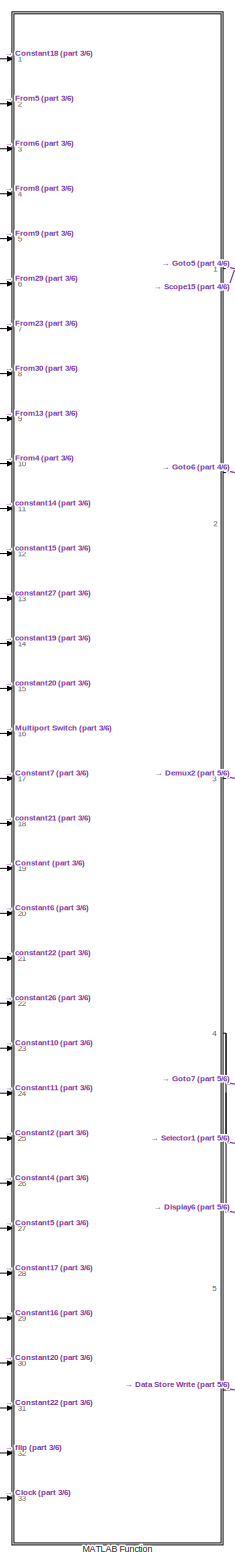
[diagram: root canvas - part 1/6, center side, full height]
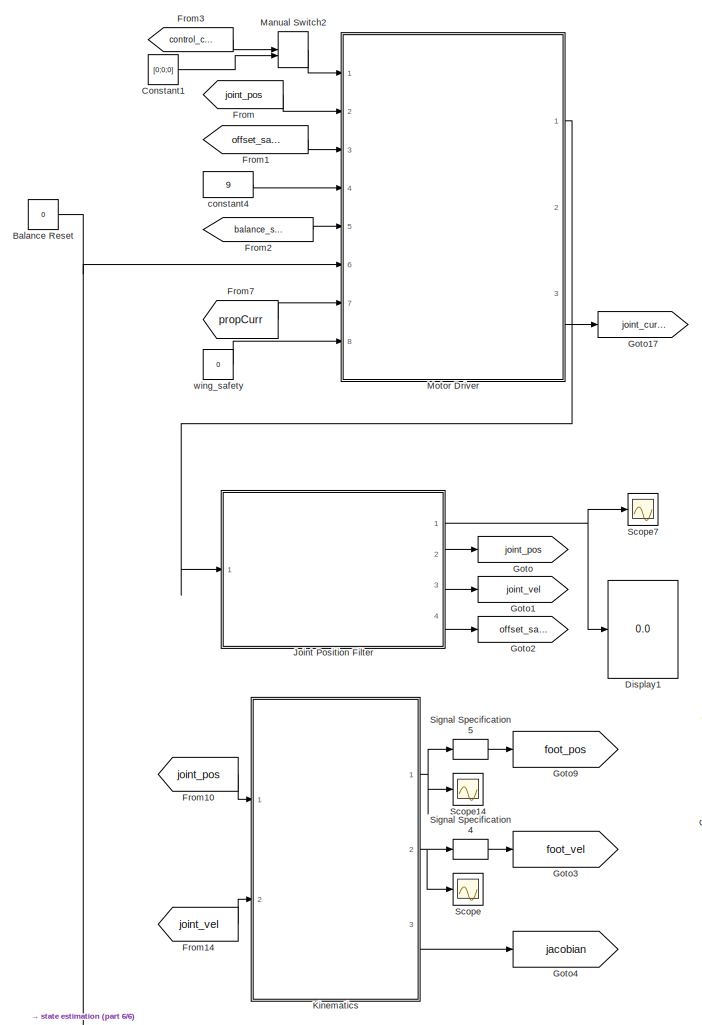
[diagram: root canvas - part 2/6, middle left region]
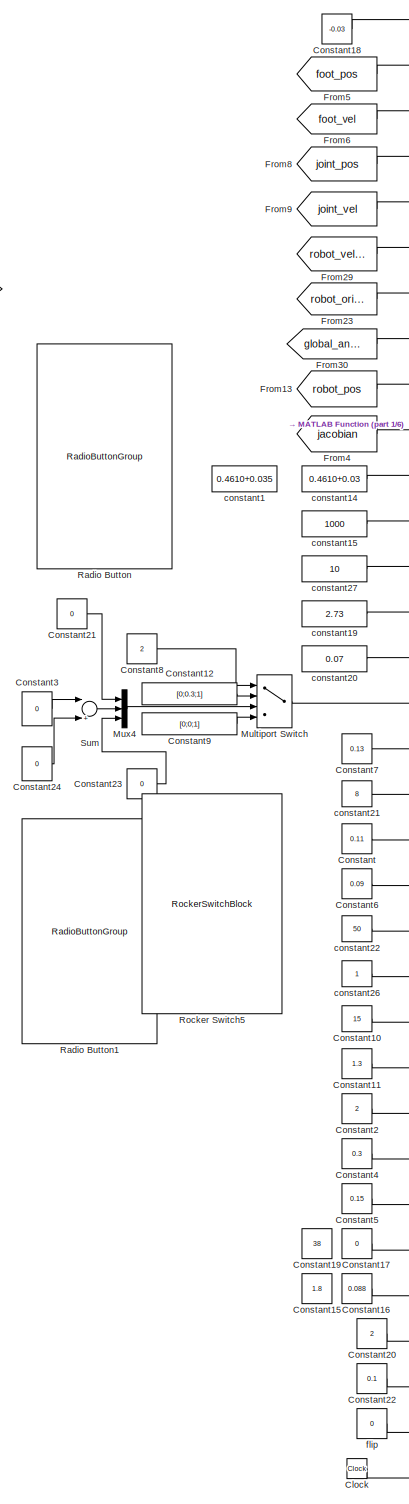
[diagram: root canvas - part 3/6, left side, full height]
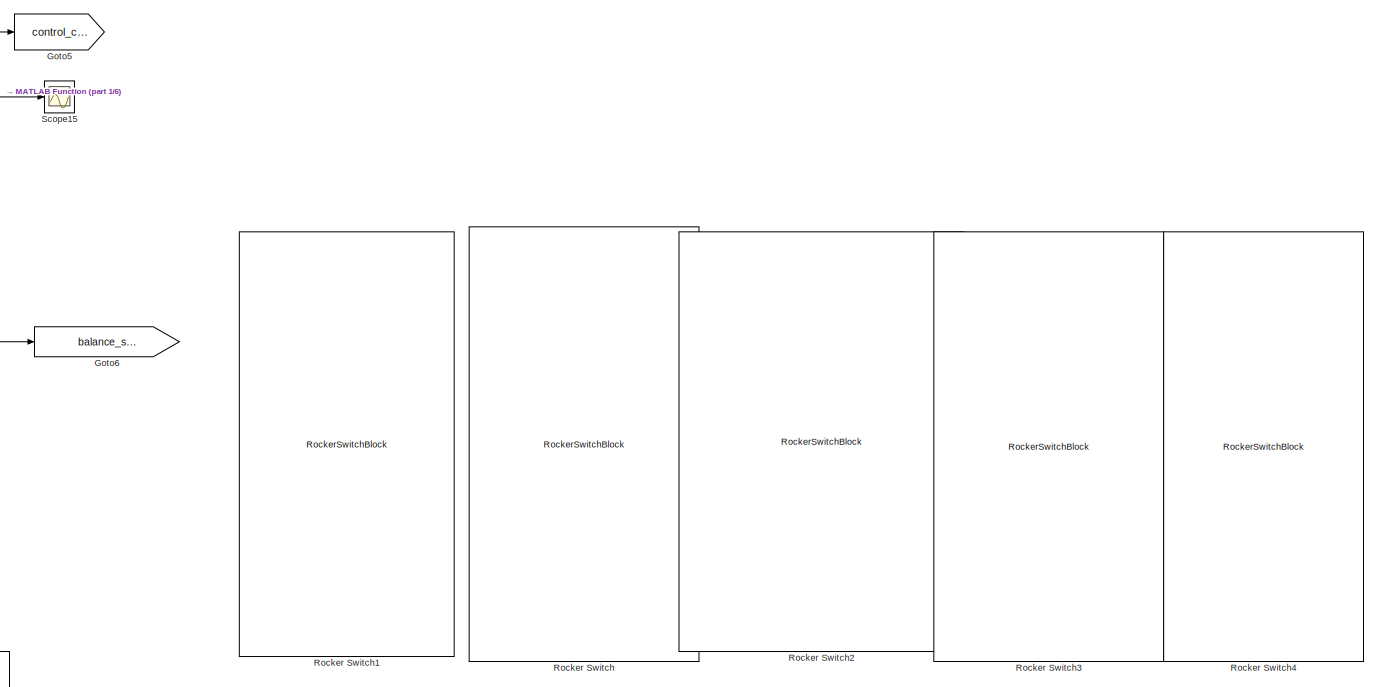
[diagram: root canvas - part 4/6, top right region]
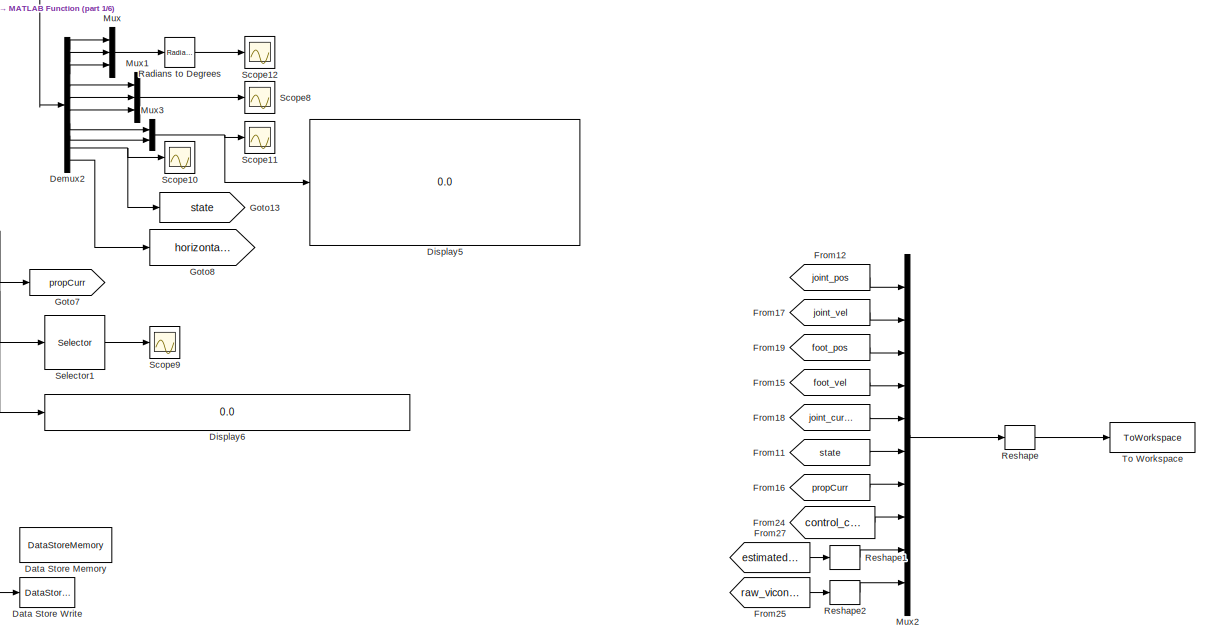
[diagram: root canvas - part 5/6, bottom right region]
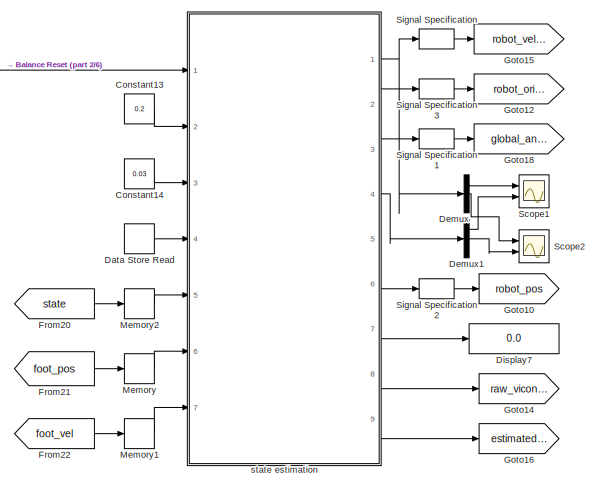
[diagram: root canvas - part 6/6, bottom left region]
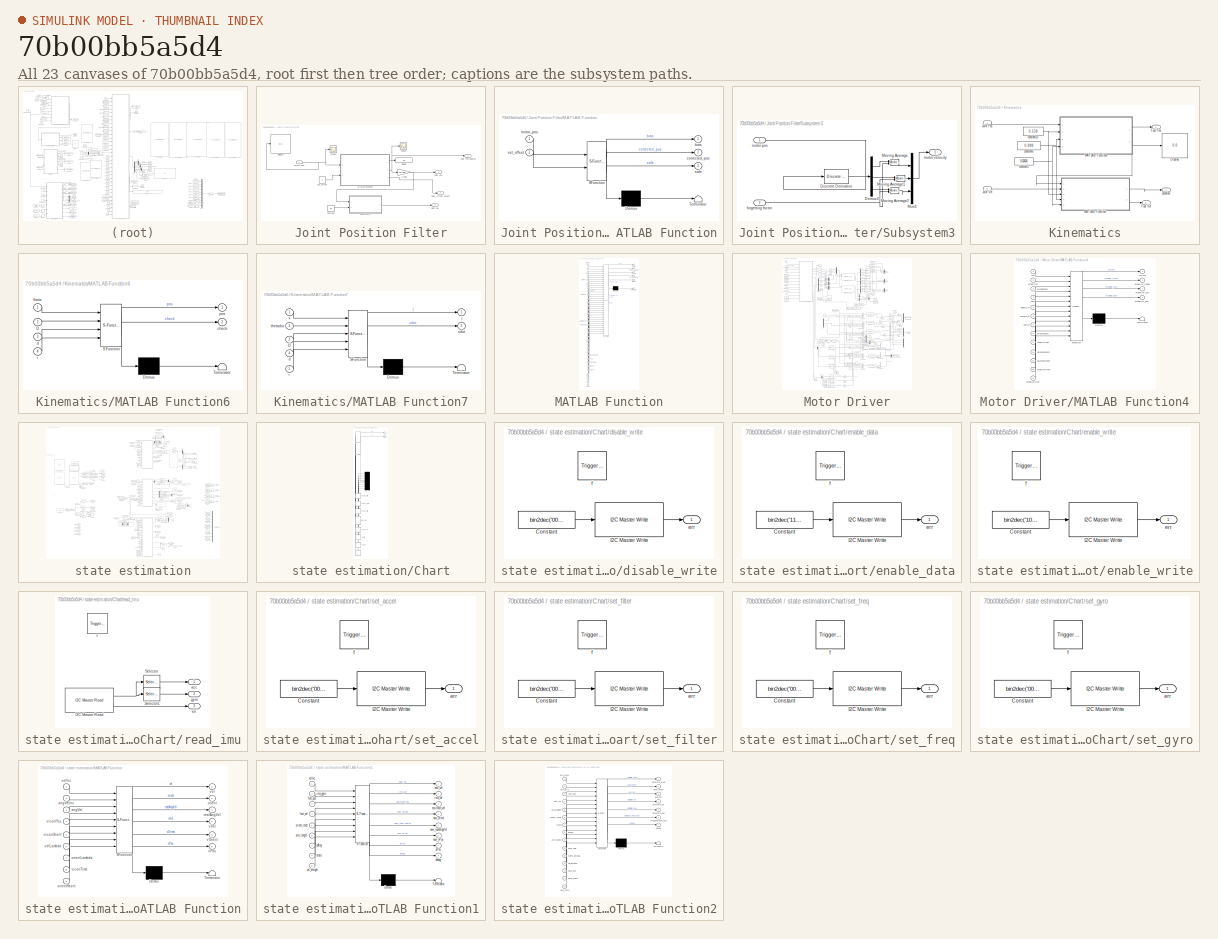
[diagram: thumbnail index - all 23 canvases of the model, root first then tree order]
MODEL slx_70b00bb5a5d4
KIND model
CONFIG AbsTol = auto
CONFIG EnableMultiTasking = on
CONFIG FixedStep = auto
CONFIG MaxStep = auto
CONFIG MinStep = auto
CONFIG RelTol = 1e-3
CONFIG SampleTimeConstraint = Unconstrained
CONFIG Solver = FixedStepAuto
CONFIG SolverName = FixedStepAuto
CONFIG StartTime = 0.0
CONFIG StopTime = inf
BLOCK [Constant] Balance Reset
  Value = 0
BLOCK [Clock] Clock
BLOCK [Constant] Constant
  Value = 0.11
BLOCK [Constant] Constant1
  Value = [0;0;0]
BLOCK [Constant] Constant10
  Value = 15
BLOCK [Constant] Constant11
  Value = 1.3
BLOCK [Constant] Constant12
  Value = [0;0.3;1]
BLOCK [Constant] Constant13
  Value = 0.2
BLOCK [Constant] Constant14
  Value = 0.03
  VectorParams1D = off
BLOCK [Constant] Constant15
  Value = 1.8
BLOCK [Constant] Constant16
  Value = 0.088
BLOCK [Constant] Constant17
  Value = 0
BLOCK [Constant] Constant18
  Value = -0.03
BLOCK [Constant] Constant19
  Value = 38
BLOCK [Constant] Constant2
  Value = 2
BLOCK [Constant] Constant20
  Value = 2
BLOCK [Constant] Constant21
  Value = 0
BLOCK [Constant] Constant22
  Value = 0.1
BLOCK [Constant] Constant23
  Value = 0
BLOCK [Constant] Constant24
  Value = 0
BLOCK [Constant] Constant3
  Value = 0
BLOCK [Constant] Constant4
  Value = 0.3
BLOCK [Constant] Constant5
  Value = 0.15
BLOCK [Constant] Constant6
  Value = 0.09
BLOCK [Constant] Constant7
  Value = 0.13
BLOCK [Constant] Constant8
  Value = 2
BLOCK [Constant] Constant9
  Value = [0;0;1]
BLOCK [DataStoreMemory] Data Store Memory
  DataStoreName = flipping
  ReadBeforeWriteMsg = warning
  ShowAdditionalParam = off
  WriteAfterReadMsg = warning
  WriteAfterWriteMsg = warning
BLOCK [DataStoreRead] Data Store Read
  DataStoreName = flipping
  Ports = [0, 1]
BLOCK [DataStoreWrite] Data Store Write
  DataStoreName = flipping
  Ports = [1]
BLOCK [Demux] Demux
  DisplayOption = bar
  Outputs = 3
  Ports = [1, 3]
BLOCK [Demux] Demux1
  DisplayOption = bar
  Outputs = 3
  Ports = [1, 3]
BLOCK [Demux] Demux2
  DisplayOption = bar
  Outputs = 10
  Ports = [1, 10]
BLOCK [Display] Display1
  Commented = on
  Decimation = 100
  Ports = [1]
BLOCK [Display] Display5
  Commented = on
  Decimation = 1
  Ports = [1]
BLOCK [Display] Display6
  Commented = on
  Decimation = 1
  Ports = [1]
BLOCK [Display] Display7
  Decimation = 1
  Ports = [1]
BLOCK [From] From
  GotoTag = joint_pos
BLOCK [From] From1
  GotoTag = offset_safety
BLOCK [From] From10
  GotoTag = joint_pos
BLOCK [From] From11
  GotoTag = state
BLOCK [From] From12
  GotoTag = joint_pos
BLOCK [From] From13
  GotoTag = robot_pos
BLOCK [From] From14
  GotoTag = joint_vel
BLOCK [From] From15
  GotoTag = foot_vel
BLOCK [From] From16
  GotoTag = propCurr
BLOCK [From] From17
  GotoTag = joint_vel
BLOCK [From] From18
  GotoTag = joint_current
BLOCK [From] From19
  GotoTag = foot_pos
BLOCK [From] From2
  GotoTag = balance_safety
BLOCK [From] From20
  GotoTag = state
BLOCK [From] From21
  GotoTag = foot_pos
BLOCK [From] From22
  GotoTag = foot_vel
BLOCK [From] From23
  GotoTag = robot_orient
BLOCK [From] From24
  GotoTag = control_current
BLOCK [From] From25
  GotoTag = raw_vicon_data
BLOCK [From] From27
  GotoTag = estimated_data
BLOCK [From] From29
  GotoTag = robot_velocity
BLOCK [From] From3
  GotoTag = control_current
BLOCK [From] From30
  GotoTag = global_ang_vel
BLOCK [From] From4
  GotoTag = jacobian
BLOCK [From] From5
  GotoTag = foot_pos
BLOCK [From] From6
  GotoTag = foot_vel
BLOCK [From] From7
  GotoTag = propCurr
BLOCK [From] From8
  GotoTag = joint_pos
BLOCK [From] From9
  GotoTag = joint_vel
BLOCK [Goto] Goto
  GotoTag = joint_pos
BLOCK [Goto] Goto1
  GotoTag = joint_vel
BLOCK [Goto] Goto10
  GotoTag = robot_pos
BLOCK [Goto] Goto12
  GotoTag = robot_orient
BLOCK [Goto] Goto13
  GotoTag = state
BLOCK [Goto] Goto14
  GotoTag = raw_vicon_data
BLOCK [Goto] Goto15
  GotoTag = robot_velocity
BLOCK [Goto] Goto16
  GotoTag = estimated_data
BLOCK [Goto] Goto17
  GotoTag = joint_current
BLOCK [Goto] Goto18
  GotoTag = global_ang_vel
BLOCK [Goto] Goto2
  GotoTag = offset_safety
BLOCK [Goto] Goto3
  GotoTag = foot_vel
BLOCK [Goto] Goto4
  GotoTag = jacobian
BLOCK [Goto] Goto5
  GotoTag = control_current
BLOCK [Goto] Goto6
  GotoTag = balance_safety
BLOCK [Goto] Goto7
  GotoTag = propCurr
BLOCK [Goto] Goto8
  Commented = on
  GotoTag = horizontal_velocity
BLOCK [Goto] Goto9
  GotoTag = foot_pos
BLOCK [SubSystem] Joint Position Filter
  Ports = [1, 4]
  RequestExecContextInheritance = off
BLOCK [Constant] Joint Position Filter/Constant
  Value = 0.4
BLOCK [Display] Joint Position Filter/Display
  Commented = on
  Decimation = 100
  Ports = [1]
BLOCK [Display] Joint Position Filter/Display1
  Ports = [1]
BLOCK [Gain] Joint Position Filter/Gain1
  Gain = pi/180
  OutDataTypeStr = Inherit: Inherit via internal rule
  ParamDataTypeStr = Inherit: Inherit via internal rule
  SaturateOnIntegerOverflow = off
BLOCK [Outport] Joint Position Filter/Joint Offset Safety
  IconDisplay = Port number
  Port = 4
BLOCK [Outport] Joint Position Filter/Joint Pos
  IconDisplay = Port number
  Port = 2
BLOCK [Outport] Joint Position Filter/Joint Pos Degree
  IconDisplay = Port number
BLOCK [Outport] Joint Position Filter/Joint Vel
  IconDisplay = Port number
  Port = 3
BLOCK [SubSystem] Joint Position Filter/MATLAB Function
  ErrorFcn = Stateflow.Translate.translate
  PermitHierarchicalResolution = ExplicitOnly
  Ports = [2, 3]
  RequestExecContextInheritance = off
  SFBlockType = MATLAB Function
  TreatAsAtomicUnit = on
BLOCK [Demux] Joint Position Filter/MATLAB Function/ Demux 
  Outputs = 1
  Ports = [1, 1]
BLOCK [S-Function] Joint Position Filter/MATLAB Function/ SFunction 
  EnableBusSupport = on
  FunctionName = sf_sfun
  PortCounts = [2 4]
  Ports = [2, 4]
  SFcnIsStateOwnerBlock = off
  SFunctionDeploymentMode = off
  Tag = Stateflow S-Function hoppingControl 1
BLOCK [Terminator] Joint Position Filter/MATLAB Function/ Terminator 
BLOCK [Outport] Joint Position Filter/MATLAB Function/bias
  IconDisplay = Port number
BLOCK [Outport] Joint Position Filter/MATLAB Function/corrected_pos
  IconDisplay = Port number
  Port = 2
BLOCK [Inport] Joint Position Filter/MATLAB Function/motor_pos
  IconDisplay = Port number
BLOCK [Outport] Joint Position Filter/MATLAB Function/safe
  IconDisplay = Port number
  Port = 3
BLOCK [Inport] Joint Position Filter/MATLAB Function/set_offset
  IconDisplay = Port number
  Port = 2
BLOCK [Inport] Joint Position Filter/Motor Pos
  IconDisplay = Port number
BLOCK [Scope] Joint Position Filter/Scope
  Floating = off
  NumInputPorts = 1
  Ports = [1]
  ScopeSpecificationString = Simulink.scopes.TimeScopeBlockCfg('CurrentConfiguration', extmgr.ConfigurationSet(extmgr.Configuration('Core','General UI',true),extmgr.Configuration('Core','Source UI',true),extmgr.Configuration('Sources','WiredSimulink',true,'DataLoggingVariableName','ScopeData1'),extmgr.Configuration('Visuals','Time Domain',true,'PlotType','Stairs','SerializedDisplays',{struct('MinYLimReal','-85.02487','MaxYLim...<+1560ch>
BLOCK [Scope] Joint Position Filter/Scope1
  Floating = off
  NumInputPorts = 1
  Ports = [1]
  ScopeSpecificationString = Simulink.scopes.TimeScopeBlockCfg('CurrentConfiguration', extmgr.ConfigurationSet(extmgr.Configuration('Core','General UI',true),extmgr.Configuration('Core','Source UI',true),extmgr.Configuration('Sources','WiredSimulink',true,'DataLoggingVariableName','ScopeData1'),extmgr.Configuration('Visuals','Time Domain',true,'PlotType','Stairs','SerializedDisplays',{struct('MinYLimReal','262.41969','MaxYLim...<+1531ch>
BLOCK [SubSystem] Joint Position Filter/Subsystem3
  Ports = [2, 1]
  RequestExecContextInheritance = off
BLOCK [Demux] Joint Position Filter/Subsystem3/Demux2
  DisplayOption = bar
  Outputs = 3
  Ports = [1, 3]
BLOCK [Reference] Joint Position Filter/Subsystem3/Discrete Derivative  REF=simulink/Discrete/Discrete Derivative
  Ports = [1, 1]
  SourceBlock = simulink/Discrete/Discrete Derivative
  SourceProductBaseCode = SL
  SourceProductName = Simulink
  SourceType = Discrete Derivative
BLOCK [Reference] Joint Position Filter/Subsystem3/Moving Average  REF=dspstat3/Moving
Average
  Ports = [2, 1]
  SourceBlock = dspstat3/Moving\nAverage
  SourceProductBaseCode = DS
  SourceProductName = DSP System Toolbox
  SourceType = dsp.simulink.MovingAverage
BLOCK [Reference] Joint Position Filter/Subsystem3/Moving Average1  REF=dspstat3/Moving
Average
  Ports = [2, 1]
  SourceBlock = dspstat3/Moving\nAverage
  SourceProductBaseCode = DS
  SourceProductName = DSP System Toolbox
  SourceType = dsp.simulink.MovingAverage
BLOCK [Reference] Joint Position Filter/Subsystem3/Moving Average2  REF=dspstat3/Moving
Average
  Ports = [2, 1]
  SourceBlock = dspstat3/Moving\nAverage
  SourceProductBaseCode = DS
  SourceProductName = DSP System Toolbox
  SourceType = dsp.simulink.MovingAverage
BLOCK [Mux] Joint Position Filter/Subsystem3/Mux4
  DisplayOption = bar
  Inputs = 3
  Ports = [3, 1]
BLOCK [Inport] Joint Position Filter/Subsystem3/forgetting factor
  IconDisplay = Port number
  Port = 2
BLOCK [Inport] Joint Position Filter/Subsystem3/motor pos
  IconDisplay = Port number
BLOCK [Outport] Joint Position Filter/Subsystem3/motor velocity 
  IconDisplay = Port number
BLOCK [Constant] Joint Position Filter/set_offset
  Value = 0
BLOCK [SubSystem] Kinematics
  Ports = [2, 3]
  RequestExecContextInheritance = off
BLOCK [Display] Kinematics/Display
  Decimation = 100
  Ports = [1]
BLOCK [Outport] Kinematics/Foot Pos
  IconDisplay = Port number
BLOCK [Outport] Kinematics/Foot Vel
  IconDisplay = Port number
  Port = 2
BLOCK [Outport] Kinematics/Jacobian
  IconDisplay = Port number
  Port = 3
BLOCK [Inport] Kinematics/Joint Pos
  IconDisplay = Port number
BLOCK [Inport] Kinematics/Joint Vel
  IconDisplay = Port number
  Port = 2
BLOCK [SubSystem] Kinematics/MATLAB Function6
  ErrorFcn = Stateflow.Translate.translate
  PermitHierarchicalResolution = ExplicitOnly
  Ports = [4, 2]
  RequestExecContextInheritance = off
  SFBlockType = MATLAB Function
  TreatAsAtomicUnit = on
BLOCK [Demux] Kinematics/MATLAB Function6/ Demux 
  Outputs = 1
  Ports = [1, 1]
BLOCK [S-Function] Kinematics/MATLAB Function6/ SFunction 
  EnableBusSupport = on
  FunctionName = sf_sfun
  PortCounts = [4 3]
  Ports = [4, 3]
  SFcnIsStateOwnerBlock = off
  SFunctionDeploymentMode = off
  Tag = Stateflow S-Function hoppingControl 7
BLOCK [Terminator] Kinematics/MATLAB Function6/ Terminator 
BLOCK [Inport] Kinematics/MATLAB Function6/D
  IconDisplay = Port number
  Port = 2
BLOCK [Outport] Kinematics/MATLAB Function6/check
  IconDisplay = Port number
  Port = 2
BLOCK [Inport] Kinematics/MATLAB Function6/d
  IconDisplay = Port number
  Port = 3
BLOCK [Outport] Kinematics/MATLAB Function6/pos
  IconDisplay = Port number
BLOCK [Inport] Kinematics/MATLAB Function6/r
  IconDisplay = Port number
  Port = 4
BLOCK [Inport] Kinematics/MATLAB Function6/theta
  IconDisplay = Port number
BLOCK [SubSystem] Kinematics/MATLAB Function7
  ErrorFcn = Stateflow.Translate.translate
  PermitHierarchicalResolution = ExplicitOnly
  Ports = [5, 2]
  RequestExecContextInheritance = off
  SFBlockType = MATLAB Function
  TreatAsAtomicUnit = on
BLOCK [Demux] Kinematics/MATLAB Function7/ Demux 
  Outputs = 1
  Ports = [1, 1]
BLOCK [S-Function] Kinematics/MATLAB Function7/ SFunction 
  EnableBusSupport = on
  FunctionName = sf_sfun
  PortCounts = [5 3]
  Ports = [5, 3]
  SFcnIsStateOwnerBlock = off
  SFunctionDeploymentMode = off
  Tag = Stateflow S-Function hoppingControl 8
BLOCK [Terminator] Kinematics/MATLAB Function7/ Terminator 
BLOCK [Inport] Kinematics/MATLAB Function7/D
  IconDisplay = Port number
  Port = 3
BLOCK [Inport] Kinematics/MATLAB Function7/d
  IconDisplay = Port number
  Port = 4
BLOCK [Outport] Kinematics/MATLAB Function7/j
  IconDisplay = Port number
BLOCK [Inport] Kinematics/MATLAB Function7/r
  IconDisplay = Port number
  Port = 5
BLOCK [Inport] Kinematics/MATLAB Function7/thetadot
  IconDisplay = Port number
  Port = 2
BLOCK [Inport] Kinematics/MATLAB Function7/x
  IconDisplay = Port number
BLOCK [Outport] Kinematics/MATLAB Function7/xdot
  IconDisplay = Port number
  Port = 2
BLOCK [Constant] Kinematics/constant13
  Value = 0.158
BLOCK [Constant] Kinematics/constant5
  Value = 0.02424
BLOCK [Constant] Kinematics/constant6
  Value = 0.398
BLOCK [SubSystem] MATLAB Function
  ErrorFcn = Stateflow.Translate.translate
  PermitHierarchicalResolution = ExplicitOnly
  Ports = [33, 5]
  RequestExecContextInheritance = off
  SFBlockType = MATLAB Function
  TreatAsAtomicUnit = on
BLOCK [Demux] MATLAB Function/ Demux 
  Outputs = 1
  Ports = [1, 1]
BLOCK [S-Function] MATLAB Function/ SFunction 
  EnableBusSupport = on
  FunctionName = sf_sfun
  PortCounts = [33 6]
  Ports = [33, 6]
  SFcnIsStateOwnerBlock = off
  SFunctionDeploymentMode = off
  Tag = Stateflow S-Function hoppingControl 6
BLOCK [Terminator] MATLAB Function/ Terminator 
BLOCK [Inport] MATLAB Function/J
  IconDisplay = Port number
  Port = 10
BLOCK [Inport] MATLAB Function/Kdj
  IconDisplay = Port number
  Port = 31
BLOCK [Inport] MATLAB Function/Khd
  IconDisplay = Port number
  Port = 22
BLOCK [Inport] MATLAB Function/Khp
  IconDisplay = Port number
  Port = 21
BLOCK [Inport] MATLAB Function/Kp
  IconDisplay = Port number
  Port = 18
BLOCK [Inport] MATLAB Function/Kpd
  IconDisplay = Port number
  Port = 24
BLOCK [Inport] MATLAB Function/Kpj
  IconDisplay = Port number
  Port = 30
BLOCK [Inport] MATLAB Function/Kpos
  IconDisplay = Port number
  Port = 26
BLOCK [Inport] MATLAB Function/Kpp
  IconDisplay = Port number
  Port = 23
BLOCK [Inport] MATLAB Function/Kr
  IconDisplay = Port number
  Port = 20
BLOCK [Inport] MATLAB Function/Kv
  IconDisplay = Port number
  Port = 19
BLOCK [Inport] MATLAB Function/X
  IconDisplay = Port number
  Port = 2
BLOCK [Inport] MATLAB Function/Zoffset
  IconDisplay = Port number
BLOCK [Inport] MATLAB Function/angVel
  IconDisplay = Port number
  Port = 8
BLOCK [Inport] MATLAB Function/b
  IconDisplay = Port number
  Port = 13
BLOCK [Outport] MATLAB Function/balanceSafety
  IconDisplay = Port number
  Port = 2
BLOCK [Inport] MATLAB Function/clock
  IconDisplay = Port number
  Port = 33
BLOCK [Outport] MATLAB Function/debug
  IconDisplay = Port number
  Port = 3
BLOCK [Outport] MATLAB Function/desirePropCurr
  IconDisplay = Port number
  Port = 4
BLOCK [Inport] MATLAB Function/desiredPos
  IconDisplay = Port number
  Port = 16
BLOCK [Inport] MATLAB Function/flip
  IconDisplay = Port number
  Port = 32
BLOCK [Outport] MATLAB Function/flipping
  IconDisplay = Port number
  Port = 5
BLOCK [Inport] MATLAB Function/h
  IconDisplay = Port number
  Port = 15
BLOCK [Inport] MATLAB Function/hipTorqueLim
  IconDisplay = Port number
  Port = 25
BLOCK [Inport] MATLAB Function/joint
  IconDisplay = Port number
  Port = 4
BLOCK [Inport] MATLAB Function/jointVel
  IconDisplay = Port number
  Port = 5
BLOCK [Inport] MATLAB Function/k
  IconDisplay = Port number
  Port = 12
BLOCK [Inport] MATLAB Function/l0
  IconDisplay = Port number
  Port = 11
BLOCK [Inport] MATLAB Function/m
  IconDisplay = Port number
  Port = 14
BLOCK [Inport] MATLAB Function/posVelLim
  IconDisplay = Port number
  Port = 27
BLOCK [Inport] MATLAB Function/propKd
  IconDisplay = Port number
  Port = 29
BLOCK [Inport] MATLAB Function/propKp
  IconDisplay = Port number
  Port = 28
BLOCK [Inport] MATLAB Function/quat
  IconDisplay = Port number
  Port = 7
BLOCK [Inport] MATLAB Function/robotPos
  IconDisplay = Port number
  Port = 9
BLOCK [Inport] MATLAB Function/stepperLim
  IconDisplay = Port number
  Port = 17
BLOCK [Outport] MATLAB Function/torque
  IconDisplay = Port number
BLOCK [Inport] MATLAB Function/vel
  IconDisplay = Port number
  Port = 6
BLOCK [Inport] MATLAB Function/xdot
  IconDisplay = Port number
  Port = 3
BLOCK [ManualSwitch] Manual Switch2
BLOCK [Memory] Memory
  InitialCondition = [0;0;0]
BLOCK [Memory] Memory1
  InitialCondition = [0;0;0]
BLOCK [Memory] Memory2
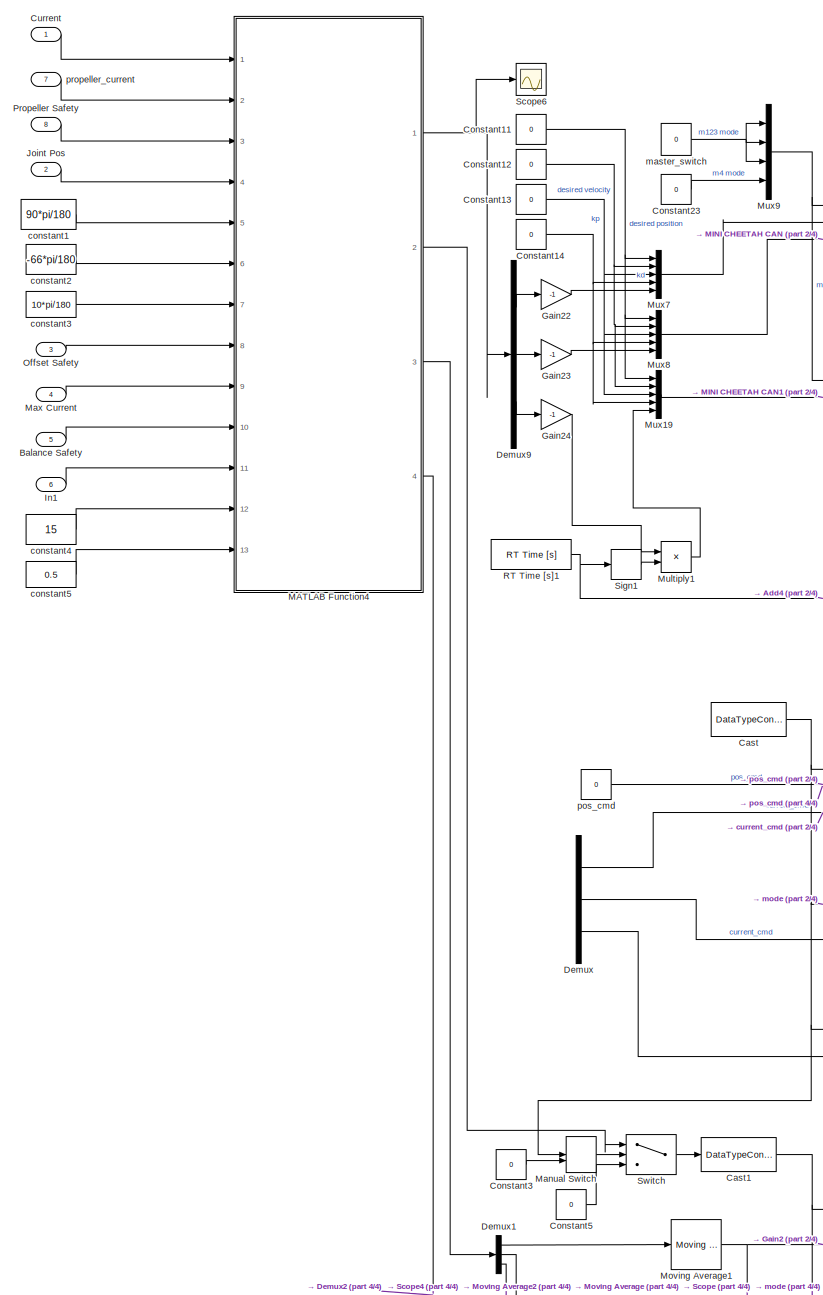
[diagram: Motor Driver - part 1/4, middle left region]
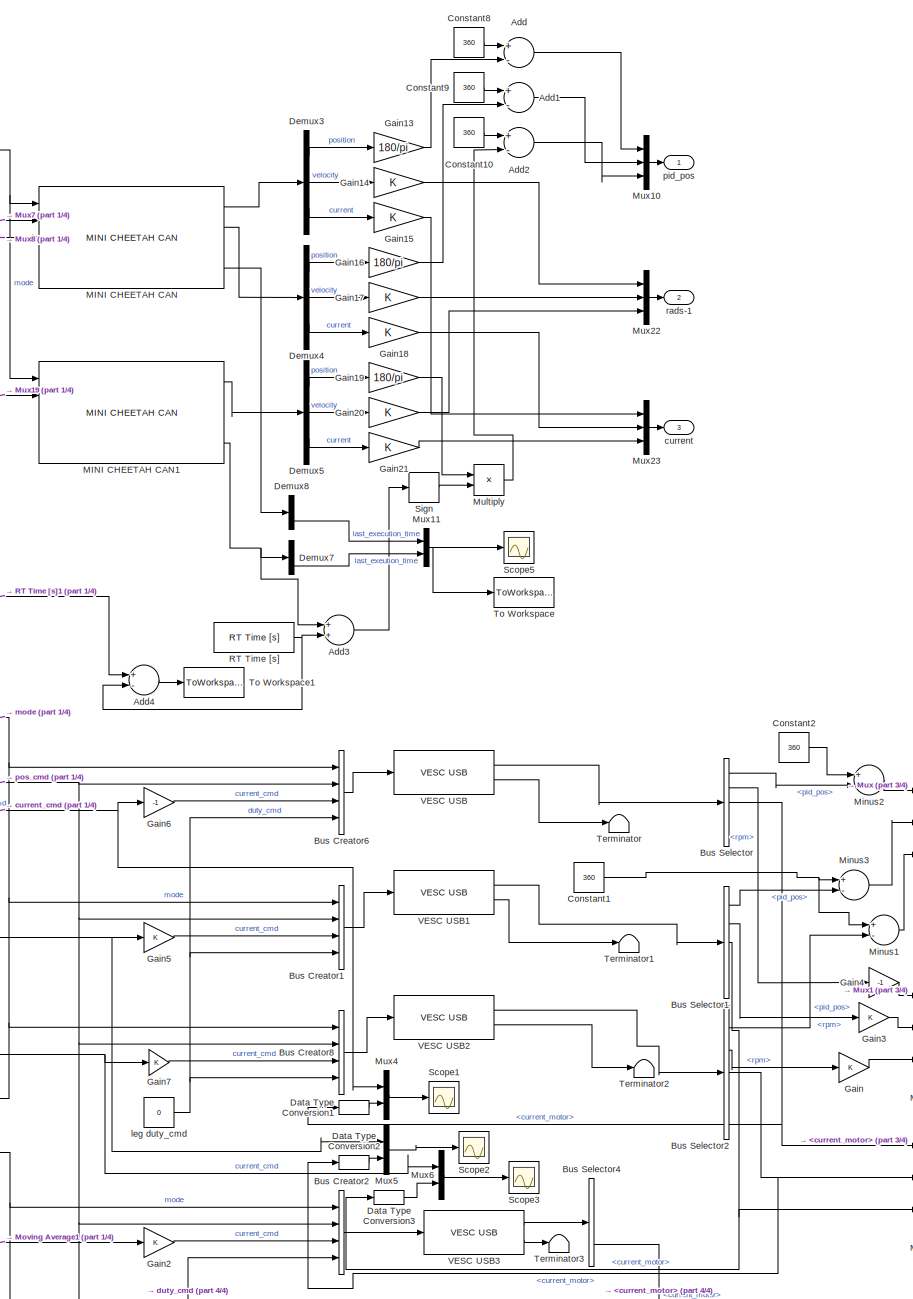
[diagram: Motor Driver - part 2/4, middle right region]
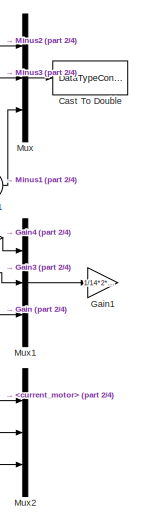
[diagram: Motor Driver - part 3/4, middle right region]
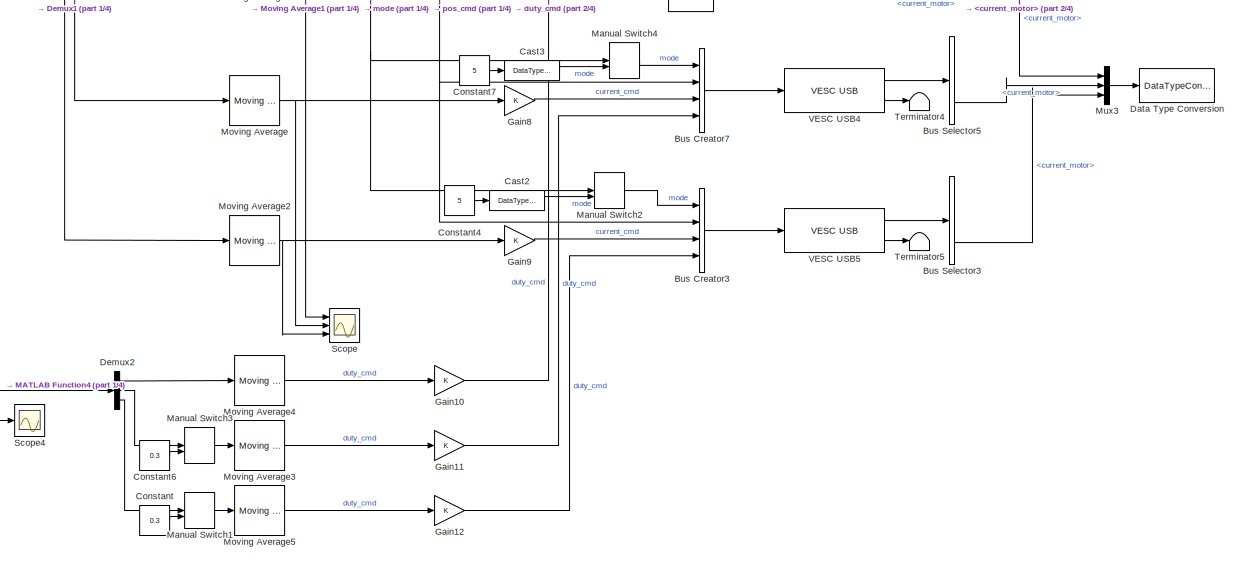
[diagram: Motor Driver - part 4/4, bottom center region]
BLOCK [SubSystem] Motor Driver
  Ports = [8, 3]
  RequestExecContextInheritance = off
BLOCK [Sum] Motor Driver/Add
  InputSameDT = off
  Inputs = +-
  OutDataTypeStr = Inherit: Inherit via internal rule
  Ports = [2, 1]
  SaturateOnIntegerOverflow = off
BLOCK [Sum] Motor Driver/Add1
  InputSameDT = off
  Inputs = +-
  OutDataTypeStr = Inherit: Inherit via internal rule
  Ports = [2, 1]
  SaturateOnIntegerOverflow = off
BLOCK [Sum] Motor Driver/Add2
  InputSameDT = off
  Inputs = +-
  OutDataTypeStr = Inherit: Inherit via internal rule
  Ports = [2, 1]
  SaturateOnIntegerOverflow = off
BLOCK [Sum] Motor Driver/Add3
  InputSameDT = off
  OutDataTypeStr = Inherit: Inherit via internal rule
  Ports = [2, 1]
  SaturateOnIntegerOverflow = off
BLOCK [Sum] Motor Driver/Add4
  InputSameDT = off
  Inputs = +-
  OutDataTypeStr = Inherit: Inherit via internal rule
  Ports = [2, 1]
  SaturateOnIntegerOverflow = off
BLOCK [Inport] Motor Driver/Balance Safety
  IconDisplay = Port number
  Port = 5
BLOCK [BusCreator] Motor Driver/Bus Creator1
  Commented = on
  DisplayOption = bar
  InheritFromInputs = on
  Inputs = 4
  Ports = [4, 1]
BLOCK [BusCreator] Motor Driver/Bus Creator2
  Commented = on
  DisplayOption = bar
  InheritFromInputs = on
  Inputs = 4
  Ports = [4, 1]
BLOCK [BusCreator] Motor Driver/Bus Creator3
  Commented = on
  DisplayOption = bar
  InheritFromInputs = on
  Inputs = 4
  Ports = [4, 1]
BLOCK [BusCreator] Motor Driver/Bus Creator6
  Commented = on
  DisplayOption = bar
  InheritFromInputs = on
  Inputs = 4
  Ports = [4, 1]
BLOCK [BusCreator] Motor Driver/Bus Creator7
  Commented = on
  DisplayOption = bar
  InheritFromInputs = on
  Inputs = 4
  Ports = [4, 1]
BLOCK [BusCreator] Motor Driver/Bus Creator8
  Commented = on
  DisplayOption = bar
  InheritFromInputs = on
  Inputs = 4
  Ports = [4, 1]
BLOCK [BusSelector] Motor Driver/Bus Selector
  Commented = on
  OutputAsBus = off
  OutputSignals = pid_pos,rpm,current_motor,v_in,fault_code
  Ports = [1, 5]
BLOCK [BusSelector] Motor Driver/Bus Selector1
  Commented = on
  OutputAsBus = off
  OutputSignals = pid_pos,rpm,current_motor,v_in,fault_code
  Ports = [1, 5]
BLOCK [BusSelector] Motor Driver/Bus Selector2
  Commented = on
  OutputAsBus = off
  OutputSignals = pid_pos,rpm,current_motor,v_in,fault_code
  Ports = [1, 5]
BLOCK [BusSelector] Motor Driver/Bus Selector3
  Commented = on
  OutputAsBus = off
  OutputSignals = pid_pos,rpm,current_motor
  Ports = [1, 3]
BLOCK [BusSelector] Motor Driver/Bus Selector4
  Commented = on
  OutputAsBus = off
  OutputSignals = pid_pos,rpm,current_motor
  Ports = [1, 3]
BLOCK [BusSelector] Motor Driver/Bus Selector5
  Commented = on
  OutputAsBus = off
  OutputSignals = pid_pos,rpm,current_motor
  Ports = [1, 3]
BLOCK [DataTypeConversion] Motor Driver/Cast
  Commented = on
  OutDataTypeStr = uint32
  RndMeth = Round
  SaturateOnIntegerOverflow = off
BLOCK [DataTypeConversion] Motor Driver/Cast To Double
  Commented = on
  OutDataTypeStr = double
  RndMeth = Floor
  SaturateOnIntegerOverflow = off
BLOCK [DataTypeConversion] Motor Driver/Cast1
  Commented = on
  OutDataTypeStr = uint32
  RndMeth = Round
  SaturateOnIntegerOverflow = off
BLOCK [DataTypeConversion] Motor Driver/Cast2
  Commented = on
  OutDataTypeStr = uint32
  RndMeth = Round
  SaturateOnIntegerOverflow = off
BLOCK [DataTypeConversion] Motor Driver/Cast3
  Commented = on
  OutDataTypeStr = uint32
  RndMeth = Round
  SaturateOnIntegerOverflow = off
BLOCK [Constant] Motor Driver/Constant
  Commented = on
  Value = 0.3
BLOCK [Constant] Motor Driver/Constant1
  Commented = on
  OutDataTypeStr = Inherit: Inherit via back propagation
  Value = 360
BLOCK [Constant] Motor Driver/Constant10
  Value = 360
BLOCK [Constant] Motor Driver/Constant11
  Value = 0
BLOCK [Constant] Motor Driver/Constant12
  Value = 0
BLOCK [Constant] Motor Driver/Constant13
  Value = 0
BLOCK [Constant] Motor Driver/Constant14
  Value = 0
BLOCK [Constant] Motor Driver/Constant2
  Commented = on
  OutDataTypeStr = Inherit: Inherit via back propagation
  Value = 360
BLOCK [Constant] Motor Driver/Constant23
  Value = 0
BLOCK [Constant] Motor Driver/Constant3
  Commented = on
  Value = 0
BLOCK [Constant] Motor Driver/Constant4
  Commented = on
  Value = 5
BLOCK [Constant] Motor Driver/Constant5
  Commented = on
  Value = 0
BLOCK [Constant] Motor Driver/Constant6
  Commented = on
  Value = 0.3
BLOCK [Constant] Motor Driver/Constant7
  Commented = on
  Value = 5
BLOCK [Constant] Motor Driver/Constant8
  Value = 360
BLOCK [Constant] Motor Driver/Constant9
  Value = 360
BLOCK [Inport] Motor Driver/Current
  IconDisplay = Port number
BLOCK [DataTypeConversion] Motor Driver/Data Type Conversion
  Commented = on
  OutDataTypeStr = double
  RndMeth = Floor
  SaturateOnIntegerOverflow = off
BLOCK [DataTypeConversion] Motor Driver/Data Type Conversion1
  Commented = on
  OutDataTypeStr = double
  RndMeth = Floor
  SaturateOnIntegerOverflow = off
BLOCK [DataTypeConversion] Motor Driver/Data Type Conversion2
  Commented = on
  OutDataTypeStr = double
  RndMeth = Floor
  SaturateOnIntegerOverflow = off
BLOCK [DataTypeConversion] Motor Driver/Data Type Conversion3
  Commented = on
  OutDataTypeStr = double
  RndMeth = Floor
  SaturateOnIntegerOverflow = off
BLOCK [Demux] Motor Driver/Demux
  Commented = on
  DisplayOption = bar
  Outputs = 3
  Ports = [1, 3]
BLOCK [Demux] Motor Driver/Demux1
  Commented = on
  DisplayOption = bar
  Outputs = 3
  Ports = [1, 3]
BLOCK [Demux] Motor Driver/Demux2
  Commented = on
  DisplayOption = bar
  Outputs = 3
  Ports = [1, 3]
BLOCK [Demux] Motor Driver/Demux3
  DisplayOption = bar
  Outputs = 3
  Ports = [1, 3]
BLOCK [Demux] Motor Driver/Demux4
  DisplayOption = bar
  Outputs = 3
  Ports = [1, 3]
BLOCK [Demux] Motor Driver/Demux5
  DisplayOption = bar
  Outputs = 3
  Ports = [1, 3]
BLOCK [Demux] Motor Driver/Demux7
  Commented = on
  DisplayOption = bar
  Outputs = 3
  Ports = [1, 3]
BLOCK [Demux] Motor Driver/Demux8
  Commented = on
  DisplayOption = bar
  Outputs = 3
  Ports = [1, 3]
BLOCK [Demux] Motor Driver/Demux9
  DisplayOption = bar
  Outputs = 3
  Ports = [1, 3]
BLOCK [Gain] Motor Driver/Gain
  Commented = on
  ParamDataTypeStr = Inherit: Inherit via internal rule
  SaturateOnIntegerOverflow = off
BLOCK [Gain] Motor Driver/Gain1
  Commented = on
  Gain = 1/14*2*pi/60/5
  ParamDataTypeStr = Inherit: Inherit via internal rule
  SaturateOnIntegerOverflow = off
BLOCK [Gain] Motor Driver/Gain10
  Commented = on
  OutDataTypeStr = Inherit: Inherit via internal rule
  ParamDataTypeStr = Inherit: Inherit via internal rule
  SaturateOnIntegerOverflow = off
BLOCK [Gain] Motor Driver/Gain11
  Commented = on
  OutDataTypeStr = Inherit: Inherit via internal rule
  ParamDataTypeStr = Inherit: Inherit via internal rule
  SaturateOnIntegerOverflow = off
BLOCK [Gain] Motor Driver/Gain12
  Commented = on
  OutDataTypeStr = Inherit: Inherit via internal rule
  ParamDataTypeStr = Inherit: Inherit via internal rule
  SaturateOnIntegerOverflow = off
BLOCK [Gain] Motor Driver/Gain13
  Gain = 180/pi
  OutDataTypeStr = Inherit: Inherit via internal rule
  ParamDataTypeStr = Inherit: Inherit via internal rule
  SaturateOnIntegerOverflow = off
BLOCK [Gain] Motor Driver/Gain14
  OutDataTypeStr = Inherit: Inherit via internal rule
  ParamDataTypeStr = Inherit: Inherit via internal rule
  SaturateOnIntegerOverflow = off
BLOCK [Gain] Motor Driver/Gain15
  OutDataTypeStr = Inherit: Inherit via internal rule
  ParamDataTypeStr = Inherit: Inherit via internal rule
  SaturateOnIntegerOverflow = off
BLOCK [Gain] Motor Driver/Gain16
  Gain = 180/pi
  OutDataTypeStr = Inherit: Inherit via internal rule
  ParamDataTypeStr = Inherit: Inherit via internal rule
  SaturateOnIntegerOverflow = off
BLOCK [Gain] Motor Driver/Gain17
  OutDataTypeStr = Inherit: Inherit via internal rule
  ParamDataTypeStr = Inherit: Inherit via internal rule
  SaturateOnIntegerOverflow = off
BLOCK [Gain] Motor Driver/Gain18
  OutDataTypeStr = Inherit: Inherit via internal rule
  ParamDataTypeStr = Inherit: Inherit via internal rule
  SaturateOnIntegerOverflow = off
BLOCK [Gain] Motor Driver/Gain19
  Gain = 180/pi
  OutDataTypeStr = Inherit: Inherit via internal rule
  ParamDataTypeStr = Inherit: Inherit via internal rule
  SaturateOnIntegerOverflow = off
BLOCK [Gain] Motor Driver/Gain2
  Commented = on
  OutDataTypeStr = Inherit: Inherit via internal rule
  ParamDataTypeStr = Inherit: Inherit via internal rule
  SaturateOnIntegerOverflow = off
BLOCK [Gain] Motor Driver/Gain20
  OutDataTypeStr = Inherit: Inherit via internal rule
  ParamDataTypeStr = Inherit: Inherit via internal rule
  SaturateOnIntegerOverflow = off
BLOCK [Gain] Motor Driver/Gain21
  OutDataTypeStr = Inherit: Inherit via internal rule
  ParamDataTypeStr = Inherit: Inherit via internal rule
  SaturateOnIntegerOverflow = off
BLOCK [Gain] Motor Driver/Gain22
  Gain = -1
  OutDataTypeStr = Inherit: Inherit via internal rule
  ParamDataTypeStr = Inherit: Inherit via internal rule
  SaturateOnIntegerOverflow = off
BLOCK [Gain] Motor Driver/Gain23
  Gain = -1
  OutDataTypeStr = Inherit: Inherit via internal rule
  ParamDataTypeStr = Inherit: Inherit via internal rule
  SaturateOnIntegerOverflow = off
BLOCK [Gain] Motor Driver/Gain24
  Gain = -1
  OutDataTypeStr = Inherit: Inherit via internal rule
  ParamDataTypeStr = Inherit: Inherit via internal rule
  SaturateOnIntegerOverflow = off
BLOCK [Gain] Motor Driver/Gain3
  Commented = on
  ParamDataTypeStr = Inherit: Inherit via internal rule
  SaturateOnIntegerOverflow = off
BLOCK [Gain] Motor Driver/Gain4
  Commented = on
  Gain = -1
  ParamDataTypeStr = Inherit: Inherit via internal rule
  SaturateOnIntegerOverflow = off
BLOCK [Gain] Motor Driver/Gain5
  Commented = on
  ParamDataTypeStr = Inherit: Inherit via internal rule
  SaturateOnIntegerOverflow = off
BLOCK [Gain] Motor Driver/Gain6
  Commented = on
  Gain = -1
  ParamDataTypeStr = Inherit: Inherit via internal rule
  SaturateOnIntegerOverflow = off
BLOCK [Gain] Motor Driver/Gain7
  Commented = on
  ParamDataTypeStr = Inherit: Inherit via internal rule
  SaturateOnIntegerOverflow = off
BLOCK [Gain] Motor Driver/Gain8
  Commented = on
  OutDataTypeStr = Inherit: Inherit via internal rule
  ParamDataTypeStr = Inherit: Inherit via internal rule
  SaturateOnIntegerOverflow = off
BLOCK [Gain] Motor Driver/Gain9
  Commented = on
  OutDataTypeStr = Inherit: Inherit via internal rule
  ParamDataTypeStr = Inherit: Inherit via internal rule
  SaturateOnIntegerOverflow = off
BLOCK [Inport] Motor Driver/In1
  IconDisplay = Port number
  Port = 6
BLOCK [Inport] Motor Driver/Joint Pos
  IconDisplay = Port number
  Port = 2
BLOCK [SubSystem] Motor Driver/MATLAB Function4
  ErrorFcn = Stateflow.Translate.translate
  PermitHierarchicalResolution = ExplicitOnly
  Ports = [13, 4]
  RequestExecContextInheritance = off
  SFBlockType = MATLAB Function
  TreatAsAtomicUnit = on
BLOCK [Demux] Motor Driver/MATLAB Function4/ Demux 
  Outputs = 1
  Ports = [1, 1]
BLOCK [S-Function] Motor Driver/MATLAB Function4/ SFunction 
  EnableBusSupport = on
  FunctionName = sf_sfun
  PortCounts = [13 5]
  Ports = [13, 5]
  SFcnIsStateOwnerBlock = off
  SFunctionDeploymentMode = off
  Tag = Stateflow S-Function hoppingControl 3
BLOCK [Terminator] Motor Driver/MATLAB Function4/ Terminator 
BLOCK [Inport] Motor Driver/MATLAB Function4/WingSafety
  IconDisplay = Port number
  Port = 3
BLOCK [Inport] Motor Driver/MATLAB Function4/balanceReset
  IconDisplay = Port number
  Port = 11
BLOCK [Inport] Motor Driver/MATLAB Function4/balanceSafety
  IconDisplay = Port number
  Port = 10
BLOCK [Inport] Motor Driver/MATLAB Function4/buffer
  IconDisplay = Port number
  Port = 7
BLOCK [Inport] Motor Driver/MATLAB Function4/curr
  IconDisplay = Port number
BLOCK [Outport] Motor Driver/MATLAB Function4/current
  IconDisplay = Port number
BLOCK [Inport] Motor Driver/MATLAB Function4/lowerLim
  IconDisplay = Port number
  Port = 6
BLOCK [Inport] Motor Driver/MATLAB Function4/maxCurrent
  IconDisplay = Port number
  Port = 9
BLOCK [Inport] Motor Driver/MATLAB Function4/offsetSafety
  IconDisplay = Port number
  Port = 8
BLOCK [Inport] Motor Driver/MATLAB Function4/pos
  IconDisplay = Port number
  Port = 4
BLOCK [Inport] Motor Driver/MATLAB Function4/propCmd
  IconDisplay = Port number
  Port = 2
BLOCK [Inport] Motor Driver/MATLAB Function4/propCurrMax
  IconDisplay = Port number
  Port = 12
BLOCK [Inport] Motor Driver/MATLAB Function4/propDutyMax
  IconDisplay = Port number
  Port = 13
BLOCK [Outport] Motor Driver/MATLAB Function4/propeller_curr
  IconDisplay = Port number
  Port = 3
BLOCK [Outport] Motor Driver/MATLAB Function4/propeller_duty
  IconDisplay = Port number
  Port = 4
BLOCK [Outport] Motor Driver/MATLAB Function4/propeller_mode
  IconDisplay = Port number
  Port = 2
BLOCK [Inport] Motor Driver/MATLAB Function4/upperLim
  IconDisplay = Port number
  Port = 5
BLOCK [Reference] Motor Driver/MINI CHEETAH CAN  REF=can_bus_multi/MINI CHEETAH CAN  (lib defined in slx_f9e3077bc01c)
  Ports = [5, 4]
  SourceBlock = can_bus_multi/MINI CHEETAH CAN
  SourceProductName = CAN Bus Multi
  SourceType = Mini Cheetah CAN (Raspberry Pi)
BLOCK [Reference] Motor Driver/MINI CHEETAH CAN1  REF=can_bus_multi/MINI CHEETAH CAN  (lib defined in slx_f9e3077bc01c)
  Ports = [5, 4]
  SourceBlock = can_bus_multi/MINI CHEETAH CAN
  SourceProductName = CAN Bus Multi
  SourceType = Mini Cheetah CAN (Raspberry Pi)
BLOCK [ManualSwitch] Motor Driver/Manual Switch
  Commented = on
BLOCK [ManualSwitch] Motor Driver/Manual Switch1
  Commented = on
BLOCK [ManualSwitch] Motor Driver/Manual Switch2
  Commented = on
BLOCK [ManualSwitch] Motor Driver/Manual Switch3
  Commented = on
BLOCK [ManualSwitch] Motor Driver/Manual Switch4
  Commented = on
BLOCK [Inport] Motor Driver/Max Current
  IconDisplay = Port number
  Port = 4
BLOCK [Sum] Motor Driver/Minus1
  Commented = on
  InputSameDT = off
  Inputs = +-
  OutDataTypeStr = Inherit: Inherit via internal rule
  Ports = [2, 1]
  SaturateOnIntegerOverflow = off
BLOCK [Sum] Motor Driver/Minus2
  Commented = on
  InputSameDT = off
  Inputs = +-
  OutDataTypeStr = Inherit: Inherit via internal rule
  Ports = [2, 1]
  SaturateOnIntegerOverflow = off
BLOCK [Sum] Motor Driver/Minus3
  Commented = on
  InputSameDT = off
  Inputs = +-
  OutDataTypeStr = Inherit: Inherit via internal rule
  Ports = [2, 1]
  SaturateOnIntegerOverflow = off
BLOCK [Reference] Motor Driver/Moving Average  REF=dspstat3/Moving
Average
  Commented = on
  Ports = [1, 1]
  SourceBlock = dspstat3/Moving\nAverage
  SourceProductBaseCode = DS
  SourceProductName = DSP System Toolbox
  SourceType = dsp.simulink.MovingAverage
BLOCK [Reference] Motor Driver/Moving Average1  REF=dspstat3/Moving
Average
  Commented = on
  Ports = [1, 1]
  SourceBlock = dspstat3/Moving\nAverage
  SourceProductBaseCode = DS
  SourceProductName = DSP System Toolbox
  SourceType = dsp.simulink.MovingAverage
BLOCK [Reference] Motor Driver/Moving Average2  REF=dspstat3/Moving
Average
  Commented = on
  Ports = [1, 1]
  SourceBlock = dspstat3/Moving\nAverage
  SourceProductBaseCode = DS
  SourceProductName = DSP System Toolbox
  SourceType = dsp.simulink.MovingAverage
BLOCK [Reference] Motor Driver/Moving Average3  REF=dspstat3/Moving
Average
  Commented = on
  Ports = [1, 1]
  SourceBlock = dspstat3/Moving\nAverage
  SourceProductBaseCode = DS
  SourceProductName = DSP System Toolbox
  SourceType = dsp.simulink.MovingAverage
BLOCK [Reference] Motor Driver/Moving Average4  REF=dspstat3/Moving
Average
  Commented = on
  Ports = [1, 1]
  SourceBlock = dspstat3/Moving\nAverage
  SourceProductBaseCode = DS
  SourceProductName = DSP System Toolbox
  SourceType = dsp.simulink.MovingAverage
BLOCK [Reference] Motor Driver/Moving Average5  REF=dspstat3/Moving
Average
  Commented = on
  Ports = [1, 1]
  SourceBlock = dspstat3/Moving\nAverage
  SourceProductBaseCode = DS
  SourceProductName = DSP System Toolbox
  SourceType = dsp.simulink.MovingAverage
BLOCK [Product] Motor Driver/Multiply
  InputSameDT = off
  OutDataTypeStr = Inherit: Inherit via internal rule
  Ports = [2, 1]
  RndMeth = Floor
  SaturateOnIntegerOverflow = off
BLOCK [Product] Motor Driver/Multiply1
  InputSameDT = off
  OutDataTypeStr = Inherit: Inherit via internal rule
  Ports = [2, 1]
  RndMeth = Floor
  SaturateOnIntegerOverflow = off
BLOCK [Mux] Motor Driver/Mux
  Commented = on
  DisplayOption = bar
  Inputs = 3
  Ports = [3, 1]
BLOCK [Mux] Motor Driver/Mux1
  Commented = on
  DisplayOption = bar
  Inputs = 3
  Ports = [3, 1]
BLOCK [Mux] Motor Driver/Mux10
  DisplayOption = bar
  Inputs = 3
  Ports = [3, 1]
BLOCK [Mux] Motor Driver/Mux11
  Commented = on
  DisplayOption = bar
  Inputs = 2
  Ports = [2, 1]
BLOCK [Mux] Motor Driver/Mux19
  DisplayOption = bar
  Inputs = 5
  Ports = [5, 1]
BLOCK [Mux] Motor Driver/Mux2
  Commented = on
  DisplayOption = bar
  Inputs = 3
  Ports = [3, 1]
BLOCK [Mux] Motor Driver/Mux22
  DisplayOption = bar
  Inputs = 3
  Ports = [3, 1]
BLOCK [Mux] Motor Driver/Mux23
  DisplayOption = bar
  Inputs = 3
  Ports = [3, 1]
BLOCK [Mux] Motor Driver/Mux3
  Commented = on
  DisplayOption = bar
  Inputs = 3
  Ports = [3, 1]
BLOCK [Mux] Motor Driver/Mux4
  Commented = on
  DisplayOption = bar
  Inputs = 2
  Ports = [2, 1]
BLOCK [Mux] Motor Driver/Mux5
  Commented = on
  DisplayOption = bar
  Inputs = 2
  Ports = [2, 1]
BLOCK [Mux] Motor Driver/Mux6
  Commented = on
  DisplayOption = bar
  Inputs = 2
  Ports = [2, 1]
BLOCK [Mux] Motor Driver/Mux7
  DisplayOption = bar
  Inputs = 5
  Ports = [5, 1]
BLOCK [Mux] Motor Driver/Mux8
  DisplayOption = bar
  Inputs = 5
  Ports = [5, 1]
BLOCK [Mux] Motor Driver/Mux9
  DisplayOption = bar
  Ports = [4, 1]
BLOCK [Inport] Motor Driver/Offset Safety
  IconDisplay = Port number
  Port = 3
BLOCK [Inport] Motor Driver/Propeller Safety
  IconDisplay = Port number
  Port = 8
BLOCK [Reference] Motor Driver/RT Time [s]  REF=cm_custom/RT Time [s]  (lib defined in slx_d6c950ba7fcc)
  Ports = [0, 1]
  SourceBlock = cm_custom/RT Time [s]
  SourceProductName = cm custom
  SourceType = RT Time
BLOCK [Reference] Motor Driver/RT Time [s]1  REF=cm_custom/RT Time [s]  (lib defined in slx_d6c950ba7fcc)
  Ports = [0, 1]
  SourceBlock = cm_custom/RT Time [s]
  SourceProductName = cm custom
  SourceType = RT Time
BLOCK [Scope] Motor Driver/Scope
  Commented = on
  Floating = off
  NumInputPorts = 3
  Ports = [3]
  ScopeSpecificationString = Simulink.scopes.TimeScopeBlockCfg('CurrentConfiguration', extmgr.ConfigurationSet(extmgr.Configuration('Core','General UI',true),extmgr.Configuration('Core','Source UI',true),extmgr.Configuration('Sources','WiredSimulink',true,'DataLoggingVariableName','ScopeData1'),extmgr.Configuration('Visuals','Time Domain',true,'SerializedDisplays',{struct('MinYLimReal','0.32726','MaxYLimReal','13.76163','YLab...<+1485ch>
BLOCK [Scope] Motor Driver/Scope1
  Commented = on
  Floating = off
  NumInputPorts = 1
  Ports = [1]
  ScopeSpecificationString = Simulink.scopes.TimeScopeBlockCfg('CurrentConfiguration', extmgr.ConfigurationSet(extmgr.Configuration('Core','General UI',true),extmgr.Configuration('Core','Source UI',true),extmgr.Configuration('Sources','WiredSimulink',true,'DataLoggingVariableName','ScopeData1'),extmgr.Configuration('Visuals','Time Domain',true,'SerializedDisplays',{struct('MinYLimReal','-17.81336','MaxYLimReal','12.96839','YL...<+1471ch>
BLOCK [Scope] Motor Driver/Scope2
  Commented = on
  Floating = off
  NumInputPorts = 1
  Ports = [1]
  ScopeSpecificationString = Simulink.scopes.TimeScopeBlockCfg('CurrentConfiguration', extmgr.ConfigurationSet(extmgr.Configuration('Core','General UI',true),extmgr.Configuration('Core','Source UI',true),extmgr.Configuration('Sources','WiredSimulink',true,'DataLoggingVariableName','ScopeData2'),extmgr.Configuration('Visuals','Time Domain',true,'SerializedDisplays',{struct('MinYLimReal','-22.16165','MaxYLimReal','21.68874','YL...<+1473ch>
BLOCK [Scope] Motor Driver/Scope3
  Commented = on
  Floating = off
  NumInputPorts = 1
  Ports = [1]
  ScopeSpecificationString = Simulink.scopes.TimeScopeBlockCfg('CurrentConfiguration', extmgr.ConfigurationSet(extmgr.Configuration('Core','General UI',true),extmgr.Configuration('Core','Source UI',true),extmgr.Configuration('Sources','WiredSimulink',true,'DataLoggingVariableName','ScopeData3'),extmgr.Configuration('Visuals','Time Domain',true,'SerializedDisplays',{struct('MinYLimReal','-20.74272','MaxYLimReal','20.21688','YL...<+1473ch>
BLOCK [Scope] Motor Driver/Scope4
  Commented = on
  Floating = off
  NumInputPorts = 1
  Ports = [1]
  ScopeSpecificationString = Simulink.scopes.TimeScopeBlockCfg('CurrentConfiguration', extmgr.ConfigurationSet(extmgr.Configuration('Core','General UI',true),extmgr.Configuration('Core','Source UI',true),extmgr.Configuration('Sources','WiredSimulink',true,'DataLoggingVariableName','ScopeData1'),extmgr.Configuration('Visuals','Time Domain',true,'SerializedDisplays',{struct('MinYLimReal','0.09546','MaxYLimReal','0.51725','YLabe...<+1536ch>
BLOCK [Scope] Motor Driver/Scope5
  Commented = on
  Floating = off
  NumInputPorts = 1
  Ports = [1]
  ScopeSpecificationString = Simulink.scopes.TimeScopeBlockCfg('CurrentConfiguration', extmgr.ConfigurationSet(extmgr.Configuration('Core','General UI',true),extmgr.Configuration('Core','Source UI',true),extmgr.Configuration('Sources','WiredSimulink',true,'DataLoggingVariableName','ScopeData1'),extmgr.Configuration('Visuals','Time Domain',true,'SerializedDisplays',{struct('MinYLimReal','-1.00000','MaxYLimReal','1.00000','YLab...<+1500ch>
BLOCK [Scope] Motor Driver/Scope6
  Floating = off
  NumInputPorts = 1
  Ports = [1]
  ScopeSpecificationString = Simulink.scopes.TimeScopeBlockCfg('CurrentConfiguration', extmgr.ConfigurationSet(extmgr.Configuration('Core','General UI',true),extmgr.Configuration('Core','Source UI',true),extmgr.Configuration('Sources','WiredSimulink',true,'DataLoggingVariableName','ScopeData1'),extmgr.Configuration('Visuals','Time Domain',true,'PlotType','Stairs','SerializedDisplays',{struct('MinYLimReal','-4.6826','MaxYLimRe...<+1533ch>
BLOCK [Signum] Motor Driver/Sign
BLOCK [Signum] Motor Driver/Sign1
BLOCK [Switch] Motor Driver/Switch
  Commented = on
  Criteria = u2 ~= 0
  InputSameDT = off
  SaturateOnIntegerOverflow = off
BLOCK [Terminator] Motor Driver/Terminator
  Commented = on
BLOCK [Terminator] Motor Driver/Terminator1
  Commented = on
BLOCK [Terminator] Motor Driver/Terminator2
  Commented = on
BLOCK [Terminator] Motor Driver/Terminator3
  Commented = on
BLOCK [Terminator] Motor Driver/Terminator4
  Commented = on
BLOCK [Terminator] Motor Driver/Terminator5
  Commented = on
BLOCK [ToWorkspace] Motor Driver/To Workspace
  Commented = on
  FixptAsFi = on
  MaxDataPoints = inf
  Ports = [1]
  SampleTime = -1
  Save2DSignal = 3-D array (concatenate along third dimension)
  VariableName = execution_time
BLOCK [ToWorkspace] Motor Driver/To Workspace1
  FixptAsFi = on
  MaxDataPoints = inf
  Ports = [1]
  SampleTime = -1
  Save2DSignal = 2-D array (concatenate along first dimension)
  VariableName = time_diff
BLOCK [Reference] Motor Driver/VESC USB  REF=cm_custom/VESC USB  (lib defined in slx_d6c950ba7fcc)
  Commented = on
  Ports = [1, 2]
  SourceBlock = cm_custom/VESC USB
  SourceProductName = cm custom
  SourceType = VESC USB (Linux)
BLOCK [Reference] Motor Driver/VESC USB1  REF=cm_custom/VESC USB  (lib defined in slx_d6c950ba7fcc)
  Commented = on
  Ports = [1, 2]
  SourceBlock = cm_custom/VESC USB
  SourceProductName = cm custom
  SourceType = VESC USB (Linux)
BLOCK [Reference] Motor Driver/VESC USB2  REF=cm_custom/VESC USB  (lib defined in slx_d6c950ba7fcc)
  Commented = on
  Ports = [1, 2]
  SourceBlock = cm_custom/VESC USB
  SourceProductName = cm custom
  SourceType = VESC USB (Linux)
BLOCK [Reference] Motor Driver/VESC USB3  REF=cm_custom/VESC USB  (lib defined in slx_d6c950ba7fcc)
  Commented = on
  Ports = [1, 2]
  SourceBlock = cm_custom/VESC USB
  SourceProductName = cm custom
  SourceType = VESC USB (Linux)
BLOCK [Reference] Motor Driver/VESC USB4  REF=cm_custom/VESC USB  (lib defined in slx_d6c950ba7fcc)
  Commented = on
  Ports = [1, 2]
  SourceBlock = cm_custom/VESC USB
  SourceProductName = cm custom
  SourceType = VESC USB (Linux)
BLOCK [Reference] Motor Driver/VESC USB5  REF=cm_custom/VESC USB  (lib defined in slx_d6c950ba7fcc)
  Commented = on
  Ports = [1, 2]
  SourceBlock = cm_custom/VESC USB
  SourceProductName = cm custom
  SourceType = VESC USB (Linux)
BLOCK [Constant] Motor Driver/constant1
  Value = 90*pi/180
BLOCK [Constant] Motor Driver/constant2
  Value = -66*pi/180
BLOCK [Constant] Motor Driver/constant3
  Value = 10*pi/180
BLOCK [Constant] Motor Driver/constant4
  Value = 15
BLOCK [Constant] Motor Driver/constant5
  Value = 0.5
BLOCK [Outport] Motor Driver/current
  IconDisplay = Port number
  Port = 3
BLOCK [Constant] Motor Driver/leg duty_cmd
  Commented = on
  Value = 0
BLOCK [Constant] Motor Driver/master_switch
  OutDataTypeStr = double
  Value = 0
BLOCK [Outport] Motor Driver/pid_pos
  IconDisplay = Port number
BLOCK [Constant] Motor Driver/pos_cmd
  Commented = on
  Value = 0
BLOCK [Inport] Motor Driver/propeller_current
  IconDisplay = Port number
  Port = 7
BLOCK [Outport] Motor Driver/rads-1
  IconDisplay = Port number
  Port = 2
BLOCK [MultiPortSwitch] Multiport Switch
  InputSameDT = off
  Ports = [4, 1]
  SaturateOnIntegerOverflow = off
BLOCK [Mux] Mux
  DisplayOption = bar
  Inputs = 3
  Ports = [3, 1]
BLOCK [Mux] Mux1
  DisplayOption = bar
  Inputs = 3
  Ports = [3, 1]
BLOCK [Mux] Mux2
  DisplayOption = bar
  Inputs = 10
  Ports = [10, 1]
BLOCK [Mux] Mux3
  DisplayOption = bar
  Inputs = 2
  Ports = [2, 1]
BLOCK [Mux] Mux4
  DisplayOption = bar
  Inputs = 3
  Ports = [3, 1]
BLOCK [Reference] Radians to Degrees  REF=simulink_extras/Transformations/Radians
to Degrees
  Commented = through
  Ports = [1, 1]
  SourceBlock = simulink_extras/Transformations/Radians\nto Degrees
  SourceProductBaseCode = SL
  SourceProductName = Simulink
  SourceType = RadiansToDegrees
BLOCK [RadioButtonGroup] Radio Button
  ButtonGroupName = x fine tune
  SelectedLabel = 0
  WebBlockId = 1587
BLOCK [RadioButtonGroup] Radio Button1
  ButtonGroupName = y fine tune
  SelectedLabel = 0
  WebBlockId = 1588
BLOCK [Reshape] Reshape
  Ports = [1, 1]
BLOCK [Reshape] Reshape1
  OutputDimensionality = Column vector (2-D)
  Ports = [1, 1]
BLOCK [Reshape] Reshape2
  OutputDimensionality = Column vector (2-D)
  Ports = [1, 1]
BLOCK [RockerSwitchBlock] Rocker Switch
  WebBlockId = 606
BLOCK [RockerSwitchBlock] Rocker Switch1
  WebBlockId = 618
BLOCK [RockerSwitchBlock] Rocker Switch2
  WebBlockId = 667
BLOCK [RockerSwitchBlock] Rocker Switch3
  WebBlockId = 1032
BLOCK [RockerSwitchBlock] Rocker Switch4
  WebBlockId = 1024
BLOCK [RockerSwitchBlock] Rocker Switch5
  WebBlockId = 1531
BLOCK [Scope] Scope
  Floating = off
  NumInputPorts = 1
  Ports = [1]
  ScopeSpecificationString = Simulink.scopes.TimeScopeBlockCfg('CurrentConfiguration', extmgr.ConfigurationSet(extmgr.Configuration('Core','General UI',true),extmgr.Configuration('Core','Source UI',true),extmgr.Configuration('Sources','WiredSimulink',true,'DataLoggingVariableName','ScopeData3'),extmgr.Configuration('Visuals','Time Domain',true,'SerializedDisplays',{struct('MinYLimReal','-1.88544','MaxYLimReal','2.17187','YLab...<+1488ch>
BLOCK [Scope] Scope1
  Floating = off
  NumInputPorts = 2
  Ports = [2]
  ScopeSpecificationString = Simulink.scopes.TimeScopeBlockCfg('CurrentConfiguration', extmgr.ConfigurationSet(extmgr.Configuration('Core','General UI',true),extmgr.Configuration('Core','Source UI',true),extmgr.Configuration('Sources','WiredSimulink',true,'DataLoggingVariableName','ScopeData1'),extmgr.Configuration('Visuals','Time Domain',true,'PlotType','Stairs','SerializedDisplays',{struct('MinYLimReal','-1.32577','MaxYLimR...<+1468ch>
BLOCK [Scope] Scope10
  Floating = off
  NumInputPorts = 1
  Ports = [1]
  ScopeSpecificationString = Simulink.scopes.TimeScopeBlockCfg('CurrentConfiguration', extmgr.ConfigurationSet(extmgr.Configuration('Core','General UI',true),extmgr.Configuration('Core','Source UI',true),extmgr.Configuration('Sources','WiredSimulink',true,'DataLoggingVariableName','ScopeData2'),extmgr.Configuration('Visuals','Time Domain',true,'SerializedDisplays',{struct('MinYLimReal','903.0468','MaxYLimReal','1007.93596','Y...<+1455ch>
BLOCK [Scope] Scope11
  Floating = off
  NumInputPorts = 1
  Ports = [1]
  ScopeSpecificationString = Simulink.scopes.TimeScopeBlockCfg('CurrentConfiguration', extmgr.ConfigurationSet(extmgr.Configuration('Core','General UI',true),extmgr.Configuration('Core','Source UI',true),extmgr.Configuration('Sources','WiredSimulink',true,'DataLoggingVariableName','ScopeData1'),extmgr.Configuration('Visuals','Time Domain',true,'SerializedDisplays',{struct('MinYLimReal','-1.00000','MaxYLimReal','1.00000','YLab...<+1450ch>
BLOCK [Scope] Scope12
  Floating = off
  NumInputPorts = 1
  Ports = [1]
  ScopeSpecificationString = Simulink.scopes.TimeScopeBlockCfg('CurrentConfiguration', extmgr.ConfigurationSet(extmgr.Configuration('Core','General UI',true),extmgr.Configuration('Core','Source UI',true),extmgr.Configuration('Sources','WiredSimulink',true,'DataLoggingVariableName','ScopeData1'),extmgr.Configuration('Visuals','Time Domain',true,'SerializedDisplays',{struct('MinYLimReal','-0.36034','MaxYLimReal','0.56622','YLab...<+1497ch>
BLOCK [Scope] Scope14
  Floating = off
  NumInputPorts = 1
  Ports = [1]
  ScopeSpecificationString = Simulink.scopes.TimeScopeBlockCfg('CurrentConfiguration', extmgr.ConfigurationSet(extmgr.Configuration('Core','General UI',true),extmgr.Configuration('Core','Source UI',true),extmgr.Configuration('Sources','WiredSimulink',true,'DataLoggingVariableName','ScopeData4'),extmgr.Configuration('Visuals','Time Domain',true,'SerializedDisplays',{struct('MinYLimReal','-0.1152','MaxYLimReal','0.56773','YLabe...<+1483ch>
BLOCK [Scope] Scope15
  Floating = off
  NumInputPorts = 1
  Ports = [1]
  ScopeSpecificationString = Simulink.scopes.TimeScopeBlockCfg('CurrentConfiguration', extmgr.ConfigurationSet(extmgr.Configuration('Core','General UI',true),extmgr.Configuration('Core','Source UI',true),extmgr.Configuration('Sources','WiredSimulink',true,'DataLoggingVariableName','ScopeData3'),extmgr.Configuration('Visuals','Time Domain',true,'PlotType','Stairs','SerializedDisplays',{struct('MinYLimReal','-3.18921','MaxYLimR...<+1522ch>
BLOCK [Scope] Scope2
  Floating = off
  NumInputPorts = 2
  Ports = [2]
  ScopeSpecificationString = Simulink.scopes.TimeScopeBlockCfg('CurrentConfiguration', extmgr.ConfigurationSet(extmgr.Configuration('Core','General UI',true),extmgr.Configuration('Core','Source UI',true),extmgr.Configuration('Sources','WiredSimulink',true,'DataLoggingVariableName','ScopeData1'),extmgr.Configuration('Visuals','Time Domain',true,'PlotType','Stairs','SerializedDisplays',{struct('MinYLimReal','-0.20145','MaxYLimR...<+1467ch>
BLOCK [Scope] Scope7
  Commented = on
  Floating = off
  NumInputPorts = 1
  Ports = [1]
  ScopeSpecificationString = Simulink.scopes.TimeScopeBlockCfg('CurrentConfiguration', extmgr.ConfigurationSet(extmgr.Configuration('Core','General UI',true),extmgr.Configuration('Core','Source UI',true),extmgr.Configuration('Sources','WiredSimulink',true,'DataLoggingVariableName','ScopeData1'),extmgr.Configuration('Visuals','Time Domain',true,'SerializedDisplays',{struct('MinYLimReal','-91.35909','MaxYLimReal','97.10247','YL...<+1556ch>
BLOCK [Scope] Scope8
  Floating = off
  NumInputPorts = 1
  Ports = [1]
  ScopeSpecificationString = Simulink.scopes.TimeScopeBlockCfg('CurrentConfiguration', extmgr.ConfigurationSet(extmgr.Configuration('Core','General UI',true),extmgr.Configuration('Core','Source UI',true),extmgr.Configuration('Sources','WiredSimulink',true,'DataLoggingVariableName','ScopeData1'),extmgr.Configuration('Visuals','Time Domain',true,'PlotType','Stairs','SerializedDisplays',{struct('MinYLimReal','-2.76477','MaxYLimR...<+1481ch>
BLOCK [Scope] Scope9
  Commented = on
  Floating = off
  NumInputPorts = 1
  Ports = [1]
  ScopeSpecificationString = Simulink.scopes.TimeScopeBlockCfg('CurrentConfiguration', extmgr.ConfigurationSet(extmgr.Configuration('Core','General UI',true),extmgr.Configuration('Core','Source UI',true),extmgr.Configuration('Sources','WiredSimulink',true,'DataLoggingVariableName','ScopeData3'),extmgr.Configuration('Visuals','Time Domain',true,'SerializedDisplays',{struct('MinYLimReal','-0.125','MaxYLimReal','1.125','YLabelRe...<+1460ch>
BLOCK [Selector] Selector1
  IndexOptions = Index vector (dialog)
  Indices = [2 3 4]
  InputPortWidth = 4
  OutputSizes = 1
  Ports = [1, 1]
BLOCK [SignalSpecification] Signal Specification
  Dimensions = 3
BLOCK [SignalSpecification] Signal Specification1
  Dimensions = 3
BLOCK [SignalSpecification] Signal Specification2
  Dimensions = 3
BLOCK [SignalSpecification] Signal Specification3
  Dimensions = 4
BLOCK [SignalSpecification] Signal Specification4
  Commented = through
  Dimensions = [3 1]
BLOCK [SignalSpecification] Signal Specification5
  Commented = through
  Dimensions = [3 1]
BLOCK [Sum] Sum
  InputSameDT = off
  Inputs = |++
  OutDataTypeStr = Inherit: Inherit via internal rule
  Ports = [2, 1]
  SaturateOnIntegerOverflow = off
BLOCK [ToWorkspace] To Workspace
  FixptAsFi = on
  MaxDataPoints = inf
  Ports = [1]
  SampleTime = -1
  Save2DSignal = 2-D array (concatenate along first dimension)
  VariableName = hoppingData
BLOCK [Constant] constant1
  Value = 0.4610+0.035
BLOCK [Constant] constant14
  Value = 0.4610+0.03
BLOCK [Constant] constant15
  Value = 1000
BLOCK [Constant] constant19
  Value = 2.73
BLOCK [Constant] constant20
  Value = 0.07
BLOCK [Constant] constant21
  Value = 8
BLOCK [Constant] constant22
  Value = 50
BLOCK [Constant] constant26
BLOCK [Constant] constant27
  Value = 10
BLOCK [Constant] constant4
  Value = 9
BLOCK [Constant] flip
  Value = 0
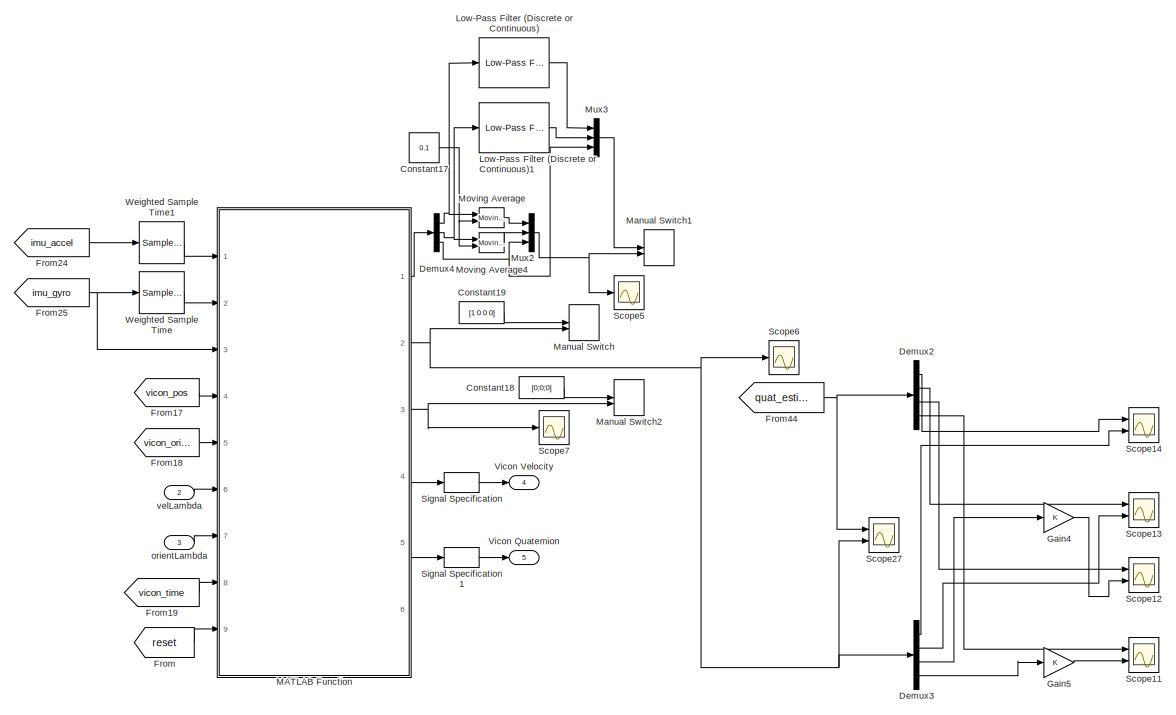
[diagram: state estimation - part 1/6, top right region]
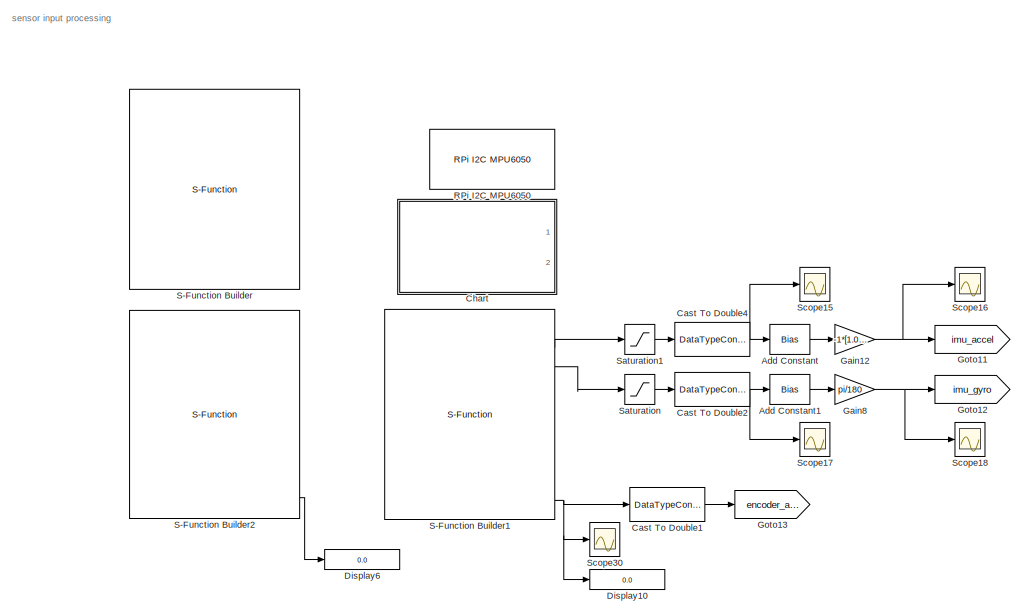
[diagram: state estimation - part 2/6, middle left region]
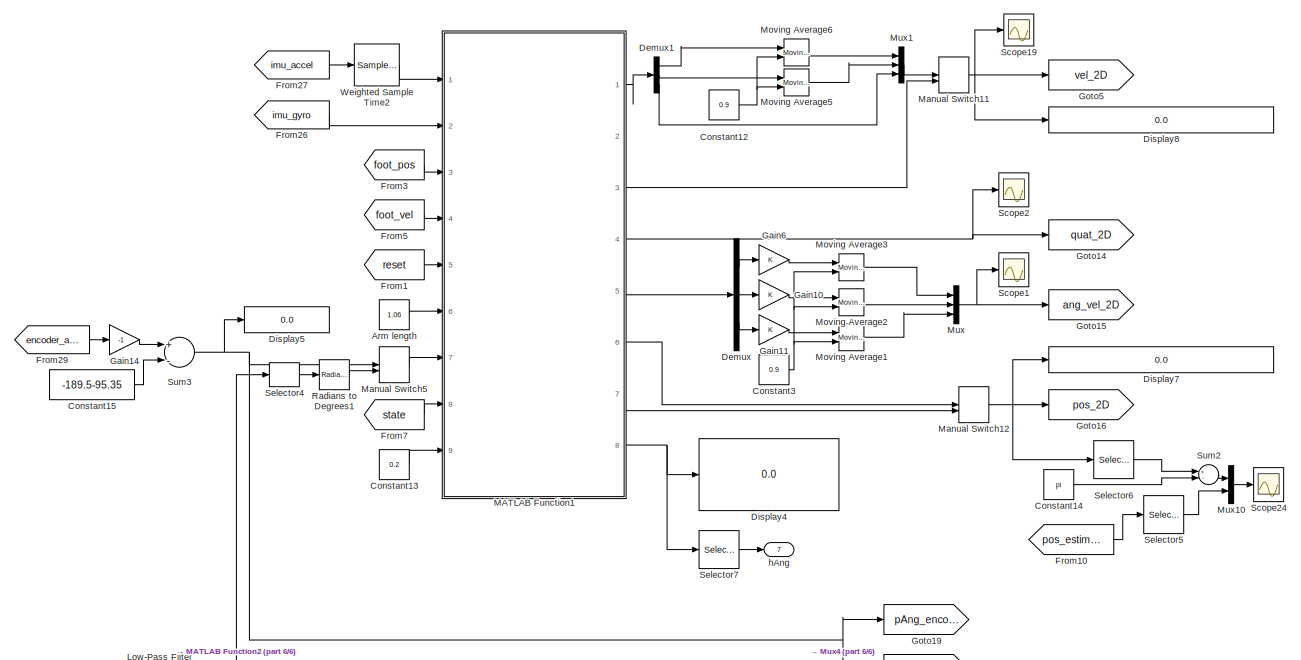
[diagram: state estimation - part 3/6, central region]
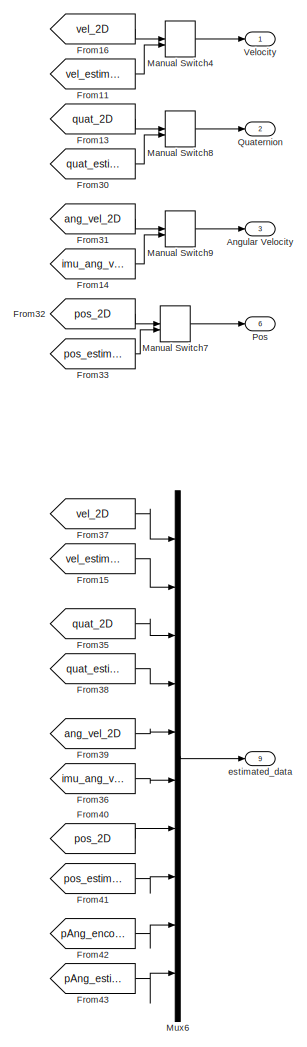
[diagram: state estimation - part 4/6, middle right region]
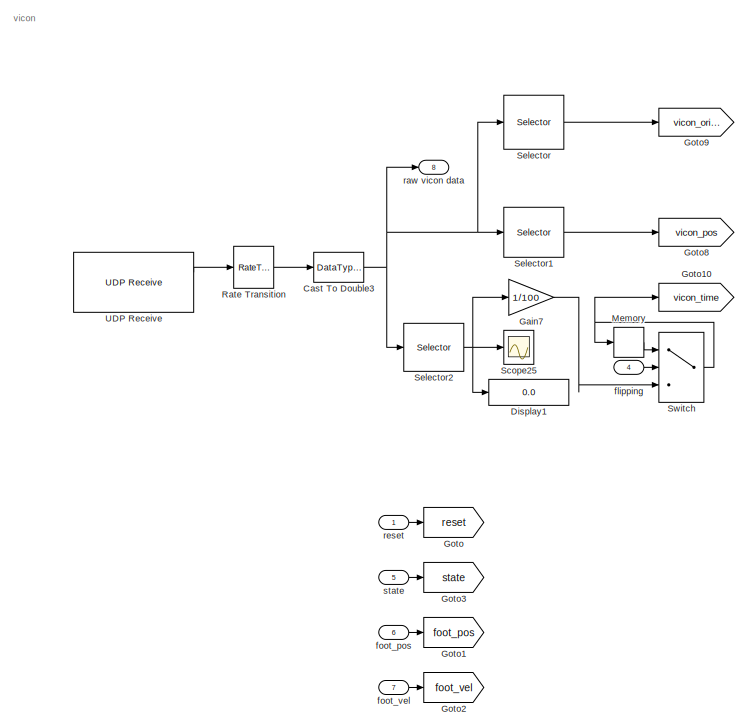
[diagram: state estimation - part 5/6, bottom left region]
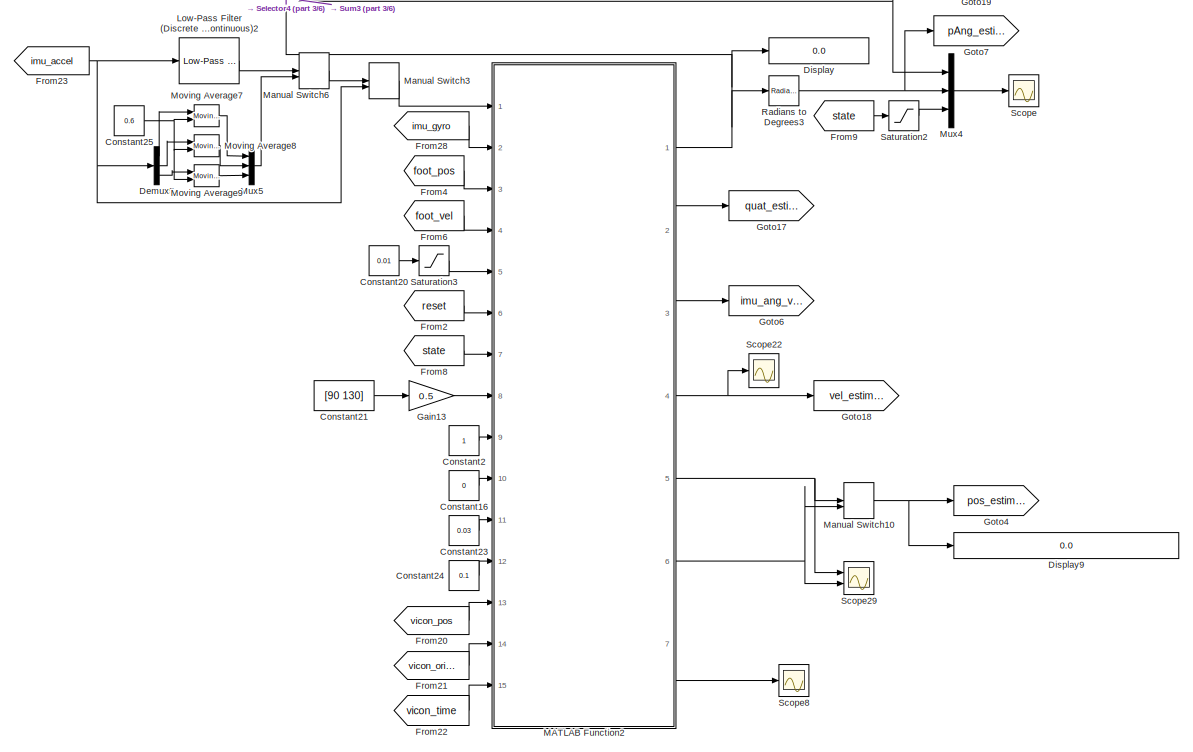
[diagram: state estimation - part 6/6, bottom center region]
BLOCK [SubSystem] state estimation
  Ports = [7, 9]
  RequestExecContextInheritance = off
BLOCK [Bias] state estimation/Add Constant
  Bias = -[-0.0175;-0.0067;-0.0122]
  SaturateOnIntegerOverflow = off
BLOCK [Bias] state estimation/Add Constant1
  Bias = [-0.07;-0.17;0.2]
  SaturateOnIntegerOverflow = off
BLOCK [Outport] state estimation/Angular Velocity
  IconDisplay = Port number
  Port = 3
BLOCK [Constant] state estimation/Arm length
  Value = 1.06
BLOCK [DataTypeConversion] state estimation/Cast To Double1
  OutDataTypeStr = double
  RndMeth = Floor
  SaturateOnIntegerOverflow = off
BLOCK [DataTypeConversion] state estimation/Cast To Double2
  OutDataTypeStr = double
  RndMeth = Floor
  SaturateOnIntegerOverflow = off
BLOCK [DataTypeConversion] state estimation/Cast To Double3
  OutDataTypeStr = double
  RndMeth = Floor
  SaturateOnIntegerOverflow = off
BLOCK [DataTypeConversion] state estimation/Cast To Double4
  OutDataTypeStr = double
  RndMeth = Floor
  SaturateOnIntegerOverflow = off
BLOCK [SubSystem] state estimation/Chart
  Commented = on
  ErrorFcn = Stateflow.Translate.translate
  PermitHierarchicalResolution = ExplicitOnly
  Ports = [0, 2]
  RequestExecContextInheritance = off
  SFBlockType = Chart
  TreatAsAtomicUnit = on
BLOCK [Demux] state estimation/Chart/ Demux 
  Outputs = 8
  Ports = [1, 8]
BLOCK [S-Function] state estimation/Chart/ SFunction 
  EnableBusSupport = on
  FunctionName = sf_sfun
  PortCounts = [10 3]
  Ports = [10, 3]
  SFcnIsStateOwnerBlock = off
  SFunctionDeploymentMode = off
  Tag = Stateflow S-Function hoppingControl 9
BLOCK [Outport] state estimation/Chart/acc
  IconDisplay = Port number
BLOCK [SubSystem] state estimation/Chart/disable_write
  Ports = [0, 1, 0, 1]
  PreDeleteFcn = Stateflow.SLINSF.SimulinkMan.removePreDeleteFcn
  RequestExecContextInheritance = off
  UndoDeleteFcn = Stateflow.SLINSF.SimulinkMan.restorePreDeleteFcn
BLOCK [Constant] state estimation/Chart/disable_write/Constant
  Value = bin2dec('00000000')
BLOCK [Reference] state estimation/Chart/disable_write/I2C Master Write  REF=raspberrypilib/I2C Master Write
  Ports = [1, 1]
  SourceBlock = raspberrypilib/I2C Master Write
  SourceProductBaseCode = RASPPI
  SourceProductName = Simulink Support Package for Raspberry Pi Hardware
  SourceType = codertarget.raspi.internal.I2CMasterWrite
BLOCK [Outport] state estimation/Chart/disable_write/err
  IconDisplay = Port number
BLOCK [TriggerPort] state estimation/Chart/disable_write/f
  CopyFcn = Stateflow.SLINSF.SimulinkMan.removeBlockPreDeleteFcn
  Ports = []
  PreDeleteFcn = Stateflow.SLINSF.SimulinkMan.unsafePredeleteFcn
  StatesWhenEnabling = held
  TriggerType = function-call
  VariantControl = (inherit)
BLOCK [SubSystem] state estimation/Chart/enable_data
  Ports = [0, 1, 0, 1]
  PreDeleteFcn = Stateflow.SLINSF.SimulinkMan.removePreDeleteFcn
  RequestExecContextInheritance = off
  UndoDeleteFcn = Stateflow.SLINSF.SimulinkMan.restorePreDeleteFcn
BLOCK [Constant] state estimation/Chart/enable_data/Constant
  Value = bin2dec('11111111')
BLOCK [Reference] state estimation/Chart/enable_data/I2C Master Write  REF=raspberrypilib/I2C Master Write
  Ports = [1, 1]
  SourceBlock = raspberrypilib/I2C Master Write
  SourceProductBaseCode = RASPPI
  SourceProductName = Simulink Support Package for Raspberry Pi Hardware
  SourceType = codertarget.raspi.internal.I2CMasterWrite
BLOCK [Outport] state estimation/Chart/enable_data/err
  IconDisplay = Port number
BLOCK [TriggerPort] state estimation/Chart/enable_data/f
  CopyFcn = Stateflow.SLINSF.SimulinkMan.removeBlockPreDeleteFcn
  Ports = []
  PreDeleteFcn = Stateflow.SLINSF.SimulinkMan.unsafePredeleteFcn
  StatesWhenEnabling = held
  TriggerType = function-call
  VariantControl = (inherit)
BLOCK [SubSystem] state estimation/Chart/enable_write
  Ports = [0, 1, 0, 1]
  PreDeleteFcn = Stateflow.SLINSF.SimulinkMan.removePreDeleteFcn
  RequestExecContextInheritance = off
  UndoDeleteFcn = Stateflow.SLINSF.SimulinkMan.restorePreDeleteFcn
BLOCK [Constant] state estimation/Chart/enable_write/Constant
  Value = bin2dec('10000000')
BLOCK [Reference] state estimation/Chart/enable_write/I2C Master Write  REF=raspberrypilib/I2C Master Write
  Ports = [1, 1]
  SourceBlock = raspberrypilib/I2C Master Write
  SourceProductBaseCode = RASPPI
  SourceProductName = Simulink Support Package for Raspberry Pi Hardware
  SourceType = codertarget.raspi.internal.I2CMasterWrite
BLOCK [Outport] state estimation/Chart/enable_write/err
  IconDisplay = Port number
BLOCK [TriggerPort] state estimation/Chart/enable_write/f
  CopyFcn = Stateflow.SLINSF.SimulinkMan.removeBlockPreDeleteFcn
  Ports = []
  PreDeleteFcn = Stateflow.SLINSF.SimulinkMan.unsafePredeleteFcn
  StatesWhenEnabling = held
  TriggerType = function-call
  VariantControl = (inherit)
BLOCK [Outport] state estimation/Chart/gyro
  IconDisplay = Port number
  Port = 2
BLOCK [SubSystem] state estimation/Chart/read_imu
  Ports = [0, 3, 0, 1]
  PreDeleteFcn = Stateflow.SLINSF.SimulinkMan.removePreDeleteFcn
  RequestExecContextInheritance = off
  UndoDeleteFcn = Stateflow.SLINSF.SimulinkMan.restorePreDeleteFcn
BLOCK [Reference] state estimation/Chart/read_imu/I2C Master Read  REF=raspberrypilib/I2C Master Read
  Ports = [0, 2]
  SourceBlock = raspberrypilib/I2C Master Read
  SourceProductBaseCode = RASPPI
  SourceProductName = Simulink Support Package for Raspberry Pi Hardware
  SourceType = codertarget.raspi.internal.I2CMasterRead
BLOCK [Selector] state estimation/Chart/read_imu/Selector
  IndexOptions = Index vector (dialog)
  Indices = [1 2 3]
  InputPortWidth = 6
  OutputSizes = 1
  Ports = [1, 1]
BLOCK [Selector] state estimation/Chart/read_imu/Selector1
  IndexOptions = Index vector (dialog)
  Indices = [4 5 6]
  InputPortWidth = 6
  OutputSizes = 1
  Ports = [1, 1]
BLOCK [Outport] state estimation/Chart/read_imu/acc
  IconDisplay = Port number
BLOCK [Outport] state estimation/Chart/read_imu/err
  IconDisplay = Port number
  Port = 3
BLOCK [TriggerPort] state estimation/Chart/read_imu/f
  CopyFcn = Stateflow.SLINSF.SimulinkMan.removeBlockPreDeleteFcn
  Ports = []
  PreDeleteFcn = Stateflow.SLINSF.SimulinkMan.unsafePredeleteFcn
  StatesWhenEnabling = held
  TriggerType = function-call
  VariantControl = (inherit)
BLOCK [Outport] state estimation/Chart/read_imu/gyro
  IconDisplay = Port number
  Port = 2
BLOCK [SubSystem] state estimation/Chart/set_accel
  Ports = [0, 1, 0, 1]
  PreDeleteFcn = Stateflow.SLINSF.SimulinkMan.removePreDeleteFcn
  RequestExecContextInheritance = off
  UndoDeleteFcn = Stateflow.SLINSF.SimulinkMan.restorePreDeleteFcn
BLOCK [Constant] state estimation/Chart/set_accel/Constant
  Value = bin2dec('00001100')
BLOCK [Reference] state estimation/Chart/set_accel/I2C Master Write  REF=raspberrypilib/I2C Master Write
  Ports = [1, 1]
  SourceBlock = raspberrypilib/I2C Master Write
  SourceProductBaseCode = RASPPI
  SourceProductName = Simulink Support Package for Raspberry Pi Hardware
  SourceType = codertarget.raspi.internal.I2CMasterWrite
BLOCK [Outport] state estimation/Chart/set_accel/err
  IconDisplay = Port number
BLOCK [TriggerPort] state estimation/Chart/set_accel/f
  CopyFcn = Stateflow.SLINSF.SimulinkMan.removeBlockPreDeleteFcn
  Ports = []
  PreDeleteFcn = Stateflow.SLINSF.SimulinkMan.unsafePredeleteFcn
  StatesWhenEnabling = held
  TriggerType = function-call
  VariantControl = (inherit)
BLOCK [SubSystem] state estimation/Chart/set_filter
  Ports = [0, 1, 0, 1]
  PreDeleteFcn = Stateflow.SLINSF.SimulinkMan.removePreDeleteFcn
  RequestExecContextInheritance = off
  UndoDeleteFcn = Stateflow.SLINSF.SimulinkMan.restorePreDeleteFcn
BLOCK [Constant] state estimation/Chart/set_filter/Constant
  Value = bin2dec('00000001')
BLOCK [Reference] state estimation/Chart/set_filter/I2C Master Write  REF=raspberrypilib/I2C Master Write
  Ports = [1, 1]
  SourceBlock = raspberrypilib/I2C Master Write
  SourceProductBaseCode = RASPPI
  SourceProductName = Simulink Support Package for Raspberry Pi Hardware
  SourceType = codertarget.raspi.internal.I2CMasterWrite
BLOCK [Outport] state estimation/Chart/set_filter/err
  IconDisplay = Port number
BLOCK [TriggerPort] state estimation/Chart/set_filter/f
  CopyFcn = Stateflow.SLINSF.SimulinkMan.removeBlockPreDeleteFcn
  Ports = []
  PreDeleteFcn = Stateflow.SLINSF.SimulinkMan.unsafePredeleteFcn
  StatesWhenEnabling = held
  TriggerType = function-call
  VariantControl = (inherit)
BLOCK [SubSystem] state estimation/Chart/set_freq
  Ports = [0, 1, 0, 1]
  PreDeleteFcn = Stateflow.SLINSF.SimulinkMan.removePreDeleteFcn
  RequestExecContextInheritance = off
  UndoDeleteFcn = Stateflow.SLINSF.SimulinkMan.restorePreDeleteFcn
BLOCK [Constant] state estimation/Chart/set_freq/Constant
  Value = bin2dec('00000101')
BLOCK [Reference] state estimation/Chart/set_freq/I2C Master Write  REF=raspberrypilib/I2C Master Write
  Ports = [1, 1]
  SourceBlock = raspberrypilib/I2C Master Write
  SourceProductBaseCode = RASPPI
  SourceProductName = Simulink Support Package for Raspberry Pi Hardware
  SourceType = codertarget.raspi.internal.I2CMasterWrite
BLOCK [Outport] state estimation/Chart/set_freq/err
  IconDisplay = Port number
BLOCK [TriggerPort] state estimation/Chart/set_freq/f
  CopyFcn = Stateflow.SLINSF.SimulinkMan.removeBlockPreDeleteFcn
  Ports = []
  PreDeleteFcn = Stateflow.SLINSF.SimulinkMan.unsafePredeleteFcn
  StatesWhenEnabling = held
  TriggerType = function-call
  VariantControl = (inherit)
BLOCK [SubSystem] state estimation/Chart/set_gyro
  Ports = [0, 1, 0, 1]
  PreDeleteFcn = Stateflow.SLINSF.SimulinkMan.removePreDeleteFcn
  RequestExecContextInheritance = off
  UndoDeleteFcn = Stateflow.SLINSF.SimulinkMan.restorePreDeleteFcn
BLOCK [Constant] state estimation/Chart/set_gyro/Constant
  Value = bin2dec('00001000')
BLOCK [Reference] state estimation/Chart/set_gyro/I2C Master Write  REF=raspberrypilib/I2C Master Write
  Ports = [1, 1]
  SourceBlock = raspberrypilib/I2C Master Write
  SourceProductBaseCode = RASPPI
  SourceProductName = Simulink Support Package for Raspberry Pi Hardware
  SourceType = codertarget.raspi.internal.I2CMasterWrite
BLOCK [Outport] state estimation/Chart/set_gyro/err
  IconDisplay = Port number
BLOCK [TriggerPort] state estimation/Chart/set_gyro/f
  CopyFcn = Stateflow.SLINSF.SimulinkMan.removeBlockPreDeleteFcn
  Ports = []
  PreDeleteFcn = Stateflow.SLINSF.SimulinkMan.unsafePredeleteFcn
  StatesWhenEnabling = held
  TriggerType = function-call
  VariantControl = (inherit)
BLOCK [Constant] state estimation/Constant12
  Value = 0.9
BLOCK [Constant] state estimation/Constant13
  Value = 0.2
BLOCK [Constant] state estimation/Constant14
  Value = pi
BLOCK [Constant] state estimation/Constant15
  Value = -189.5-95.35
BLOCK [Constant] state estimation/Constant16
  Value = 0
BLOCK [Constant] state estimation/Constant17
  Value = 0.1
BLOCK [Constant] state estimation/Constant18
  Value = [0;0;0]
BLOCK [Constant] state estimation/Constant19
  Value = [1 0 0 0]
  VectorParams1D = off
BLOCK [Constant] state estimation/Constant2
BLOCK [Constant] state estimation/Constant20
  Value = 0.01
BLOCK [Constant] state estimation/Constant21
  Value = [90 130]
  VectorParams1D = off
BLOCK [Constant] state estimation/Constant23
  Value = 0.03
BLOCK [Constant] state estimation/Constant24
  Value = 0.1
BLOCK [Constant] state estimation/Constant25
  Value = 0.6
BLOCK [Constant] state estimation/Constant3
  Value = 0.9
BLOCK [Demux] state estimation/Demux
  DisplayOption = bar
  Outputs = 3
  Ports = [1, 3]
BLOCK [Demux] state estimation/Demux1
  DisplayOption = bar
  Outputs = 3
  Ports = [1, 3]
BLOCK [Demux] state estimation/Demux2
  DisplayOption = bar
  Ports = [1, 4]
BLOCK [Demux] state estimation/Demux3
  DisplayOption = bar
  Ports = [1, 4]
BLOCK [Demux] state estimation/Demux4
  DisplayOption = bar
  Outputs = 3
  Ports = [1, 3]
BLOCK [Demux] state estimation/Demux5
  DisplayOption = bar
  Outputs = 3
  Ports = [1, 3]
BLOCK [Display] state estimation/Display
  Decimation = 1
  Ports = [1]
BLOCK [Display] state estimation/Display1
  Decimation = 100
  Ports = [1]
BLOCK [Display] state estimation/Display10
  Decimation = 100
  Ports = [1]
BLOCK [Display] state estimation/Display4
  Decimation = 1
  Ports = [1]
BLOCK [Display] state estimation/Display5
  Decimation = 1
  Ports = [1]
BLOCK [Display] state estimation/Display6
  Decimation = 100
  Ports = [1]
BLOCK [Display] state estimation/Display7
  Decimation = 1
  Ports = [1]
BLOCK [Display] state estimation/Display8
  Decimation = 1
  Ports = [1]
BLOCK [Display] state estimation/Display9
  Decimation = 1
  Ports = [1]
BLOCK [From] state estimation/From
  GotoTag = reset
BLOCK [From] state estimation/From1
  GotoTag = reset
BLOCK [From] state estimation/From10
  GotoTag = pos_estimate
BLOCK [From] state estimation/From11
  GotoTag = vel_estimate
BLOCK [From] state estimation/From13
  GotoTag = quat_2D
BLOCK [From] state estimation/From14
  GotoTag = imu_ang_vel
BLOCK [From] state estimation/From15
  GotoTag = vel_estimate
BLOCK [From] state estimation/From16
  GotoTag = vel_2D
BLOCK [From] state estimation/From17
  GotoTag = vicon_pos
BLOCK [From] state estimation/From18
  GotoTag = vicon_orient
BLOCK [From] state estimation/From19
  GotoTag = vicon_time
BLOCK [From] state estimation/From2
  GotoTag = reset
BLOCK [From] state estimation/From20
  GotoTag = vicon_pos
BLOCK [From] state estimation/From21
  GotoTag = vicon_orient
BLOCK [From] state estimation/From22
  GotoTag = vicon_time
BLOCK [From] state estimation/From23
  GotoTag = imu_accel
BLOCK [From] state estimation/From24
  GotoTag = imu_accel
BLOCK [From] state estimation/From25
  GotoTag = imu_gyro
BLOCK [From] state estimation/From26
  GotoTag = imu_gyro
BLOCK [From] state estimation/From27
  GotoTag = imu_accel
BLOCK [From] state estimation/From28
  GotoTag = imu_gyro
BLOCK [From] state estimation/From29
  GotoTag = encoder_ang
BLOCK [From] state estimation/From3
  GotoTag = foot_pos
BLOCK [From] state estimation/From30
  GotoTag = quat_estimate
BLOCK [From] state estimation/From31
  GotoTag = ang_vel_2D
BLOCK [From] state estimation/From32
  GotoTag = pos_2D
BLOCK [From] state estimation/From33
  GotoTag = pos_estimate
BLOCK [From] state estimation/From35
  GotoTag = quat_2D
BLOCK [From] state estimation/From36
  GotoTag = imu_ang_vel
BLOCK [From] state estimation/From37
  GotoTag = vel_2D
BLOCK [From] state estimation/From38
  GotoTag = quat_estimate
BLOCK [From] state estimation/From39
  GotoTag = ang_vel_2D
BLOCK [From] state estimation/From4
  GotoTag = foot_pos
BLOCK [From] state estimation/From40
  GotoTag = pos_2D
BLOCK [From] state estimation/From41
  GotoTag = pos_estimate
BLOCK [From] state estimation/From42
  GotoTag = pAng_encoder
BLOCK [From] state estimation/From43
  GotoTag = pAng_estimate
BLOCK [From] state estimation/From44
  GotoTag = quat_estimate
BLOCK [From] state estimation/From5
  GotoTag = foot_vel
BLOCK [From] state estimation/From6
  GotoTag = foot_vel
BLOCK [From] state estimation/From7
  GotoTag = state
BLOCK [From] state estimation/From8
  GotoTag = state
BLOCK [From] state estimation/From9
  GotoTag = state
BLOCK [Gain] state estimation/Gain10
  OutDataTypeStr = Inherit: Inherit via internal rule
  ParamDataTypeStr = Inherit: Inherit via internal rule
  SaturateOnIntegerOverflow = off
BLOCK [Gain] state estimation/Gain11
  OutDataTypeStr = Inherit: Inherit via internal rule
  ParamDataTypeStr = Inherit: Inherit via internal rule
  SaturateOnIntegerOverflow = off
BLOCK [Gain] state estimation/Gain12
  Gain = -1*[1.0061 -0.0076 0.0018; 0.0045 0.9996 0.0047; -0.0038 0.0031 1.0009]
  Multiplication = Matrix(K*u)
  OutDataTypeStr = Inherit: Inherit via internal rule
  ParamDataTypeStr = Inherit: Inherit via internal rule
  SaturateOnIntegerOverflow = off
BLOCK [Gain] state estimation/Gain13
  Gain = 0.5
  OutDataTypeStr = Inherit: Inherit via internal rule
  ParamDataTypeStr = Inherit: Inherit via internal rule
  SaturateOnIntegerOverflow = off
BLOCK [Gain] state estimation/Gain14
  Gain = -1
  OutDataTypeStr = Inherit: Inherit via internal rule
  ParamDataTypeStr = Inherit: Inherit via internal rule
  SaturateOnIntegerOverflow = off
BLOCK [Gain] state estimation/Gain4
  OutDataTypeStr = Inherit: Inherit via internal rule
  ParamDataTypeStr = Inherit: Inherit via internal rule
  SaturateOnIntegerOverflow = off
BLOCK [Gain] state estimation/Gain5
  OutDataTypeStr = Inherit: Inherit via internal rule
  ParamDataTypeStr = Inherit: Inherit via internal rule
  SaturateOnIntegerOverflow = off
BLOCK [Gain] state estimation/Gain6
  OutDataTypeStr = Inherit: Inherit via internal rule
  ParamDataTypeStr = Inherit: Inherit via internal rule
  SaturateOnIntegerOverflow = off
BLOCK [Gain] state estimation/Gain7
  Gain = 1/100
  OutDataTypeStr = Inherit: Inherit via internal rule
  ParamDataTypeStr = Inherit: Inherit via internal rule
  SaturateOnIntegerOverflow = off
BLOCK [Gain] state estimation/Gain8
  Gain = pi/180
  Multiplication = Matrix(K*u)
  OutDataTypeStr = Inherit: Inherit via internal rule
  ParamDataTypeStr = Inherit: Inherit via internal rule
  SaturateOnIntegerOverflow = off
BLOCK [Goto] state estimation/Goto
  GotoTag = reset
BLOCK [Goto] state estimation/Goto1
  GotoTag = foot_pos
BLOCK [Goto] state estimation/Goto10
  GotoTag = vicon_time
BLOCK [Goto] state estimation/Goto11
  GotoTag = imu_accel
BLOCK [Goto] state estimation/Goto12
  GotoTag = imu_gyro
BLOCK [Goto] state estimation/Goto13
  GotoTag = encoder_ang
BLOCK [Goto] state estimation/Goto14
  GotoTag = quat_2D
BLOCK [Goto] state estimation/Goto15
  GotoTag = ang_vel_2D
BLOCK [Goto] state estimation/Goto16
  GotoTag = pos_2D
BLOCK [Goto] state estimation/Goto17
  GotoTag = quat_estimate
BLOCK [Goto] state estimation/Goto18
  GotoTag = vel_estimate
BLOCK [Goto] state estimation/Goto19
  GotoTag = pAng_encoder
BLOCK [Goto] state estimation/Goto2
  GotoTag = foot_vel
BLOCK [Goto] state estimation/Goto3
  GotoTag = state
BLOCK [Goto] state estimation/Goto4
  GotoTag = pos_estimate
BLOCK [Goto] state estimation/Goto5
  GotoTag = vel_2D
BLOCK [Goto] state estimation/Goto6
  GotoTag = imu_ang_vel
BLOCK [Goto] state estimation/Goto7
  GotoTag = pAng_estimate
BLOCK [Goto] state estimation/Goto8
  GotoTag = vicon_pos
BLOCK [Goto] state estimation/Goto9
  GotoTag = vicon_orient
BLOCK [Reference] state estimation/Low-Pass Filter (Discrete or Continuous)  REF=peGeneralControl/Low-Pass Filter
(Discrete or Continuous)
  Ports = [1, 1]
  SourceBlock = peGeneralControl/Low-Pass Filter\n(Discrete or Continuous)
  SourceType = Low-Pass Filter (Discrete or Continuous)
BLOCK [Reference] state estimation/Low-Pass Filter (Discrete or Continuous)1  REF=peGeneralControl/Low-Pass Filter
(Discrete or Continuous)
  Ports = [1, 1]
  SourceBlock = peGeneralControl/Low-Pass Filter\n(Discrete or Continuous)
  SourceType = Low-Pass Filter (Discrete or Continuous)
BLOCK [Reference] state estimation/Low-Pass Filter (Discrete or Continuous)2  REF=peGeneralControl/Low-Pass Filter
(Discrete or Continuous)
  Ports = [1, 1]
  SourceBlock = peGeneralControl/Low-Pass Filter\n(Discrete or Continuous)
  SourceType = Low-Pass Filter (Discrete or Continuous)
BLOCK [SubSystem] state estimation/MATLAB Function
  ErrorFcn = Stateflow.Translate.translate
  PermitHierarchicalResolution = ExplicitOnly
  Ports = [9, 6]
  RequestExecContextInheritance = off
  SFBlockType = MATLAB Function
  TreatAsAtomicUnit = on
BLOCK [Demux] state estimation/MATLAB Function/ Demux 
  Outputs = 1
  Ports = [1, 1]
BLOCK [S-Function] state estimation/MATLAB Function/ SFunction 
  EnableBusSupport = on
  FunctionName = sf_sfun
  PortCounts = [9 7]
  Ports = [9, 7]
  SFcnIsStateOwnerBlock = off
  SFunctionDeploymentMode = off
  Tag = Stateflow S-Function hoppingControl 2
BLOCK [Terminator] state estimation/MATLAB Function/ Terminator 
BLOCK [Inport] state estimation/MATLAB Function/angVel
  IconDisplay = Port number
  Port = 3
BLOCK [Inport] state estimation/MATLAB Function/angVelInc
  IconDisplay = Port number
  Port = 2
BLOCK [Outport] state estimation/MATLAB Function/orient
  IconDisplay = Port number
  Port = 2
BLOCK [Inport] state estimation/MATLAB Function/orientLambda
  IconDisplay = Port number
  Port = 7
BLOCK [Inport] state estimation/MATLAB Function/orientReset
  IconDisplay = Port number
  Port = 9
BLOCK [Outport] state estimation/MATLAB Function/realAngVel
  IconDisplay = Port number
  Port = 3
BLOCK [Outport] state estimation/MATLAB Function/vOrient
  IconDisplay = Port number
  Port = 5
BLOCK [Outport] state estimation/MATLAB Function/vPos
  IconDisplay = Port number
  Port = 6
BLOCK [Outport] state estimation/MATLAB Function/vVel
  IconDisplay = Port number
  Port = 4
BLOCK [Outport] state estimation/MATLAB Function/vel
  IconDisplay = Port number
BLOCK [Inport] state estimation/MATLAB Function/velInc
  IconDisplay = Port number
BLOCK [Inport] state estimation/MATLAB Function/velLambda
  IconDisplay = Port number
  Port = 6
BLOCK [Inport] state estimation/MATLAB Function/viconOrient
  IconDisplay = Port number
  Port = 5
BLOCK [Inport] state estimation/MATLAB Function/viconPos
  IconDisplay = Port number
  Port = 4
BLOCK [Inport] state estimation/MATLAB Function/viconTime
  IconDisplay = Port number
  Port = 8
BLOCK [SubSystem] state estimation/MATLAB Function1
  ErrorFcn = Stateflow.Translate.translate
  PermitHierarchicalResolution = ExplicitOnly
  Ports = [9, 8]
  RequestExecContextInheritance = off
  SFBlockType = MATLAB Function
  TreatAsAtomicUnit = on
BLOCK [Demux] state estimation/MATLAB Function1/ Demux 
  Outputs = 1
  Ports = [1, 1]
BLOCK [S-Function] state estimation/MATLAB Function1/ SFunction 
  EnableBusSupport = on
  FunctionName = sf_sfun
  PortCounts = [9 9]
  Ports = [9, 9]
  SFcnIsStateOwnerBlock = off
  SFunctionDeploymentMode = off
  Tag = Stateflow S-Function hoppingControl 5
BLOCK [Terminator] state estimation/MATLAB Function1/ Terminator 
BLOCK [Inport] state estimation/MATLAB Function1/arm_length
  IconDisplay = Port number
  Port = 6
BLOCK [Outport] state estimation/MATLAB Function1/debug
  IconDisplay = Port number
  Port = 8
BLOCK [Outport] state estimation/MATLAB Function1/ePos
  IconDisplay = Port number
  Port = 7
BLOCK [Outport] state estimation/MATLAB Function1/estimate_vel
  IconDisplay = Port number
  Port = 3
BLOCK [Inport] state estimation/MATLAB Function1/foot_pos
  IconDisplay = Port number
  Port = 3
BLOCK [Inport] state estimation/MATLAB Function1/foot_vel
  IconDisplay = Port number
  Port = 4
BLOCK [Inport] state estimation/MATLAB Function1/imu_gyro
  IconDisplay = Port number
  Port = 2
BLOCK [Outport] state estimation/MATLAB Function1/imu_vel
  IconDisplay = Port number
  Port = 2
BLOCK [Outport] state estimation/MATLAB Function1/new_orient
  IconDisplay = Port number
  Port = 4
BLOCK [Outport] state estimation/MATLAB Function1/new_realAngVel
  IconDisplay = Port number
  Port = 5
BLOCK [Outport] state estimation/MATLAB Function1/new_vPos
  IconDisplay = Port number
  Port = 6
BLOCK [Outport] state estimation/MATLAB Function1/new_vel
  IconDisplay = Port number
BLOCK [Inport] state estimation/MATLAB Function1/orient_reset
  IconDisplay = Port number
  Port = 5
BLOCK [Inport] state estimation/MATLAB Function1/pAng
  IconDisplay = Port number
  Port = 7
BLOCK [Inport] state estimation/MATLAB Function1/state
  IconDisplay = Port number
  Port = 8
BLOCK [Inport] state estimation/MATLAB Function1/velInc
  IconDisplay = Port number
BLOCK [Inport] state estimation/MATLAB Function1/vel_weight
  IconDisplay = Port number
  Port = 9
BLOCK [SubSystem] state estimation/MATLAB Function2
  ErrorFcn = Stateflow.Translate.translate
  PermitHierarchicalResolution = ExplicitOnly
  Ports = [15, 7]
  RequestExecContextInheritance = off
  SFBlockType = MATLAB Function
  TreatAsAtomicUnit = on
BLOCK [Demux] state estimation/MATLAB Function2/ Demux 
  Outputs = 1
  Ports = [1, 1]
BLOCK [S-Function] state estimation/MATLAB Function2/ SFunction 
  EnableBusSupport = on
  FunctionName = sf_sfun
  PortCounts = [15 8]
  Ports = [15, 8]
  SFcnIsStateOwnerBlock = off
  SFunctionDeploymentMode = off
  Tag = Stateflow S-Function hoppingControl 4
BLOCK [Terminator] state estimation/MATLAB Function2/ Terminator 
BLOCK [Inport] state estimation/MATLAB Function2/accel_weight
  IconDisplay = Port number
  Port = 5
BLOCK [Outport] state estimation/MATLAB Function2/ang_vel
  IconDisplay = Port number
  Port = 3
BLOCK [Inport] state estimation/MATLAB Function2/arm_length
  IconDisplay = Port number
  Port = 9
BLOCK [Inport] state estimation/MATLAB Function2/bound
  IconDisplay = Port number
  Port = 8
BLOCK [Outport] state estimation/MATLAB Function2/debug
  IconDisplay = Port number
  Port = 7
BLOCK [Outport] state estimation/MATLAB Function2/estimate_pAng
  IconDisplay = Port number
BLOCK [Outport] state estimation/MATLAB Function2/estimate_pos
  IconDisplay = Port number
  Port = 5
BLOCK [Outport] state estimation/MATLAB Function2/estimate_vel
  IconDisplay = Port number
  Port = 4
BLOCK [Inport] state estimation/MATLAB Function2/foot_pos
  IconDisplay = Port number
  Port = 3
BLOCK [Inport] state estimation/MATLAB Function2/foot_vel
  IconDisplay = Port number
  Port = 4
BLOCK [Inport] state estimation/MATLAB Function2/imu_accel
  IconDisplay = Port number
BLOCK [Inport] state estimation/MATLAB Function2/imu_gyro
  IconDisplay = Port number
  Port = 2
BLOCK [Outport] state estimation/MATLAB Function2/mapped_vicon_pos
  IconDisplay = Port number
  Port = 6
BLOCK [Inport] state estimation/MATLAB Function2/orient_lambda
  IconDisplay = Port number
  Port = 11
BLOCK [Inport] state estimation/MATLAB Function2/orient_reset
  IconDisplay = Port number
  Port = 6
BLOCK [Outport] state estimation/MATLAB Function2/quat_orient
  IconDisplay = Port number
  Port = 2
BLOCK [Inport] state estimation/MATLAB Function2/state
  IconDisplay = Port number
  Port = 7
BLOCK [Inport] state estimation/MATLAB Function2/vel_lambda
  IconDisplay = Port number
  Port = 12
BLOCK [Inport] state estimation/MATLAB Function2/vicon_flag
  IconDisplay = Port number
  Port = 10
BLOCK [Inport] state estimation/MATLAB Function2/vicon_orient
  IconDisplay = Port number
  Port = 14
BLOCK [Inport] state estimation/MATLAB Function2/vicon_pos
  IconDisplay = Port number
  Port = 13
BLOCK [Inport] state estimation/MATLAB Function2/vicon_time
  IconDisplay = Port number
  Port = 15
BLOCK [ManualSwitch] state estimation/Manual Switch
  CurrentSetting = 0
BLOCK [ManualSwitch] state estimation/Manual Switch1
  CurrentSetting = 0
BLOCK [ManualSwitch] state estimation/Manual Switch10
BLOCK [ManualSwitch] state estimation/Manual Switch11
  CurrentSetting = 0
BLOCK [ManualSwitch] state estimation/Manual Switch12
  CurrentSetting = 0
BLOCK [ManualSwitch] state estimation/Manual Switch2
  CurrentSetting = 0
BLOCK [ManualSwitch] state estimation/Manual Switch3
BLOCK [ManualSwitch] state estimation/Manual Switch4
  CurrentSetting = 0
BLOCK [ManualSwitch] state estimation/Manual Switch5
  CurrentSetting = 0
BLOCK [ManualSwitch] state estimation/Manual Switch6
BLOCK [ManualSwitch] state estimation/Manual Switch7
  CurrentSetting = 0
BLOCK [ManualSwitch] state estimation/Manual Switch8
  CurrentSetting = 0
BLOCK [ManualSwitch] state estimation/Manual Switch9
  CurrentSetting = 0
BLOCK [Memory] state estimation/Memory
BLOCK [Reference] state estimation/Moving Average  REF=dspstat3/Moving
Average
  Ports = [2, 1]
  SourceBlock = dspstat3/Moving\nAverage
  SourceProductBaseCode = DS
  SourceProductName = DSP System Toolbox
  SourceType = dsp.simulink.MovingAverage
BLOCK [Reference] state estimation/Moving Average1  REF=dspstat3/Moving
Average
  Ports = [2, 1]
  SourceBlock = dspstat3/Moving\nAverage
  SourceProductBaseCode = DS
  SourceProductName = DSP System Toolbox
  SourceType = dsp.simulink.MovingAverage
BLOCK [Reference] state estimation/Moving Average2  REF=dspstat3/Moving
Average
  Ports = [2, 1]
  SourceBlock = dspstat3/Moving\nAverage
  SourceProductBaseCode = DS
  SourceProductName = DSP System Toolbox
  SourceType = dsp.simulink.MovingAverage
BLOCK [Reference] state estimation/Moving Average3  REF=dspstat3/Moving
Average
  Ports = [2, 1]
  SourceBlock = dspstat3/Moving\nAverage
  SourceProductBaseCode = DS
  SourceProductName = DSP System Toolbox
  SourceType = dsp.simulink.MovingAverage
BLOCK [Reference] state estimation/Moving Average4  REF=dspstat3/Moving
Average
  Ports = [2, 1]
  SourceBlock = dspstat3/Moving\nAverage
  SourceProductBaseCode = DS
  SourceProductName = DSP System Toolbox
  SourceType = dsp.simulink.MovingAverage
BLOCK [Reference] state estimation/Moving Average5  REF=dspstat3/Moving
Average
  Ports = [2, 1]
  SourceBlock = dspstat3/Moving\nAverage
  SourceProductBaseCode = DS
  SourceProductName = DSP System Toolbox
  SourceType = dsp.simulink.MovingAverage
BLOCK [Reference] state estimation/Moving Average6  REF=dspstat3/Moving
Average
  Ports = [2, 1]
  SourceBlock = dspstat3/Moving\nAverage
  SourceProductBaseCode = DS
  SourceProductName = DSP System Toolbox
  SourceType = dsp.simulink.MovingAverage
BLOCK [Reference] state estimation/Moving Average7  REF=dspstat3/Moving
Average
  Ports = [2, 1]
  SourceBlock = dspstat3/Moving\nAverage
  SourceProductBaseCode = DS
  SourceProductName = DSP System Toolbox
  SourceType = dsp.simulink.MovingAverage
BLOCK [Reference] state estimation/Moving Average8  REF=dspstat3/Moving
Average
  Ports = [2, 1]
  SourceBlock = dspstat3/Moving\nAverage
  SourceProductBaseCode = DS
  SourceProductName = DSP System Toolbox
  SourceType = dsp.simulink.MovingAverage
BLOCK [Reference] state estimation/Moving Average9  REF=dspstat3/Moving
Average
  Ports = [2, 1]
  SourceBlock = dspstat3/Moving\nAverage
  SourceProductBaseCode = DS
  SourceProductName = DSP System Toolbox
  SourceType = dsp.simulink.MovingAverage
BLOCK [Mux] state estimation/Mux
  DisplayOption = bar
  Inputs = 3
  Ports = [3, 1]
BLOCK [Mux] state estimation/Mux1
  DisplayOption = bar
  Inputs = 3
  Ports = [3, 1]
BLOCK [Mux] state estimation/Mux10
  DisplayOption = bar
  Inputs = 2
  Ports = [2, 1]
BLOCK [Mux] state estimation/Mux2
  DisplayOption = bar
  Inputs = 3
  Ports = [3, 1]
BLOCK [Mux] state estimation/Mux3
  DisplayOption = bar
  Inputs = 3
  Ports = [3, 1]
BLOCK [Mux] state estimation/Mux4
  DisplayOption = bar
  Inputs = 3
  Ports = [3, 1]
BLOCK [Mux] state estimation/Mux5
  DisplayOption = bar
  Inputs = 3
  Ports = [3, 1]
BLOCK [Mux] state estimation/Mux6
  DisplayOption = bar
  Inputs = 10
  Ports = [10, 1]
BLOCK [Outport] state estimation/Pos
  IconDisplay = Port number
  Port = 6
BLOCK [Outport] state estimation/Quaternion
  IconDisplay = Port number
  Port = 2
BLOCK [Reference] state estimation/RPi I2C MPU6050  REF=cm_custom/RPi I2C MPU6050  (lib defined in slx_d6c950ba7fcc)
  Commented = on
  Ports = [0, 3]
  SourceBlock = cm_custom/RPi I2C MPU6050
  SourceProductName = cm custom
BLOCK [Reference] state estimation/Radians to Degrees1  REF=simulink_extras/Transformations/Radians
to Degrees
  Ports = [1, 1]
  SourceBlock = simulink_extras/Transformations/Radians\nto Degrees
  SourceProductBaseCode = SL
  SourceProductName = Simulink
  SourceType = RadiansToDegrees
BLOCK [Reference] state estimation/Radians to Degrees3  REF=simulink_extras/Transformations/Radians
to Degrees
  Ports = [1, 1]
  SourceBlock = simulink_extras/Transformations/Radians\nto Degrees
  SourceProductBaseCode = SL
  SourceProductName = Simulink
  SourceType = RadiansToDegrees
BLOCK [RateTransition] state estimation/Rate Transition
  Deterministic = off
  InitialCondition = [0 0 0 0 0 0 0]
BLOCK [S-Function] state estimation/S-Function Builder
  Commented = on
  CopyFcn = set_param(gcbh,'LinkStatus','none')
  EnableBusSupport = off
  FunctionName = LPMS_ME1_SPI
  InitFcn = try, set_param(gcb,'FunctionName','LPMS_ME1_SPI'), end
  OpenFcn = sfunctionwizard(gcbh)
  Ports = [0, 9]
  PreSaveFcn = try, set_param(gcb,'FunctionName','LPMS_ME1_SPI'), end
  SFcnIsStateOwnerBlock = off
  SFunctionDeploymentMode = off
  SFunctionModules = LPMS_ME1_SPI_wrapper
BLOCK [S-Function] state estimation/S-Function Builder1
  CopyFcn = set_param(gcbh,'LinkStatus','none')
  EnableBusSupport = off
  FunctionName = LPMS_BE2_UART
  InitFcn = try, set_param(gcb,'FunctionName','LPMS_BE2_UART'), end
  OpenFcn = sfunctionwizard(gcbh)
  Ports = [0, 10]
  PreSaveFcn = try, set_param(gcb,'FunctionName','LPMS_BE2_UART'), end
  SFcnIsStateOwnerBlock = off
  SFunctionDeploymentMode = off
  SFunctionModules = LPMS_BE2_UART_wrapper
BLOCK [S-Function] state estimation/S-Function Builder2
  Commented = on
  CopyFcn = set_param(gcbh,'LinkStatus','none')
  EnableBusSupport = off
  FunctionName = LPMS_BE2_SPI
  InitFcn = try, set_param(gcb,'FunctionName','LPMS_BE2_SPI'), end
  OpenFcn = sfunctionwizard(gcbh)
  Ports = [0, 9]
  PreSaveFcn = try, set_param(gcb,'FunctionName','LPMS_BE2_SPI'), end
  SFcnIsStateOwnerBlock = off
  SFunctionDeploymentMode = off
  SFunctionModules = LPMS_BE2_SPI_wrapper
BLOCK [Saturate] state estimation/Saturation
  InputPortMap = u0
  LowerLimit = -2000
  Ports = [1, 1]
  UpperLimit = 2000
BLOCK [Saturate] state estimation/Saturation1
  InputPortMap = u0
  LowerLimit = -16
  Ports = [1, 1]
  UpperLimit = 16
BLOCK [Saturate] state estimation/Saturation2
  InputPortMap = u0
  LowerLimit = -10
  Ports = [1, 1]
  UpperLimit = 10
BLOCK [Saturate] state estimation/Saturation3
  InputPortMap = u0
  LowerLimit = 0
  Ports = [1, 1]
  UpperLimit = 1
BLOCK [Scope] state estimation/Scope
  Floating = off
  NumInputPorts = 1
  Ports = [1]
  ScopeSpecificationString = Simulink.scopes.TimeScopeBlockCfg('CurrentConfiguration', extmgr.ConfigurationSet(extmgr.Configuration('Core','General UI',true),extmgr.Configuration('Core','Source UI',true),extmgr.Configuration('Sources','WiredSimulink',true,'DataLoggingVariableName','ScopeData2'),extmgr.Configuration('Visuals','Time Domain',true,'PlotType','Stairs','SerializedDisplays',{struct('MinYLimReal','-44.548','MaxYLimRe...<+1492ch>
BLOCK [Scope] state estimation/Scope1
  Floating = off
  NumInputPorts = 1
  Ports = [1]
  ScopeSpecificationString = Simulink.scopes.TimeScopeBlockCfg('CurrentConfiguration', extmgr.ConfigurationSet(extmgr.Configuration('Core','General UI',true),extmgr.Configuration('Core','Source UI',true),extmgr.Configuration('Sources','WiredSimulink',true,'DataLoggingVariableName','ScopeData2'),extmgr.Configuration('Visuals','Time Domain',true,'SerializedDisplays',{struct('MinYLimReal','-2.02135','MaxYLimReal','1.21806','YLab...<+1481ch>
BLOCK [Scope] state estimation/Scope11
  Commented = on
  Floating = off
  NumInputPorts = 2
  Ports = [2]
  ScopeSpecificationString = Simulink.scopes.TimeScopeBlockCfg('CurrentConfiguration', extmgr.ConfigurationSet(extmgr.Configuration('Core','General UI',true),extmgr.Configuration('Core','Source UI',true),extmgr.Configuration('Sources','WiredSimulink',true,'DataLoggingVariableName','ScopeData3'),extmgr.Configuration('Visuals','Time Domain',true,'SerializedDisplays',{struct('MinYLimReal','-0.53406','MaxYLimReal','-0.11931','YLa...<+1450ch>
BLOCK [Scope] state estimation/Scope12
  Commented = on
  Floating = off
  NumInputPorts = 2
  Ports = [2]
  ScopeSpecificationString = Simulink.scopes.TimeScopeBlockCfg('CurrentConfiguration', extmgr.ConfigurationSet(extmgr.Configuration('Core','General UI',true),extmgr.Configuration('Core','Source UI',true),extmgr.Configuration('Sources','WiredSimulink',true,'DataLoggingVariableName','ScopeData4'),extmgr.Configuration('Visuals','Time Domain',true,'SerializedDisplays',{struct('MinYLimReal','-0.12993','MaxYLimReal','0.42993','YLab...<+1447ch>
BLOCK [Scope] state estimation/Scope13
  Commented = on
  Floating = off
  NumInputPorts = 2
  Ports = [2]
  ScopeSpecificationString = Simulink.scopes.TimeScopeBlockCfg('CurrentConfiguration', extmgr.ConfigurationSet(extmgr.Configuration('Core','General UI',true),extmgr.Configuration('Core','Source UI',true),extmgr.Configuration('Sources','WiredSimulink',true,'DataLoggingVariableName','ScopeData5'),extmgr.Configuration('Visuals','Time Domain',true,'SerializedDisplays',{struct('MinYLimReal','-0.09803','MaxYLimReal','0.15254','YLab...<+1450ch>
BLOCK [Scope] state estimation/Scope14
  Commented = on
  Floating = off
  NumInputPorts = 2
  Ports = [2]
  ScopeSpecificationString = Simulink.scopes.TimeScopeBlockCfg('CurrentConfiguration', extmgr.ConfigurationSet(extmgr.Configuration('Core','General UI',true),extmgr.Configuration('Core','Source UI',true),extmgr.Configuration('Sources','WiredSimulink',true,'DataLoggingVariableName','ScopeData6'),extmgr.Configuration('Visuals','Time Domain',true,'SerializedDisplays',{struct('MinYLimReal','0.8794','MaxYLimReal','0.9824','YLabelR...<+1439ch>
BLOCK [Scope] state estimation/Scope15
  Commented = on
  Floating = off
  NumInputPorts = 1
  Ports = [1]
  ScopeSpecificationString = Simulink.scopes.TimeScopeBlockCfg('CurrentConfiguration', extmgr.ConfigurationSet(extmgr.Configuration('Core','General UI',true),extmgr.Configuration('Core','Source UI',true),extmgr.Configuration('Sources','WiredSimulink',true,'DataLoggingVariableName','ScopeData3'),extmgr.Configuration('Visuals','Time Domain',true,'PlotType','Stairs','SerializedDisplays',{struct('MinYLimReal','0.20323','MaxYLimRe...<+1507ch>
BLOCK [Scope] state estimation/Scope16
  Floating = off
  NumInputPorts = 1
  Ports = [1]
  ScopeSpecificationString = Simulink.scopes.TimeScopeBlockCfg('CurrentConfiguration', extmgr.ConfigurationSet(extmgr.Configuration('Core','General UI',true),extmgr.Configuration('Core','Source UI',true),extmgr.Configuration('Sources','WiredSimulink',true,'DataLoggingVariableName','ScopeData1'),extmgr.Configuration('Visuals','Time Domain',true,'PlotType','Stairs','SerializedDisplays',{struct('MinYLimReal','-0.39775','MaxYLimR...<+1483ch>
BLOCK [Scope] state estimation/Scope17
  Commented = on
  Floating = off
  NumInputPorts = 1
  Ports = [1]
  ScopeSpecificationString = Simulink.scopes.TimeScopeBlockCfg('CurrentConfiguration', extmgr.ConfigurationSet(extmgr.Configuration('Core','General UI',true),extmgr.Configuration('Core','Source UI',true),extmgr.Configuration('Sources','WiredSimulink',true,'DataLoggingVariableName','ScopeData2'),extmgr.Configuration('Visuals','Time Domain',true,'PlotType','Stairs','SerializedDisplays',{struct('MinYLimReal','-1.785','MaxYLimRea...<+1496ch>
BLOCK [Scope] state estimation/Scope18
  Floating = off
  NumInputPorts = 1
  Ports = [1]
  ScopeSpecificationString = Simulink.scopes.TimeScopeBlockCfg('CurrentConfiguration', extmgr.ConfigurationSet(extmgr.Configuration('Core','General UI',true),extmgr.Configuration('Core','Source UI',true),extmgr.Configuration('Sources','WiredSimulink',true,'DataLoggingVariableName','ScopeData3'),extmgr.Configuration('Visuals','Time Domain',true,'PlotType','Stairs','SerializedDisplays',{struct('MinYLimReal','-1.28746','MaxYLimR...<+1477ch>
BLOCK [Scope] state estimation/Scope19
  Floating = off
  NumInputPorts = 1
  Ports = [1]
  ScopeSpecificationString = Simulink.scopes.TimeScopeBlockCfg('CurrentConfiguration', extmgr.ConfigurationSet(extmgr.Configuration('Core','General UI',true),extmgr.Configuration('Core','Source UI',true),extmgr.Configuration('Sources','WiredSimulink',true,'DataLoggingVariableName','ScopeData1'),extmgr.Configuration('Visuals','Time Domain',true,'SerializedDisplays',{struct('MinYLimReal','-1.67833','MaxYLimReal','1.52654','YLab...<+1475ch>
BLOCK [Scope] state estimation/Scope2
  Floating = off
  NumInputPorts = 1
  Ports = [1]
  ScopeSpecificationString = Simulink.scopes.TimeScopeBlockCfg('CurrentConfiguration', extmgr.ConfigurationSet(extmgr.Configuration('Core','General UI',true),extmgr.Configuration('Core','Source UI',true),extmgr.Configuration('Sources','WiredSimulink',true,'DataLoggingVariableName','ScopeData3'),extmgr.Configuration('Visuals','Time Domain',true,'SerializedDisplays',{struct('MinYLimReal','-0.46719','MaxYLimReal','1.16302','YLab...<+1558ch>
BLOCK [Scope] state estimation/Scope22
  Floating = off
  NumInputPorts = 1
  Ports = [1]
  ScopeSpecificationString = Simulink.scopes.TimeScopeBlockCfg('CurrentConfiguration', extmgr.ConfigurationSet(extmgr.Configuration('Core','General UI',true),extmgr.Configuration('Core','Source UI',true),extmgr.Configuration('Sources','WiredSimulink',true,'DataLoggingVariableName','ScopeData2'),extmgr.Configuration('Visuals','Time Domain',true,'PlotType','Stairs','SerializedDisplays',{struct('MinYLimReal','-1.44448','MaxYLimR...<+1549ch>
BLOCK [Scope] state estimation/Scope24
  Floating = off
  NumInputPorts = 1
  Ports = [1]
  ScopeSpecificationString = Simulink.scopes.TimeScopeBlockCfg('CurrentConfiguration', extmgr.ConfigurationSet(extmgr.Configuration('Core','General UI',true),extmgr.Configuration('Core','Source UI',true),extmgr.Configuration('Sources','WiredSimulink',true,'DataLoggingVariableName','ScopeData2'),extmgr.Configuration('Visuals','Time Domain',true,'SerializedDisplays',{struct('MinYLimReal','-2.98414','MaxYLimReal','1.98964','YLab...<+1447ch>
BLOCK [Scope] state estimation/Scope25
  Floating = off
  NumInputPorts = 1
  Ports = [1]
  ScopeSpecificationString = Simulink.scopes.TimeScopeBlockCfg('CurrentConfiguration', extmgr.ConfigurationSet(extmgr.Configuration('Core','General UI',true),extmgr.Configuration('Core','Source UI',true),extmgr.Configuration('Sources','WiredSimulink',true,'DataLoggingVariableName','ScopeData1'),extmgr.Configuration('Visuals','Time Domain',true,'SerializedDisplays',{struct('MinYLimReal','555978.70511','MaxYLimReal','556106.649...<+1477ch>
BLOCK [Scope] state estimation/Scope27
  Floating = off
  NumInputPorts = 2
  Ports = [2]
  ScopeSpecificationString = Simulink.scopes.TimeScopeBlockCfg('CurrentConfiguration', extmgr.ConfigurationSet(extmgr.Configuration('Core','General UI',true),extmgr.Configuration('Core','Source UI',true),extmgr.Configuration('Sources','WiredSimulink',true,'DataLoggingVariableName','ScopeData1'),extmgr.Configuration('Visuals','Time Domain',true,'PlotType','Stairs','SerializedDisplays',{struct('MinYLimReal','-0.82842','MaxYLimR...<+1627ch>
BLOCK [Scope] state estimation/Scope29
  Floating = off
  NumInputPorts = 2
  Ports = [2]
  ScopeSpecificationString = Simulink.scopes.TimeScopeBlockCfg('CurrentConfiguration', extmgr.ConfigurationSet(extmgr.Configuration('Core','General UI',true),extmgr.Configuration('Core','Source UI',true),extmgr.Configuration('Sources','WiredSimulink',true,'DataLoggingVariableName','ScopeData2'),extmgr.Configuration('Visuals','Time Domain',true,'SerializedDisplays',{struct('MinYLimReal','-1.00000','MaxYLimReal','1.00000','YLab...<+1643ch>
BLOCK [Scope] state estimation/Scope30
  Floating = off
  NumInputPorts = 1
  Ports = [1]
  ScopeSpecificationString = Simulink.scopes.TimeScopeBlockCfg('CurrentConfiguration', extmgr.ConfigurationSet(extmgr.Configuration('Core','General UI',true),extmgr.Configuration('Core','Source UI',true),extmgr.Configuration('Sources','WiredSimulink',true,'DataLoggingVariableName','ScopeData1'),extmgr.Configuration('Visuals','Time Domain',true,'PlotType','Stairs','SerializedDisplays',{struct('MinYLimReal','241.92719','MaxYLim...<+1487ch>
BLOCK [Scope] state estimation/Scope5
  Floating = off
  NumInputPorts = 1
  Ports = [1]
  ScopeSpecificationString = Simulink.scopes.TimeScopeBlockCfg('CurrentConfiguration', extmgr.ConfigurationSet(extmgr.Configuration('Core','General UI',true),extmgr.Configuration('Core','Source UI',true),extmgr.Configuration('Sources','WiredSimulink',true,'DataLoggingVariableName','ScopeData1'),extmgr.Configuration('Visuals','Time Domain',true,'PlotType','Stairs','SerializedDisplays',{struct('MinYLimReal','-1.95828','MaxYLimR...<+1494ch>
BLOCK [Scope] state estimation/Scope6
  Commented = on
  Floating = off
  NumInputPorts = 1
  Ports = [1]
  ScopeSpecificationString = Simulink.scopes.TimeScopeBlockCfg('CurrentConfiguration', extmgr.ConfigurationSet(extmgr.Configuration('Core','General UI',true),extmgr.Configuration('Core','Source UI',true),extmgr.Configuration('Sources','WiredSimulink',true,'DataLoggingVariableName','ScopeData2'),extmgr.Configuration('Visuals','Time Domain',true,'PlotType','Stairs','SerializedDisplays',{struct('MinYLimReal','-0.38759','MaxYLimR...<+1556ch>
BLOCK [Scope] state estimation/Scope7
  Floating = off
  NumInputPorts = 1
  Ports = [1]
  ScopeSpecificationString = Simulink.scopes.TimeScopeBlockCfg('CurrentConfiguration', extmgr.ConfigurationSet(extmgr.Configuration('Core','General UI',true),extmgr.Configuration('Core','Source UI',true),extmgr.Configuration('Sources','WiredSimulink',true,'DataLoggingVariableName','ScopeData3'),extmgr.Configuration('Visuals','Time Domain',true,'SerializedDisplays',{struct('MinYLimReal','-0.00694','MaxYLimReal','0.02751','YLab...<+1522ch>
BLOCK [Scope] state estimation/Scope8
  Floating = off
  NumInputPorts = 1
  Ports = [1]
  ScopeSpecificationString = Simulink.scopes.TimeScopeBlockCfg('CurrentConfiguration', extmgr.ConfigurationSet(extmgr.Configuration('Core','General UI',true),extmgr.Configuration('Core','Source UI',true),extmgr.Configuration('Sources','WiredSimulink',true,'DataLoggingVariableName','ScopeData1'),extmgr.Configuration('Visuals','Time Domain',true,'PlotType','Stairs','SerializedDisplays',{struct('MinYLimReal','-0.29603','MaxYLimR...<+1557ch>
BLOCK [Selector] state estimation/Selector
  IndexOptions = Index vector (dialog)
  Indices = [1 2 3]
  InputPortWidth = 7
  OutputSizes = 1
  Ports = [1, 1]
BLOCK [Selector] state estimation/Selector1
  IndexOptions = Index vector (dialog)
  Indices = [4 5 6]
  InputPortWidth = 7
  OutputSizes = 1
  Ports = [1, 1]
BLOCK [Selector] state estimation/Selector2
  IndexOptions = Index vector (dialog)
  Indices = [7]
  InputPortWidth = 7
  OutputSizes = 1
  Ports = [1, 1]
BLOCK [Selector] state estimation/Selector4
  IndexOptions = Index vector (dialog)
  Indices = [1]
  InputPortWidth = 1
  OutputSizes = 1
  Ports = [1, 1]
BLOCK [Selector] state estimation/Selector5
  IndexOptions = Index vector (dialog)
  Indices = [2]
  InputPortWidth = 3
  OutputSizes = 1
  Ports = [1, 1]
BLOCK [Selector] state estimation/Selector6
  IndexOptions = Index vector (dialog)
  Indices = [2]
  InputPortWidth = 3
  OutputSizes = 1
  Ports = [1, 1]
BLOCK [Selector] state estimation/Selector7
  IndexOptions = Index vector (dialog)
  Indices = [2]
  InputPortWidth = 4
  OutputSizes = 1
  Ports = [1, 1]
BLOCK [SignalSpecification] state estimation/Signal Specification
  Commented = through
  Dimensions = 3
BLOCK [SignalSpecification] state estimation/Signal Specification1
  Dimensions = 4
BLOCK [Sum] state estimation/Sum2
  InputSameDT = off
  Inputs = +-
  OutDataTypeStr = Inherit: Inherit via internal rule
  Ports = [2, 1]
  SaturateOnIntegerOverflow = off
BLOCK [Sum] state estimation/Sum3
  InputSameDT = off
  Inputs = +-
  OutDataTypeStr = Inherit: Inherit via internal rule
  Ports = [2, 1]
  SaturateOnIntegerOverflow = off
BLOCK [Switch] state estimation/Switch
  Criteria = u2 > Threshold
  InputSameDT = off
  SaturateOnIntegerOverflow = off
BLOCK [Reference] state estimation/UDP Receive  REF=embdlinuxlib/UDP Receive
  Ports = [0, 2]
  SourceBlock = embdlinuxlib/UDP Receive
  SourceProductBaseCode = RASPPI
  SourceProductName = Simulink Support Package for Raspberry Pi Hardware
  SourceType = UDP Receive
BLOCK [Outport] state estimation/Velocity
  IconDisplay = Port number
BLOCK [Outport] state estimation/Vicon Quaternion
  IconDisplay = Port number
  Port = 5
BLOCK [Outport] state estimation/Vicon Velocity
  IconDisplay = Port number
  Port = 4
BLOCK [SampleTimeMath] state estimation/Weighted Sample Time
  TsampMathOp = *
BLOCK [SampleTimeMath] state estimation/Weighted Sample Time1
  TsampMathOp = *
BLOCK [SampleTimeMath] state estimation/Weighted Sample Time2
  TsampMathOp = *
BLOCK [Outport] state estimation/estimated_data
  IconDisplay = Port number
  Port = 9
BLOCK [Inport] state estimation/flipping
  IconDisplay = Port number
  Port = 4
BLOCK [Inport] state estimation/foot_pos
  IconDisplay = Port number
  Port = 6
BLOCK [Inport] state estimation/foot_vel
  IconDisplay = Port number
  Port = 7
BLOCK [Outport] state estimation/hAng
  IconDisplay = Port number
  Port = 7
BLOCK [Inport] state estimation/orientLambda
  IconDisplay = Port number
  Port = 3
BLOCK [Outport] state estimation/raw vicon data
  IconDisplay = Port number
  Port = 8
BLOCK [Inport] state estimation/reset
  IconDisplay = Port number
BLOCK [Inport] state estimation/state
  IconDisplay = Port number
  Port = 5
BLOCK [Inport] state estimation/velLambda
  IconDisplay = Port number
  Port = 2
BLOCK [Constant] wing_safety
  Value = 0
ANNOTATION state estimation: sensor input processing
ANNOTATION state estimation: vicon
NET Balance Reset:1 -> Motor Driver:6, state estimation:1
LINE Clock:1 -> MATLAB Function:33
LINE Constant10:1 -> MATLAB Function:23
LINE Constant11:1 -> MATLAB Function:24
LINE Constant12:1 -> Multiport Switch:2
LINE Constant13:1 -> state estimation:2
LINE Constant14:1 -> state estimation:3
LINE Constant16:1 -> MATLAB Function:29
LINE Constant17:1 -> MATLAB Function:28
LINE Constant18:1 -> MATLAB Function:1
LINE Constant1:1 -> Manual Switch2:2
LINE Constant20:1 -> MATLAB Function:30
LINE Constant21:1 -> Mux4:1
LINE Constant22:1 -> MATLAB Function:31
LINE Constant23:1 -> Mux4:3
LINE Constant24:1 -> Sum:2
LINE Constant2:1 -> MATLAB Function:25
LINE Constant3:1 -> Sum:1
LINE Constant4:1 -> MATLAB Function:26
LINE Constant5:1 -> MATLAB Function:27
LINE Constant6:1 -> MATLAB Function:20
LINE Constant7:1 -> MATLAB Function:17
LINE Constant8:1 -> Multiport Switch:1
LINE Constant9:1 -> Multiport Switch:4
LINE Constant:1 -> MATLAB Function:19
LINE Data Store Read:1 -> state estimation:4
LINE Demux1:1 -> Scope1:2
LINE Demux1:2 -> Scope2:2
LINE Demux2:1 -> Mux:1
LINE Demux2:10 -> Goto8:1
LINE Demux2:2 -> Mux:2
LINE Demux2:3 -> Mux:3
LINE Demux2:4 -> Mux1:1
LINE Demux2:5 -> Mux1:2
LINE Demux2:6 -> Mux1:3
LINE Demux2:7 -> Mux3:1
LINE Demux2:8 -> Mux3:2
NET Demux2:9 -> Goto13:1, Scope10:1
LINE Demux:1 -> Scope1:1
LINE Demux:2 -> Scope2:1
LINE From10:1 -> Kinematics:1
LINE From11:1 -> Mux2:6
LINE From12:1 -> Mux2:1
LINE From13:1 -> MATLAB Function:9
LINE From14:1 -> Kinematics:2
LINE From15:1 -> Mux2:4
LINE From16:1 -> Mux2:7
LINE From17:1 -> Mux2:2
LINE From18:1 -> Mux2:5
LINE From19:1 -> Mux2:3
LINE From1:1 -> Motor Driver:3
LINE From20:1 -> Memory2:1
LINE From21:1 -> Memory:1
LINE From22:1 -> Memory1:1
LINE From23:1 -> MATLAB Function:7
LINE From24:1 -> Mux2:8
LINE From25:1 -> Reshape2:1
LINE From27:1 -> Reshape1:1
LINE From29:1 -> MATLAB Function:6
LINE From2:1 -> Motor Driver:5
LINE From30:1 -> MATLAB Function:8
LINE From3:1 -> Manual Switch2:1
LINE From4:1 -> MATLAB Function:10
LINE From5:1 -> MATLAB Function:2
LINE From6:1 -> MATLAB Function:3
LINE From7:1 -> Motor Driver:7
LINE From8:1 -> MATLAB Function:4
LINE From9:1 -> MATLAB Function:5
LINE From:1 -> Motor Driver:2
LINE Joint Position Filter/Constant:1 -> Joint Position Filter/Subsystem3:2
NET Joint Position Filter/Gain1:1 -> Joint Position Filter/Joint Pos:1, Joint Position Filter/Subsystem3:1
LINE Joint Position Filter/MATLAB Function:1 -> Joint Position Filter/Display:1
NET Joint Position Filter/MATLAB Function:2 -> Joint Position Filter/Gain1:1, Joint Position Filter/Joint Pos Degree:1, Joint Position Filter/Scope:1
LINE Joint Position Filter/MATLAB Function:3 -> Joint Position Filter/Joint Offset Safety:1
NET Joint Position Filter/Motor Pos:1 -> Joint Position Filter/Display1:1, Joint Position Filter/MATLAB Function:1, Joint Position Filter/Scope1:1
LINE Joint Position Filter/Subsystem3/Demux2:1 -> Joint Position Filter/Subsystem3/Moving Average:1
LINE Joint Position Filter/Subsystem3/Demux2:2 -> Joint Position Filter/Subsystem3/Moving Average1:1
LINE Joint Position Filter/Subsystem3/Demux2:3 -> Joint Position Filter/Subsystem3/Moving Average2:1
LINE Joint Position Filter/Subsystem3/Discrete Derivative:1 -> Joint Position Filter/Subsystem3/Demux2:1
LINE Joint Position Filter/Subsystem3/Moving Average1:1 -> Joint Position Filter/Subsystem3/Mux4:2
LINE Joint Position Filter/Subsystem3/Moving Average2:1 -> Joint Position Filter/Subsystem3/Mux4:3
LINE Joint Position Filter/Subsystem3/Moving Average:1 -> Joint Position Filter/Subsystem3/Mux4:1
LINE Joint Position Filter/Subsystem3/Mux4:1 -> Joint Position Filter/Subsystem3/motor velocity :1
NET Joint Position Filter/Subsystem3/forgetting factor:1 -> Joint Position Filter/Subsystem3/Moving Average1:2, Joint Position Filter/Subsystem3/Moving Average2:2, Joint Position Filter/Subsystem3/Moving Average:2
LINE Joint Position Filter/Subsystem3/motor pos:1 -> Joint Position Filter/Subsystem3/Discrete Derivative:1
LINE Joint Position Filter/Subsystem3:1 -> Joint Position Filter/Joint Vel:1
LINE Joint Position Filter/set_offset:1 -> Joint Position Filter/MATLAB Function:2
NET Joint Position Filter:1 -> Display1:1, Scope7:1
LINE Joint Position Filter:2 -> Goto:1
LINE Joint Position Filter:3 -> Goto1:1
LINE Joint Position Filter:4 -> Goto2:1
LINE Kinematics/Joint Pos:1 -> Kinematics/MATLAB Function6:1
LINE Kinematics/Joint Vel:1 -> Kinematics/MATLAB Function7:2
NET Kinematics/MATLAB Function6:1 -> Kinematics/Foot Pos:1, Kinematics/MATLAB Function7:1
LINE Kinematics/MATLAB Function6:2 -> Kinematics/Display:1
LINE Kinematics/MATLAB Function7:1 -> Kinematics/Jacobian:1
LINE Kinematics/MATLAB Function7:2 -> Kinematics/Foot Vel:1
NET Kinematics/constant13:1 -> Kinematics/MATLAB Function6:2, Kinematics/MATLAB Function7:3
NET Kinematics/constant5:1 -> Kinematics/MATLAB Function6:4, Kinematics/MATLAB Function7:5
NET Kinematics/constant6:1 -> Kinematics/MATLAB Function6:3, Kinematics/MATLAB Function7:4
NET Kinematics:1 -> Scope14:1, Signal Specification5:1
NET Kinematics:2 -> Scope:1, Signal Specification4:1
LINE Kinematics:3 -> Goto4:1
NET MATLAB Function:1 -> Goto5:1, Scope15:1
LINE MATLAB Function:2 -> Goto6:1
LINE MATLAB Function:3 -> Demux2:1
NET MATLAB Function:4 -> Display6:1, Goto7:1, Selector1:1
LINE MATLAB Function:5 -> Data Store Write:1
LINE Manual Switch2:1 -> Motor Driver:1
LINE Memory1:1 -> state estimation:7
LINE Memory2:1 -> state estimation:5
LINE Memory:1 -> state estimation:6
LINE Motor Driver/Add1:1 -> Motor Driver/Mux10:2
LINE Motor Driver/Add2:1 -> Motor Driver/Mux10:3
LINE Motor Driver/Add3:1 -> Motor Driver/Sign:1
LINE Motor Driver/Add4:1 -> Motor Driver/To Workspace1:1
LINE Motor Driver/Add:1 -> Motor Driver/Mux10:1
LINE Motor Driver/Balance Safety:1 -> Motor Driver/MATLAB Function4:10
LINE Motor Driver/Bus Creator1:1 -> Motor Driver/VESC USB1:1
LINE Motor Driver/Bus Creator2:1 -> Motor Driver/VESC USB3:1
LINE Motor Driver/Bus Creator3:1 -> Motor Driver/VESC USB5:1
LINE Motor Driver/Bus Creator6:1 -> Motor Driver/VESC USB:1
LINE Motor Driver/Bus Creator7:1 -> Motor Driver/VESC USB4:1
LINE Motor Driver/Bus Creator8:1 -> Motor Driver/VESC USB2:1
LINE Motor Driver/Bus Selector1:1 -> Motor Driver/Minus3:2
LINE Motor Driver/Bus Selector1:2 -> Motor Driver/Gain3:1
NET Motor Driver/Bus Selector1:3 -> Motor Driver/Data Type Conversion3:1, Motor Driver/Mux2:3
LINE Motor Driver/Bus Selector2:1 -> Motor Driver/Minus1:2
LINE Motor Driver/Bus Selector2:2 -> Motor Driver/Gain:1
NET Motor Driver/Bus Selector2:3 -> Motor Driver/Data Type Conversion2:1, Motor Driver/Mux2:2
LINE Motor Driver/Bus Selector3:3 -> Motor Driver/Mux3:3
LINE Motor Driver/Bus Selector4:3 -> Motor Driver/Mux3:1
LINE Motor Driver/Bus Selector5:3 -> Motor Driver/Mux3:2
LINE Motor Driver/Bus Selector:1 -> Motor Driver/Minus2:2
LINE Motor Driver/Bus Selector:2 -> Motor Driver/Gain4:1
NET Motor Driver/Bus Selector:3 -> Motor Driver/Data Type Conversion1:1, Motor Driver/Mux2:1
NET Motor Driver/Cast1:1 -> Motor Driver/Bus Creator2:1, Motor Driver/Manual Switch2:1, Motor Driver/Manual Switch4:1
LINE Motor Driver/Cast2:1 -> Motor Driver/Manual Switch2:2
LINE Motor Driver/Cast3:1 -> Motor Driver/Manual Switch4:2
NET Motor Driver/Cast:1 -> Motor Driver/Bus Creator1:1, Motor Driver/Bus Creator6:1, Motor Driver/Bus Creator8:1, Motor Driver/Manual Switch:1
LINE Motor Driver/Constant10:1 -> Motor Driver/Add2:1
NET Motor Driver/Constant11:1 -> Motor Driver/Mux19:1, Motor Driver/Mux7:1, Motor Driver/Mux8:1
NET Motor Driver/Constant12:1 -> Motor Driver/Mux19:2, Motor Driver/Mux7:2, Motor Driver/Mux8:2
NET Motor Driver/Constant13:1 -> Motor Driver/Mux19:3, Motor Driver/Mux7:3, Motor Driver/Mux8:3
NET Motor Driver/Constant14:1 -> Motor Driver/Mux19:4, Motor Driver/Mux7:4, Motor Driver/Mux8:4
NET Motor Driver/Constant1:1 -> Motor Driver/Minus1:1, Motor Driver/Minus3:1
LINE Motor Driver/Constant23:1 -> Motor Driver/Mux9:4
LINE Motor Driver/Constant2:1 -> Motor Driver/Minus2:1
LINE Motor Driver/Constant3:1 -> Motor Driver/Manual Switch:2
LINE Motor Driver/Constant4:1 -> Motor Driver/Cast2:1
LINE Motor Driver/Constant5:1 -> Motor Driver/Switch:3
LINE Motor Driver/Constant6:1 -> Motor Driver/Manual Switch3:2
LINE Motor Driver/Constant7:1 -> Motor Driver/Cast3:1
LINE Motor Driver/Constant8:1 -> Motor Driver/Add:1
LINE Motor Driver/Constant9:1 -> Motor Driver/Add1:1
LINE Motor Driver/Constant:1 -> Motor Driver/Manual Switch1:2
LINE Motor Driver/Current:1 -> Motor Driver/MATLAB Function4:1
LINE Motor Driver/Data Type Conversion1:1 -> Motor Driver/Mux4:2
LINE Motor Driver/Data Type Conversion2:1 -> Motor Driver/Mux5:2
LINE Motor Driver/Data Type Conversion3:1 -> Motor Driver/Mux6:2
LINE Motor Driver/Demux1:1 -> Motor Driver/Moving Average1:1
LINE Motor Driver/Demux1:2 -> Motor Driver/Moving Average:1
LINE Motor Driver/Demux1:3 -> Motor Driver/Moving Average2:1
LINE Motor Driver/Demux2:1 -> Motor Driver/Moving Average4:1
LINE Motor Driver/Demux2:2 -> Motor Driver/Manual Switch3:1
LINE Motor Driver/Demux2:3 -> Motor Driver/Manual Switch1:1
LINE Motor Driver/Demux3:1 -> Motor Driver/Gain13:1
LINE Motor Driver/Demux3:2 -> Motor Driver/Gain14:1
LINE Motor Driver/Demux3:3 -> Motor Driver/Gain15:1
LINE Motor Driver/Demux4:1 -> Motor Driver/Gain16:1
LINE Motor Driver/Demux4:2 -> Motor Driver/Gain17:1
LINE Motor Driver/Demux4:3 -> Motor Driver/Gain18:1
LINE Motor Driver/Demux5:1 -> Motor Driver/Gain19:1
LINE Motor Driver/Demux5:2 -> Motor Driver/Gain20:1
LINE Motor Driver/Demux5:3 -> Motor Driver/Gain21:1
LINE Motor Driver/Demux7:3 -> Motor Driver/Mux11:2
LINE Motor Driver/Demux8:3 -> Motor Driver/Mux11:1
LINE Motor Driver/Demux9:1 -> Motor Driver/Gain22:1
LINE Motor Driver/Demux9:2 -> Motor Driver/Gain23:1
LINE Motor Driver/Demux9:3 -> Motor Driver/Gain24:1
NET Motor Driver/Demux:1 -> Motor Driver/Gain6:1, Motor Driver/Mux4:1
NET Motor Driver/Demux:2 -> Motor Driver/Gain5:1, Motor Driver/Mux5:1
NET Motor Driver/Demux:3 -> Motor Driver/Gain7:1, Motor Driver/Mux6:1
LINE Motor Driver/Gain10:1 -> Motor Driver/Bus Creator2:4
LINE Motor Driver/Gain11:1 -> Motor Driver/Bus Creator7:4
LINE Motor Driver/Gain12:1 -> Motor Driver/Bus Creator3:4
LINE Motor Driver/Gain13:1 -> Motor Driver/Add:2
LINE Motor Driver/Gain14:1 -> Motor Driver/Mux22:1
LINE Motor Driver/Gain15:1 -> Motor Driver/Mux23:1
LINE Motor Driver/Gain16:1 -> Motor Driver/Add1:2
LINE Motor Driver/Gain17:1 -> Motor Driver/Mux22:2
LINE Motor Driver/Gain18:1 -> Motor Driver/Mux23:2
LINE Motor Driver/Gain19:1 -> Motor Driver/Multiply:1
LINE Motor Driver/Gain20:1 -> Motor Driver/Mux22:3
LINE Motor Driver/Gain21:1 -> Motor Driver/Mux23:3
LINE Motor Driver/Gain22:1 -> Motor Driver/Mux7:5
LINE Motor Driver/Gain23:1 -> Motor Driver/Mux8:5
LINE Motor Driver/Gain24:1 -> Motor Driver/Multiply1:1
LINE Motor Driver/Gain2:1 -> Motor Driver/Bus Creator2:3
LINE Motor Driver/Gain3:1 -> Motor Driver/Mux1:2
LINE Motor Driver/Gain4:1 -> Motor Driver/Mux1:1
LINE Motor Driver/Gain5:1 -> Motor Driver/Bus Creator1:3
LINE Motor Driver/Gain6:1 -> Motor Driver/Bus Creator6:3
LINE Motor Driver/Gain7:1 -> Motor Driver/Bus Creator8:3
LINE Motor Driver/Gain8:1 -> Motor Driver/Bus Creator7:3
LINE Motor Driver/Gain9:1 -> Motor Driver/Bus Creator3:3
LINE Motor Driver/Gain:1 -> Motor Driver/Mux1:3
LINE Motor Driver/In1:1 -> Motor Driver/MATLAB Function4:11
LINE Motor Driver/Joint Pos:1 -> Motor Driver/MATLAB Function4:4
NET Motor Driver/MATLAB Function4:1 -> Motor Driver/Demux9:1, Motor Driver/Scope6:1
LINE Motor Driver/MATLAB Function4:2 -> Motor Driver/Switch:1
LINE Motor Driver/MATLAB Function4:3 -> Motor Driver/Demux1:1
NET Motor Driver/MATLAB Function4:4 -> Motor Driver/Demux2:1, Motor Driver/Scope4:1
LINE Motor Driver/MINI CHEETAH CAN1:1 -> Motor Driver/Demux5:1
NET Motor Driver/MINI CHEETAH CAN1:4 -> Motor Driver/Add3:1, Motor Driver/Demux7:1
LINE Motor Driver/MINI CHEETAH CAN:1 -> Motor Driver/Demux3:1
LINE Motor Driver/MINI CHEETAH CAN:2 -> Motor Driver/Demux4:1
LINE Motor Driver/MINI CHEETAH CAN:4 -> Motor Driver/Demux8:1
LINE Motor Driver/Manual Switch1:1 -> Motor Driver/Moving Average5:1
LINE Motor Driver/Manual Switch2:1 -> Motor Driver/Bus Creator3:1
LINE Motor Driver/Manual Switch3:1 -> Motor Driver/Moving Average3:1
LINE Motor Driver/Manual Switch4:1 -> Motor Driver/Bus Creator7:1
LINE Motor Driver/Manual Switch:1 -> Motor Driver/Switch:2
LINE Motor Driver/Max Current:1 -> Motor Driver/MATLAB Function4:9
LINE Motor Driver/Minus1:1 -> Motor Driver/Mux:3
LINE Motor Driver/Minus2:1 -> Motor Driver/Mux:1
LINE Motor Driver/Minus3:1 -> Motor Driver/Mux:2
NET Motor Driver/Moving Average1:1 -> Motor Driver/Gain2:1, Motor Driver/Scope:1
NET Motor Driver/Moving Average2:1 -> Motor Driver/Gain9:1, Motor Driver/Scope:3
LINE Motor Driver/Moving Average3:1 -> Motor Driver/Gain11:1
LINE Motor Driver/Moving Average4:1 -> Motor Driver/Gain10:1
LINE Motor Driver/Moving Average5:1 -> Motor Driver/Gain12:1
NET Motor Driver/Moving Average:1 -> Motor Driver/Gain8:1, Motor Driver/Scope:2
LINE Motor Driver/Multiply1:1 -> Motor Driver/Mux19:5
LINE Motor Driver/Multiply:1 -> Motor Driver/Add2:2
LINE Motor Driver/Mux10:1 -> Motor Driver/pid_pos:1
NET Motor Driver/Mux11:1 -> Motor Driver/Scope5:1, Motor Driver/To Workspace:1
LINE Motor Driver/Mux19:1 -> Motor Driver/MINI CHEETAH CAN1:2
LINE Motor Driver/Mux1:1 -> Motor Driver/Gain1:1
LINE Motor Driver/Mux22:1 -> Motor Driver/rads-1:1
LINE Motor Driver/Mux23:1 -> Motor Driver/current:1
LINE Motor Driver/Mux3:1 -> Motor Driver/Data Type Conversion:1
LINE Motor Driver/Mux4:1 -> Motor Driver/Scope1:1
LINE Motor Driver/Mux5:1 -> Motor Driver/Scope2:1
LINE Motor Driver/Mux6:1 -> Motor Driver/Scope3:1
LINE Motor Driver/Mux7:1 -> Motor Driver/MINI CHEETAH CAN:2
LINE Motor Driver/Mux8:1 -> Motor Driver/MINI CHEETAH CAN:3
NET Motor Driver/Mux9:1 -> Motor Driver/MINI CHEETAH CAN1:1, Motor Driver/MINI CHEETAH CAN:1
LINE Motor Driver/Mux:1 -> Motor Driver/Cast To Double:1
LINE Motor Driver/Offset Safety:1 -> Motor Driver/MATLAB Function4:8
LINE Motor Driver/Propeller Safety:1 -> Motor Driver/MATLAB Function4:3
NET Motor Driver/RT Time [s]1:1 -> Motor Driver/Add4:1, Motor Driver/Sign1:1
NET Motor Driver/RT Time [s]:1 -> Motor Driver/Add3:2, Motor Driver/Add4:2
LINE Motor Driver/Sign1:1 -> Motor Driver/Multiply1:2
LINE Motor Driver/Sign:1 -> Motor Driver/Multiply:2
LINE Motor Driver/Switch:1 -> Motor Driver/Cast1:1
LINE Motor Driver/VESC USB1:1 -> Motor Driver/Bus Selector1:1
LINE Motor Driver/VESC USB1:2 -> Motor Driver/Terminator1:1
LINE Motor Driver/VESC USB2:1 -> Motor Driver/Bus Selector2:1
LINE Motor Driver/VESC USB2:2 -> Motor Driver/Terminator2:1
LINE Motor Driver/VESC USB3:1 -> Motor Driver/Bus Selector4:1
LINE Motor Driver/VESC USB3:2 -> Motor Driver/Terminator3:1
LINE Motor Driver/VESC USB4:1 -> Motor Driver/Bus Selector5:1
LINE Motor Driver/VESC USB4:2 -> Motor Driver/Terminator4:1
LINE Motor Driver/VESC USB5:1 -> Motor Driver/Bus Selector3:1
LINE Motor Driver/VESC USB5:2 -> Motor Driver/Terminator5:1
LINE Motor Driver/VESC USB:1 -> Motor Driver/Bus Selector:1
LINE Motor Driver/VESC USB:2 -> Motor Driver/Terminator:1
LINE Motor Driver/constant1:1 -> Motor Driver/MATLAB Function4:5
LINE Motor Driver/constant2:1 -> Motor Driver/MATLAB Function4:6
LINE Motor Driver/constant3:1 -> Motor Driver/MATLAB Function4:7
LINE Motor Driver/constant4:1 -> Motor Driver/MATLAB Function4:12
LINE Motor Driver/constant5:1 -> Motor Driver/MATLAB Function4:13
NET Motor Driver/leg duty_cmd:1 -> Motor Driver/Bus Creator1:4, Motor Driver/Bus Creator6:4, Motor Driver/Bus Creator8:4
NET Motor Driver/master_switch:1 -> Motor Driver/Mux9:1, Motor Driver/Mux9:2, Motor Driver/Mux9:3
NET Motor Driver/pos_cmd:1 -> Motor Driver/Bus Creator1:2, Motor Driver/Bus Creator2:2, Motor Driver/Bus Creator3:2, Motor Driver/Bus Creator6:2, Motor Driver/Bus Creator7:2, Motor Driver/Bus Creator8:2
LINE Motor Driver/propeller_current:1 -> Motor Driver/MATLAB Function4:2
LINE Motor Driver:1 -> Joint Position Filter:1
LINE Motor Driver:3 -> Goto17:1
LINE Multiport Switch:1 -> MATLAB Function:16
LINE Mux1:1 -> Scope8:1
LINE Mux2:1 -> Reshape:1
NET Mux3:1 -> Display5:1, Scope11:1
LINE Mux4:1 -> Multiport Switch:3
LINE Mux:1 -> Radians to Degrees:1
LINE Radians to Degrees:1 -> Scope12:1
LINE Reshape1:1 -> Mux2:9
LINE Reshape2:1 -> Mux2:10
LINE Reshape:1 -> To Workspace:1
LINE Selector1:1 -> Scope9:1
LINE Signal Specification1:1 -> Goto18:1
LINE Signal Specification2:1 -> Goto10:1
LINE Signal Specification3:1 -> Goto12:1
LINE Signal Specification4:1 -> Goto3:1
LINE Signal Specification5:1 -> Goto9:1
LINE Signal Specification:1 -> Goto15:1
LINE Sum:1 -> Mux4:2
LINE constant14:1 -> MATLAB Function:11
LINE constant15:1 -> MATLAB Function:12
LINE constant19:1 -> MATLAB Function:14
LINE constant20:1 -> MATLAB Function:15
LINE constant21:1 -> MATLAB Function:18
LINE constant22:1 -> MATLAB Function:21
LINE constant26:1 -> MATLAB Function:22
LINE constant27:1 -> MATLAB Function:13
LINE constant4:1 -> Motor Driver:4
LINE flip:1 -> MATLAB Function:32
LINE state estimation/Add Constant1:1 -> state estimation/Gain8:1
LINE state estimation/Add Constant:1 -> state estimation/Gain12:1
LINE state estimation/Arm length:1 -> state estimation/MATLAB Function1:6
LINE state estimation/Cast To Double1:1 -> state estimation/Goto13:1
NET state estimation/Cast To Double2:1 -> state estimation/Add Constant1:1, state estimation/Scope17:1
NET state estimation/Cast To Double3:1 -> state estimation/Selector1:1, state estimation/Selector2:1, state estimation/Selector:1, state estimation/raw vicon data:1
NET state estimation/Cast To Double4:1 -> state estimation/Add Constant:1, state estimation/Scope15:1
NET state estimation/Constant12:1 -> state estimation/Moving Average5:2, state estimation/Moving Average6:2
LINE state estimation/Constant13:1 -> state estimation/MATLAB Function1:9
LINE state estimation/Constant14:1 -> state estimation/Sum2:2
LINE state estimation/Constant15:1 -> state estimation/Sum3:2
LINE state estimation/Constant16:1 -> state estimation/MATLAB Function2:10
NET state estimation/Constant17:1 -> state estimation/Moving Average4:2, state estimation/Moving Average:2
LINE state estimation/Constant18:1 -> state estimation/Manual Switch2:1
LINE state estimation/Constant19:1 -> state estimation/Manual Switch:1
LINE state estimation/Constant20:1 -> state estimation/Saturation3:1
LINE state estimation/Constant21:1 -> state estimation/Gain13:1
LINE state estimation/Constant23:1 -> state estimation/MATLAB Function2:11
LINE state estimation/Constant24:1 -> state estimation/MATLAB Function2:12
NET state estimation/Constant25:1 -> state estimation/Moving Average7:2, state estimation/Moving Average8:2, state estimation/Moving Average9:2
LINE state estimation/Constant2:1 -> state estimation/MATLAB Function2:9
NET state estimation/Constant3:1 -> state estimation/Moving Average1:2, state estimation/Moving Average2:2, state estimation/Moving Average3:2
LINE state estimation/Demux1:1 -> state estimation/Moving Average6:1
LINE state estimation/Demux1:2 -> state estimation/Moving Average5:1
LINE state estimation/Demux1:3 -> state estimation/Mux1:3
LINE state estimation/Demux2:1 -> state estimation/Scope14:1
LINE state estimation/Demux2:2 -> state estimation/Scope13:1
LINE state estimation/Demux2:3 -> state estimation/Scope12:1
LINE state estimation/Demux2:4 -> state estimation/Scope11:1
LINE state estimation/Demux3:1 -> state estimation/Scope14:2
LINE state estimation/Demux3:2 -> state estimation/Scope13:2
LINE state estimation/Demux3:3 -> state estimation/Gain4:1
LINE state estimation/Demux3:4 -> state estimation/Gain5:1
NET state estimation/Demux4:1 -> state estimation/Low-Pass Filter (Discrete or Continuous):1, state estimation/Moving Average:1
NET state estimation/Demux4:2 -> state estimation/Low-Pass Filter (Discrete or Continuous)1:1, state estimation/Moving Average4:1
NET state estimation/Demux4:3 -> state estimation/Mux2:3, state estimation/Mux3:3
LINE state estimation/Demux5:1 -> state estimation/Moving Average7:1
LINE state estimation/Demux5:2 -> state estimation/Moving Average8:1
LINE state estimation/Demux5:3 -> state estimation/Moving Average9:1
LINE state estimation/Demux:1 -> state estimation/Gain6:1
LINE state estimation/Demux:2 -> state estimation/Gain10:1
LINE state estimation/Demux:3 -> state estimation/Gain11:1
LINE state estimation/From10:1 -> state estimation/Selector5:1
LINE state estimation/From11:1 -> state estimation/Manual Switch4:2
LINE state estimation/From13:1 -> state estimation/Manual Switch8:1
LINE state estimation/From14:1 -> state estimation/Manual Switch9:2
LINE state estimation/From15:1 -> state estimation/Mux6:2
LINE state estimation/From16:1 -> state estimation/Manual Switch4:1
LINE state estimation/From17:1 -> state estimation/MATLAB Function:4
LINE state estimation/From18:1 -> state estimation/MATLAB Function:5
LINE state estimation/From19:1 -> state estimation/MATLAB Function:8
LINE state estimation/From1:1 -> state estimation/MATLAB Function1:5
LINE state estimation/From20:1 -> state estimation/MATLAB Function2:13
LINE state estimation/From21:1 -> state estimation/MATLAB Function2:14
LINE state estimation/From22:1 -> state estimation/MATLAB Function2:15
NET state estimation/From23:1 -> state estimation/Demux5:1, state estimation/Low-Pass Filter (Discrete or Continuous)2:1, state estimation/Manual Switch3:2
LINE state estimation/From24:1 -> state estimation/Weighted Sample Time1:1
NET state estimation/From25:1 -> state estimation/MATLAB Function:3, state estimation/Weighted Sample Time:1
LINE state estimation/From26:1 -> state estimation/MATLAB Function1:2
LINE state estimation/From27:1 -> state estimation/Weighted Sample Time2:1
LINE state estimation/From28:1 -> state estimation/MATLAB Function2:2
LINE state estimation/From29:1 -> state estimation/Gain14:1
LINE state estimation/From2:1 -> state estimation/MATLAB Function2:6
LINE state estimation/From30:1 -> state estimation/Manual Switch8:2
LINE state estimation/From31:1 -> state estimation/Manual Switch9:1
LINE state estimation/From32:1 -> state estimation/Manual Switch7:1
LINE state estimation/From33:1 -> state estimation/Manual Switch7:2
LINE state estimation/From35:1 -> state estimation/Mux6:3
LINE state estimation/From36:1 -> state estimation/Mux6:6
LINE state estimation/From37:1 -> state estimation/Mux6:1
LINE state estimation/From38:1 -> state estimation/Mux6:4
LINE state estimation/From39:1 -> state estimation/Mux6:5
LINE state estimation/From3:1 -> state estimation/MATLAB Function1:3
LINE state estimation/From40:1 -> state estimation/Mux6:7
LINE state estimation/From41:1 -> state estimation/Mux6:8
LINE state estimation/From42:1 -> state estimation/Mux6:9
LINE state estimation/From43:1 -> state estimation/Mux6:10
NET state estimation/From44:1 -> state estimation/Demux2:1, state estimation/Scope27:1
LINE state estimation/From4:1 -> state estimation/MATLAB Function2:3
LINE state estimation/From5:1 -> state estimation/MATLAB Function1:4
LINE state estimation/From6:1 -> state estimation/MATLAB Function2:4
LINE state estimation/From7:1 -> state estimation/MATLAB Function1:8
LINE state estimation/From8:1 -> state estimation/MATLAB Function2:7
LINE state estimation/From9:1 -> state estimation/Saturation2:1
LINE state estimation/From:1 -> state estimation/MATLAB Function:9
LINE state estimation/Gain10:1 -> state estimation/Moving Average2:1
LINE state estimation/Gain11:1 -> state estimation/Moving Average1:1
NET state estimation/Gain12:1 -> state estimation/Goto11:1, state estimation/Scope16:1
LINE state estimation/Gain13:1 -> state estimation/MATLAB Function2:8
LINE state estimation/Gain14:1 -> state estimation/Sum3:1
LINE state estimation/Gain4:1 -> state estimation/Scope12:2
LINE state estimation/Gain5:1 -> state estimation/Scope11:2
LINE state estimation/Gain6:1 -> state estimation/Moving Average3:1
LINE state estimation/Gain7:1 -> state estimation/Switch:3
NET state estimation/Gain8:1 -> state estimation/Goto12:1, state estimation/Scope18:1
LINE state estimation/Low-Pass Filter (Discrete or Continuous)1:1 -> state estimation/Mux3:2
LINE state estimation/Low-Pass Filter (Discrete or Continuous)2:1 -> state estimation/Manual Switch6:1
LINE state estimation/Low-Pass Filter (Discrete or Continuous):1 -> state estimation/Mux3:1
LINE state estimation/MATLAB Function1:1 -> state estimation/Demux1:1
LINE state estimation/MATLAB Function1:3 -> state estimation/Manual Switch11:2
NET state estimation/MATLAB Function1:4 -> state estimation/Goto14:1, state estimation/Scope2:1
LINE state estimation/MATLAB Function1:5 -> state estimation/Demux:1
LINE state estimation/MATLAB Function1:6 -> state estimation/Manual Switch12:1
LINE state estimation/MATLAB Function1:7 -> state estimation/Manual Switch12:2
NET state estimation/MATLAB Function1:8 -> state estimation/Display4:1, state estimation/Selector7:1
NET state estimation/MATLAB Function2:1 -> state estimation/Display:1, state estimation/Radians to Degrees3:1, state estimation/Selector4:1
LINE state estimation/MATLAB Function2:2 -> state estimation/Goto17:1
LINE state estimation/MATLAB Function2:3 -> state estimation/Goto6:1
NET state estimation/MATLAB Function2:4 -> state estimation/Goto18:1, state estimation/Scope22:1
NET state estimation/MATLAB Function2:5 -> state estimation/Manual Switch10:1, state estimation/Scope29:1
NET state estimation/MATLAB Function2:6 -> state estimation/Manual Switch10:2, state estimation/Scope29:2
LINE state estimation/MATLAB Function2:7 -> state estimation/Scope8:1
LINE state estimation/MATLAB Function:1 -> state estimation/Demux4:1
NET state estimation/MATLAB Function:2 -> state estimation/Demux3:1, state estimation/Manual Switch:2, state estimation/Scope27:2, state estimation/Scope6:1
NET state estimation/MATLAB Function:3 -> state estimation/Manual Switch2:2, state estimation/Scope7:1
LINE state estimation/MATLAB Function:4 -> state estimation/Signal Specification:1
LINE state estimation/MATLAB Function:5 -> state estimation/Signal Specification1:1
NET state estimation/Manual Switch10:1 -> state estimation/Display9:1, state estimation/Goto4:1
NET state estimation/Manual Switch11:1 -> state estimation/Display8:1, state estimation/Goto5:1, state estimation/Scope19:1
NET state estimation/Manual Switch12:1 -> state estimation/Display7:1, state estimation/Goto16:1, state estimation/Selector6:1
LINE state estimation/Manual Switch3:1 -> state estimation/MATLAB Function2:1
LINE state estimation/Manual Switch4:1 -> state estimation/Velocity:1
LINE state estimation/Manual Switch5:1 -> state estimation/MATLAB Function1:7
LINE state estimation/Manual Switch6:1 -> state estimation/Manual Switch3:1
LINE state estimation/Manual Switch7:1 -> state estimation/Pos:1
LINE state estimation/Manual Switch8:1 -> state estimation/Quaternion:1
LINE state estimation/Manual Switch9:1 -> state estimation/Angular Velocity:1
LINE state estimation/Memory:1 -> state estimation/Switch:1
LINE state estimation/Moving Average1:1 -> state estimation/Mux:3
LINE state estimation/Moving Average2:1 -> state estimation/Mux:2
LINE state estimation/Moving Average3:1 -> state estimation/Mux:1
LINE state estimation/Moving Average4:1 -> state estimation/Mux2:2
LINE state estimation/Moving Average5:1 -> state estimation/Mux1:2
LINE state estimation/Moving Average6:1 -> state estimation/Mux1:1
LINE state estimation/Moving Average7:1 -> state estimation/Mux5:1
LINE state estimation/Moving Average8:1 -> state estimation/Mux5:2
LINE state estimation/Moving Average9:1 -> state estimation/Mux5:3
LINE state estimation/Moving Average:1 -> state estimation/Mux2:1
LINE state estimation/Mux10:1 -> state estimation/Scope24:1
LINE state estimation/Mux1:1 -> state estimation/Manual Switch11:1
NET state estimation/Mux2:1 -> state estimation/Manual Switch1:2, state estimation/Scope5:1
LINE state estimation/Mux3:1 -> state estimation/Manual Switch1:1
LINE state estimation/Mux4:1 -> state estimation/Scope:1
LINE state estimation/Mux5:1 -> state estimation/Manual Switch6:2
LINE state estimation/Mux6:1 -> state estimation/estimated_data:1
NET state estimation/Mux:1 -> state estimation/Goto15:1, state estimation/Scope1:1
LINE state estimation/Radians to Degrees1:1 -> state estimation/Manual Switch5:2
NET state estimation/Radians to Degrees3:1 -> state estimation/Goto7:1, state estimation/Mux4:2
LINE state estimation/Rate Transition:1 -> state estimation/Cast To Double3:1
NET state estimation/S-Function Builder1:10 -> state estimation/Cast To Double1:1, state estimation/Display10:1, state estimation/Scope30:1
LINE state estimation/S-Function Builder1:2 -> state estimation/Saturation1:1
LINE state estimation/S-Function Builder1:3 -> state estimation/Saturation:1
LINE state estimation/S-Function Builder2:9 -> state estimation/Display6:1
LINE state estimation/Saturation1:1 -> state estimation/Cast To Double4:1
LINE state estimation/Saturation2:1 -> state estimation/Mux4:3
LINE state estimation/Saturation3:1 -> state estimation/MATLAB Function2:5
LINE state estimation/Saturation:1 -> state estimation/Cast To Double2:1
LINE state estimation/Selector1:1 -> state estimation/Goto8:1
NET state estimation/Selector2:1 -> state estimation/Display1:1, state estimation/Gain7:1, state estimation/Scope25:1
LINE state estimation/Selector4:1 -> state estimation/Radians to Degrees1:1
LINE state estimation/Selector5:1 -> state estimation/Mux10:2
LINE state estimation/Selector6:1 -> state estimation/Sum2:1
LINE state estimation/Selector7:1 -> state estimation/hAng:1
LINE state estimation/Selector:1 -> state estimation/Goto9:1
LINE state estimation/Signal Specification1:1 -> state estimation/Vicon Quaternion:1
LINE state estimation/Signal Specification:1 -> state estimation/Vicon Velocity:1
LINE state estimation/Sum2:1 -> state estimation/Mux10:1
NET state estimation/Sum3:1 -> state estimation/Display5:1, state estimation/Goto19:1, state estimation/Manual Switch5:1, state estimation/Mux4:1
NET state estimation/Switch:1 -> state estimation/Goto10:1, state estimation/Memory:1
LINE state estimation/UDP Receive:1 -> state estimation/Rate Transition:1
LINE state estimation/Weighted Sample Time1:1 -> state estimation/MATLAB Function:1
LINE state estimation/Weighted Sample Time2:1 -> state estimation/MATLAB Function1:1
LINE state estimation/Weighted Sample Time:1 -> state estimation/MATLAB Function:2
LINE state estimation/flipping:1 -> state estimation/Switch:2
LINE state estimation/foot_pos:1 -> state estimation/Goto1:1
LINE state estimation/foot_vel:1 -> state estimation/Goto2:1
LINE state estimation/orientLambda:1 -> state estimation/MATLAB Function:7
LINE state estimation/reset:1 -> state estimation/Goto:1
LINE state estimation/state:1 -> state estimation/Goto3:1
LINE state estimation/velLambda:1 -> state estimation/MATLAB Function:6
NET state estimation:1 -> Demux:1, Signal Specification:1
LINE state estimation:2 -> Signal Specification3:1
LINE state estimation:3 -> Signal Specification1:1
LINE state estimation:4 -> Demux1:1
LINE state estimation:6 -> Signal Specification2:1
LINE state estimation:7 -> Display7:1
LINE state estimation:8 -> Goto14:1
LINE state estimation:9 -> Goto16:1
LINE wing_safety:1 -> Motor Driver:8
note: NET lines group one-source signal fan-out (src -> all destinations, sorted); 1:1 wires keep LINE
CHART Joint Position Filter/MATLAB Function states=1 transitions=1
  STATE_LABEL 'eML_blk_kernel()'
  STATE_LABEL 'SCRIPT:\nfunction [bias,corrected_pos, safe] = correct_pos(motor_pos, set_offset)\npersistent offset;\npersistent safety;\nif(isempty(safety))\n    safety = -1;\nend\n\nif(isempty(offset))\n    offset = [0; 0; 0];\nend\n\n\nbias = offset;\nif(set_offset~=0)\n    offset = motor_pos(1:3);\n    safety = 0;\nelseif safety == 0\n    safety = 1;\nend\ncorrected_pos = motor_pos(1:3)-offset;\nfor i = 1:3\n    if(corrected_pos(...<+295ch>'
CHART state estimation/MATLAB Function states=1 transitions=1
  STATE_LABEL 'eML_blk_kernel()'
  STATE_LABEL 'SCRIPT:\nfunction [vel,orient,realAngVel,vVel,vOrient,vPos] = sensorFusion(velInc, angVelInc, angVel, viconPos, viconOrient, velLambda, ...\n                                                                  orientLambda,viconTime, orientReset)\npersistent lastOrient;\nif isempty(lastOrient)\n    lastOrient = quaternion(1,0,0,0);\nend\npersistent lastOrientTime;\nif isempty(lastOrientTime)\n    lastOrientTi...<+2788ch>'
CHART Motor Driver/MATLAB Function4 states=1 transitions=1
  STATE_LABEL 'eML_blk_kernel()'
  STATE_LABEL 'SCRIPT:\nfunction [current,propeller_mode,propeller_curr,propeller_duty] = check(curr,propCmd, WingSafety, pos,upperLim, lowerLim,buffer, offsetSafety, ...\n                                                                        maxCurrent, balanceSafety, balanceReset, propCurrMax, propDutyMax)\npersistent balanceSafe;\n\nif isempty(balanceSafe)\n    balanceSafe = 1;\nend\nif balanceSafety == 0 \n    balan...<+1194ch>'
CHART state estimation/MATLAB Function2 states=1 transitions=1
  STATE_LABEL 'eML_blk_kernel()'
  STATE_LABEL 'SCRIPT:\nfunction [estimate_pAng,quat_orient,ang_vel,estimate_vel,estimate_pos,mapped_vicon_pos,debug] = com_filter(imu_accel,imu_gyro,foot_pos,foot_vel,accel_weight, ...\n                                                                                   orient_reset,state,bound,arm_length, ...\n                                                                                   vicon_flag,orient_lambd...<+3608ch>'
CHART state estimation/MATLAB Function1 states=1 transitions=1
  STATE_LABEL 'eML_blk_kernel()'
  STATE_LABEL 'SCRIPT:\nfunction [new_vel,imu_vel,estimate_vel,new_orient,new_realAngVel,new_vPos,ePos,debug]  = fcn(velInc,imu_gyro,foot_pos,foot_vel,orient_reset, ...\n                                                                                        arm_length,pAng,state,vel_weight)\npersistent lastPos;\npersistent lastP;\npersistent lastH;\npersistent lastVel;\npersistent flightVel;\npersistent orient;\npersiste...<+3608ch>'
CHART MATLAB Function states=1 transitions=1
  STATE_LABEL 'eML_blk_kernel()'
  STATE_LABEL 'SCRIPT:\nfunction [torque,balanceSafety,debug,desirePropCurr,flipping] = virtual_spring(Zoffset,X,xdot,joint,jointVel,vel,quat,angVel,robotPos, ...\n                                                                               J,l0,k,b,m,h,desiredPos,stepperLim,Kp,Kv,Kr,Khp,Khd,Kpp,Kpd, ...\n                                                                               hipTorqueLim, Kpos, posVelLim,...<+3608ch>'
CHART Kinematics/MATLAB Function6 states=1 transitions=1
  STATE_LABEL 'eML_blk_kernel()'
  STATE_LABEL 'SCRIPT:\nfunction [pos, check] = forward_kinematics(theta,D,d,r)\ns1 = sin(theta(1)); s2 = sin(theta(2)); s3=sin(theta(3));\nc1 = cos(theta(1)); c2 = cos(theta(2)); c3=cos(theta(3));\n\npos = zeros([3,1]);\nknee = zeros([3,3]);\npos(1) =(3^(1/2)*(3*r^3 + D^3*c1*c2^2 + D^3*c2^2*c3 + 2*D*r^2*c1 + 3*D*r^2*c2 + 4*D*r^2*c3 + 2*D^2*r*c2^2 + D^2*r*c1*c2 + 3*D^2*r*c1*c3 + 3*D^2*r*c2*c3 + D^3*c1*c2*c3))/(2*(3*r^2...<+3608ch>'
CHART Kinematics/MATLAB Function7 states=1 transitions=1
  STATE_LABEL 'eML_blk_kernel()'
  STATE_LABEL 'SCRIPT:\nfunction [j,xdot] = inverse_jacobian(x,thetadot,D,d,r)\n\nj = [                                                                                                                                                                                                                                                                                                                                           ...<+3608ch>'
CHART state estimation/Chart states=25 transitions=22
  STATE_LABEL 'imu_init\nentry:'
  STATE_LABEL 'enableWrite\nentry:\nimu_err = enable_write();'
  STATE_LABEL 'parsing'
  STATE_LABEL 'enableData\nentry:\nimu_err = enable_data();'
  STATE_LABEL 'parsing1'
  STATE_LABEL 'setFrequency\nentry:\nimu_err = set_freq();'
  STATE_LABEL 'parsing2'
  STATE_LABEL 'setAccelRange\nentry:\nimu_err = set_accel();'
  STATE_LABEL 'parsing3'
  STATE_LABEL 'setGyroRange\nentry:\nimu_err = set_gyro();'
  STATE_LABEL 'parsing4'
  STATE_LABEL 'setFilterMode\nentry:\nimu_err = set_filter();'
  STATE_LABEL 'parsing5'
  STATE_LABEL 'disableWrite\nentry:\nimu_err = disable_write();'
  STATE_LABEL '[imu_err == 0]'
  STATE_LABEL 'after(0.1,sec)'
  STATE_LABEL '[imu_err == 0]'
  STATE_LABEL 'after(0.1,sec)'
  STATE_LABEL '[imu_err == 0]'
  STATE_LABEL 'after(0.1,sec)'
  STATE_LABEL '[imu_err == 0]'
  STATE_LABEL 'after(0.1,sec)'
  STATE_LABEL '[imu_err == 0]'
  STATE_LABEL 'after(0.1,sec)'
  STATE_LABEL '[imu_err == 0]'
  STATE_LABEL 'after(0.1,sec)'
  STATE_LABEL 'enableWrite\nentry:\nimu_err = enable_write();'
  STATE_LABEL 'parsing'
  STATE_LABEL 'enableData\nentry:\nimu_err = enable_data();'
  STATE_LABEL 'parsing1'
  STATE_LABEL 'setFrequency\nentry:\nimu_err = set_freq();'
  STATE_LABEL 'parsing2'
  STATE_LABEL 'setAccelRange\nentry:\nimu_err = set_accel();'
  STATE_LABEL 'parsing3'
  STATE_LABEL 'setGyroRange\nentry:\nimu_err = set_gyro();'
  STATE_LABEL 'parsing4'
  STATE_LABEL 'setFilterMode\nentry:\nimu_err = set_filter();'
  STATE_LABEL 'parsing5'
  STATE_LABEL 'disableWrite\nentry:\nimu_err = disable_write();'
  STATE_LABEL 'imu_read\nduring:'
